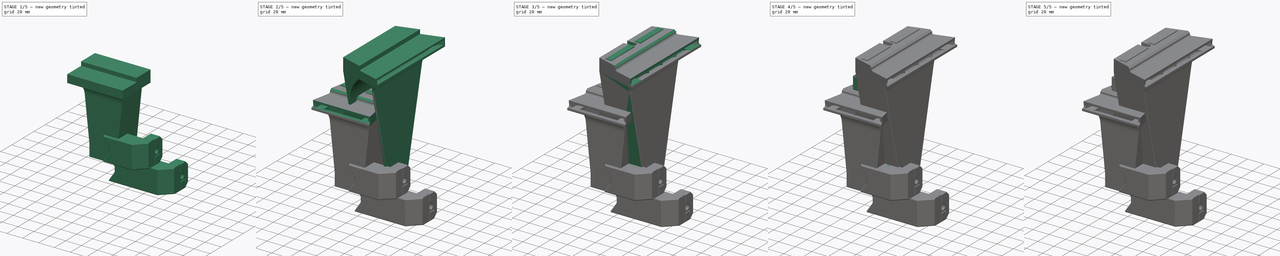
[diagram: build sequence overview — one tinted view per stage of 5, left to right]
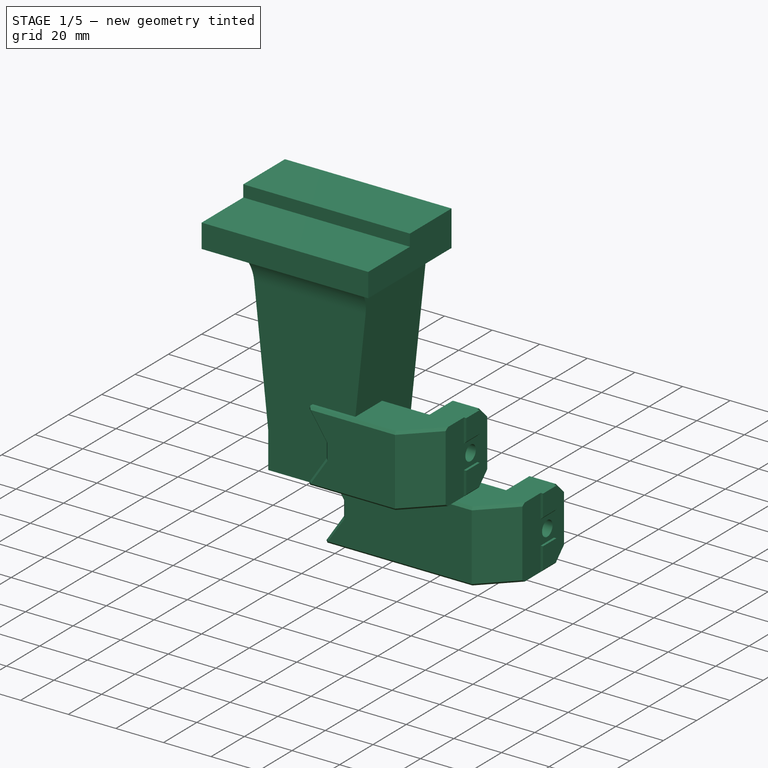
[diagram: stage 1 of 5 — iso view after this stage's code; geometry added in this stage tinted green]
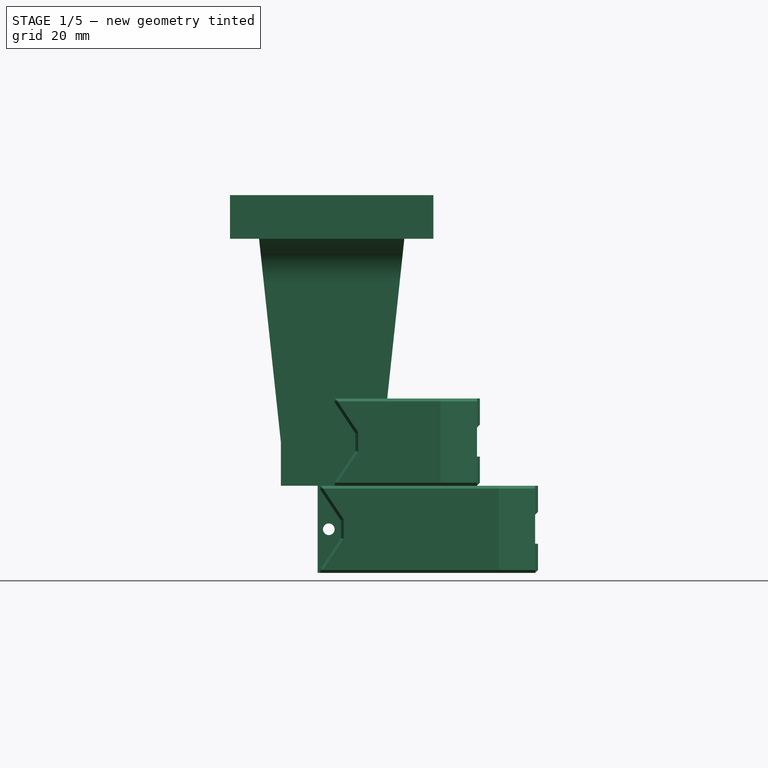
[diagram: stage 1 of 5 — front view after this stage's code; geometry added in this stage tinted green]
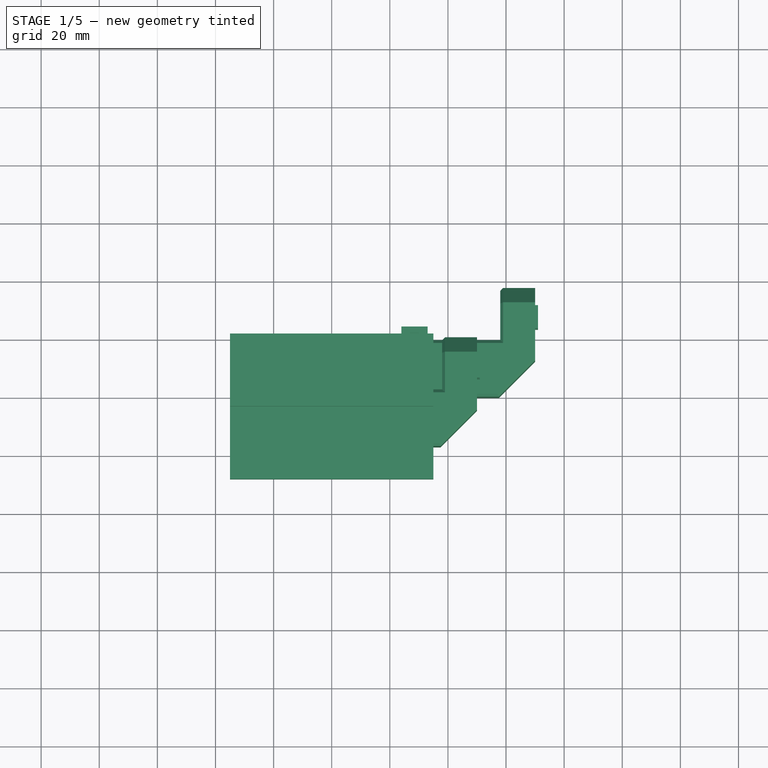
[diagram: stage 1 of 5 — top view after this stage's code; geometry added in this stage tinted green]
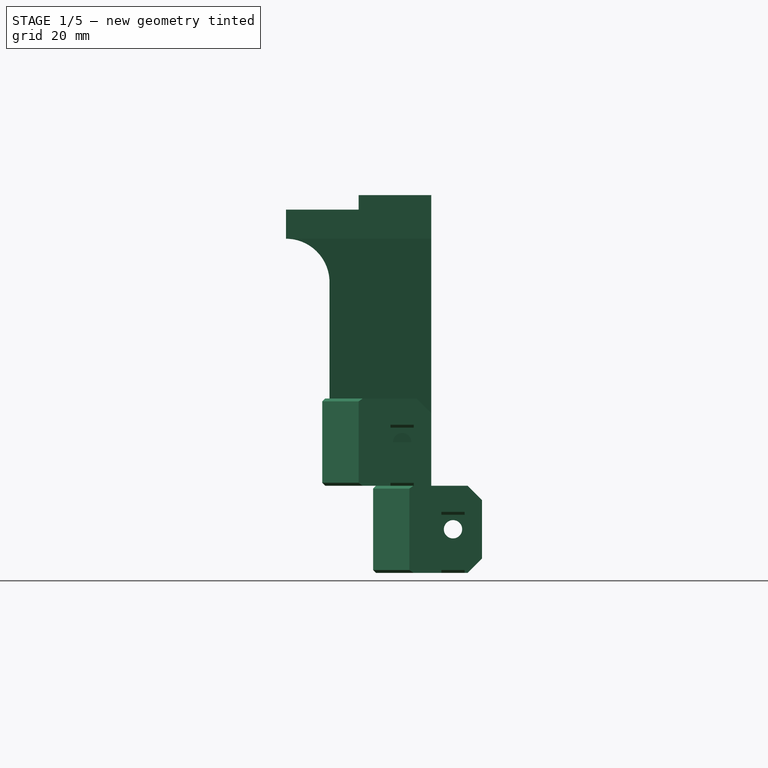
[diagram: stage 1 of 5 — right view after this stage's code; geometry added in this stage tinted green]
FCSTD DOCUMENT  (FreeCAD 0.19R24291 (Git))
Label: side-blower-4028
License: All rights reserved
LicenseURL: http://en.wikipedia.org/wiki/All_rights_reserved
objects: Sketcher::SketchObject×92, PartDesign::Pocket×57, PartDesign::Chamfer×35, PartDesign::Pad×31, PartDesign::Body×12, PartDesign::Plane×4, Part::Feature×4, PartDesign::FeatureBase×3, PartDesign::SubtractiveLoft×2, PartDesign::Fillet×2, Spreadsheet::Sheet×1
note: 369 computed .brp shape members not serialized (recipe doc carries the construction recipe); baked Part::Feature solids carry a one-line shape summary decoded from their .brp

FEATURE [Spreadsheet::Sheet] Spreadsheet  label="args"
  cells = A1=duct width; B1(duct_width)=70; A2=duct height; B2(duct_height)=100; A3=outlet width; B3=duct_width-5; A4=outlet height; B4(outlet_height)=10
FEATURE [Sketcher::SketchObject] Sketch025
  FullyConstrained = true
  MapMode = 5
  Placement = pos=(0,0,0) rot=(1,0,0;1.5708rad)
  Support = -> [XZ_Plane003]
  sketch-geometry (4):
    g0: LineSegment StartX=-35 StartY=0 StartZ=0 EndX=35 EndY=0 EndZ=0
    g1: LineSegment StartX=35 StartY=0 StartZ=0 EndX=35 EndY=100 EndZ=0
    g2: LineSegment StartX=35 StartY=100 StartZ=0 EndX=-35 EndY=100 EndZ=0
    g3: LineSegment StartX=-35 StartY=100 StartZ=0 EndX=-35 EndY=0 EndZ=0
  constraints (12):
    c: Coincident(g0,g1)
    c: Coincident(g1,g2)
    c: Coincident(g2,g3)
    c: Coincident(g3,g0)
    c: Horizontal(g0)
    c: Horizontal(g2)
    c: Vertical(g1)
    c: Vertical(g3)
    c: PointOnObject(g0,g-1)
    c: DistanceX(g2,g2) = 70
    c: DistanceY(g3,g3) = 100
    c: DistanceX(g2,g-1) = 35
FEATURE [PartDesign::Pad] Pad005
  Direction = (1,1,1)
  Length = 50
  Length2 = 100
  Placement = pos=(0,0,0) rot=(1,0,0;1.5708rad)
  Profile = -> Sketch025
  Type = 0
FEATURE [Sketcher::SketchObject] Sketch084
  FullyConstrained = true
  MapMode = 5
  Placement = pos=(0,0,0) rot=(1,0,0;1.5708rad)
  Support = -> [XZ_Plane009]
  sketch-geometry (4):
    g0: LineSegment StartX=0 StartY=0 StartZ=0 EndX=50 EndY=0 EndZ=0
    g1: LineSegment StartX=50 StartY=0 StartZ=0 EndX=50 EndY=30 EndZ=0
    g2: LineSegment StartX=50 StartY=30 StartZ=0 EndX=0 EndY=30 EndZ=0
    g3: LineSegment StartX=0 StartY=30 StartZ=0 EndX=0 EndY=0 EndZ=0
  constraints (11):
    c: Coincident(g0,g1)
    c: Coincident(g1,g2)
    c: Coincident(g2,g3)
    c: Coincident(g3,g0)
    c: Horizontal(g0)
    c: Horizontal(g2)
    c: Vertical(g1)
    c: Vertical(g3)
    c: Coincident(g0,g-1)
    c: DistanceX(g2,g2) = 50
    c: DistanceY(g1,g1) = 30
FEATURE [PartDesign::Pad] Pad025
  Direction = (1,1,1)
  Length = 25
  Length2 = 100
  Placement = pos=(0,0,0) rot=(1,0,0;1.5708rad)
  Profile = -> Sketch084
  Type = 0
FEATURE [Sketcher::SketchObject] Sketch085
  ExternalGeometry = -> [Pad025]
  FullyConstrained = true
  MapMode = 5
  Placement = pos=(0,-25,5.5e-15) rot=(1,0,0;1.5708rad)
  Support = -> [Pad025]
  sketch-geometry (11):
    g0: LineSegment StartX=0 StartY=30 StartZ=0 EndX=8 EndY=18 EndZ=0
    g1: LineSegment StartX=8 StartY=18 StartZ=0 EndX=8 EndY=12 EndZ=0
    g2: LineSegment StartX=8 StartY=12 StartZ=0 EndX=0 EndY=0 EndZ=0
    g3: LineSegment StartX=0.180278 StartY=30 StartZ=0 EndX=8.15 EndY=18.0454 EndZ=0
    g4: LineSegment StartX=8.15 StartY=18.0454 StartZ=0 EndX=8.15 EndY=11.9546 EndZ=0
    g5: LineSegment StartX=8.15 StartY=11.9546 StartZ=0 EndX=0.180278 EndY=0 EndZ=0
    g6: LineSegment StartX=0.180278 StartY=0 StartZ=0 EndX=50 EndY=0 EndZ=0
    g7: LineSegment StartX=50 StartY=0 StartZ=0 EndX=50 EndY=30 EndZ=0
    g8: LineSegment StartX=50 StartY=30 StartZ=0 EndX=0.180278 EndY=30 EndZ=0
    g9: LineSegment StartX=8 StartY=18 StartZ=0 EndX=8.12481 EndY=18.0832 EndZ=0
    g10: LineSegment StartX=8 StartY=12 StartZ=0 EndX=8.12481 EndY=11.9168 EndZ=0
  constraints (30):
    c: Coincident(g-3,g0)
    c: Coincident(g0,g1)
    c: Coincident(g1,g2)
    c: Coincident(g2,g-1)
    c: DistanceY(g0,g0) = 12
    c: DistanceY(g-1,g1) = 12
    c: Vertical(g1)
    c: DistanceX(g0,g0) = 8
    c: PointOnObject(g3,g-3)
    c: Coincident(g3,g4)
    c: Coincident(g4,g5)
    c: PointOnObject(g5,g-1)
    c: Coincident(g5,g6)
    c: Coincident(g6,g-4)
    c: Coincident(g6,g7)
    c: Coincident(g7,g-4)
    c: Coincident(g7,g8)
    c: Coincident(g3,g8)
    c: Parallel(g2,g5)
    c: Parallel(g0,g3)
    c: Vertical(g4)
    c: Coincident(g9,g0)
    c: PointOnObject(g9,g3)
    c: Coincident(g10,g1)
    c: PointOnObject(g10,g5)
    c: Perpendicular(g5,g10)
    c: Perpendicular(g3,g9)
    c: DistanceX(g0,g3) = 0.15
    c: Distance(g10) = 0.15
    c: Distance(g9) = 0.15
FEATURE [PartDesign::Pad] Pad026
  BaseFeature = -> Pad025
  Direction = (1,1,1)
  Length = 12.5
  Length2 = 100
  Placement = pos=(0,0,0) rot=(1,0,0;1.5708rad)
  Profile = -> Sketch085
  Type = 0
FEATURE [Sketcher::SketchObject] Sketch086
  FullyConstrained = true
  MapMode = 5
  Placement = pos=(0,0,0) rot=(-1,0,0;1.5708rad)
  Support = -> [Pad026]
  sketch-geometry (1):
    g0: Circle CenterX=4 CenterY=-15 CenterZ=0 NormalX=0 NormalY=0 NormalZ=1 AngleXU=0 Radius=2
  constraints (3):
    c: DistanceY(g0,g-1) = 15
    c: DistanceX(g-1,g0) = 4
    c: Radius(g0) = 2
FEATURE [PartDesign::Pocket] Pocket054
  BaseFeature = -> Pad026
  Length = 6
  Length2 = 100
  Placement = pos=(0,0,0) rot=(1,0,0;1.5708rad)
  Profile = -> Sketch086
  Type = 0
FEATURE [Sketcher::SketchObject] Sketch087
  ExternalGeometry = -> [Pocket054]
  FullyConstrained = true
  MapMode = 5
  Placement = pos=(0,0,0) rot=(-1,0,0;1.5708rad)
  Support = -> [Pocket054]
  sketch-geometry (4):
    g0: LineSegment StartX=0 StartY=0 StartZ=0 EndX=38 EndY=0 EndZ=0
    g1: LineSegment StartX=38 StartY=0 StartZ=0 EndX=38 EndY=-30 EndZ=0
    g2: LineSegment StartX=38 StartY=-30 StartZ=0 EndX=0 EndY=-30 EndZ=0
    g3: LineSegment StartX=0 StartY=-30 StartZ=0 EndX=0 EndY=0 EndZ=0
  constraints (11):
    c: Coincident(g0,g1)
    c: Coincident(g1,g2)
    c: Coincident(g2,g3)
    c: Coincident(g3,g0)
    c: Horizontal(g0)
    c: Horizontal(g2)
    c: Vertical(g1)
    c: Vertical(g3)
    c: Coincident(g0,g-1)
    c: PointOnObject(g1,g-4)
    c: DistanceX(g0,g-3) = 12
FEATURE [PartDesign::Pocket] Pocket055
  BaseFeature = -> Pocket054
  Length = 18
  Length2 = 100
  Placement = pos=(0,0,0) rot=(1,0,0;1.5708rad)
  Profile = -> Sketch087
  Type = 0
FEATURE [Sketcher::SketchObject] Sketch088
  FullyConstrained = true
  MapMode = 5
  Placement = pos=(0,-25,5.5e-15) rot=(1,0,0;1.5708rad)
  Support = -> [Pocket055]
  sketch-geometry (1):
    g0: Circle CenterX=4 CenterY=15 CenterZ=0 NormalX=0 NormalY=0 NormalZ=1 AngleXU=0 Radius=2
  constraints (3):
    c: DistanceX(g-1,g0) = 4
    c: DistanceY(g-1,g0) = 15
    c: Radius(g0) = 2
FEATURE [PartDesign::Pocket] Pocket056
  BaseFeature = -> Pocket055
  Length = 5
  Length2 = 100
  Placement = pos=(0,0,0) rot=(1,0,0;1.5708rad)
  Profile = -> Sketch088
  Refine = true
  Type = 1
FEATURE [Sketcher::SketchObject] Sketch089
  ExternalGeometry = -> [Pocket056]
  FullyConstrained = true
  MapMode = 5
  Placement = pos=(-6e-16,6.87e-14,30) rot=(0,0,1;3.14159rad)
  Support = -> [Pocket056]
  sketch-geometry (3):
    g0: LineSegment StartX=-50 StartY=37.5 StartZ=0 EndX=-37.5 EndY=37.5 EndZ=0
    g1: LineSegment StartX=-37.5 StartY=37.5 StartZ=0 EndX=-50 EndY=25 EndZ=0
    g2: LineSegment StartX=-50 StartY=25 StartZ=0 EndX=-50 EndY=37.5 EndZ=0
  constraints (8):
    c: Coincident(g-4,g0)
    c: PointOnObject(g0,g-4)
    c: Coincident(g0,g1)
    c: PointOnObject(g1,g-3)
    c: Coincident(g1,g2)
    c: Coincident(g2,g0)
    c: DistanceY(g2,g2) = 12.5
    c: DistanceX(g0,g0) = 12.5
FEATURE [PartDesign::Pocket] Pocket057
  BaseFeature = -> Pocket056
  Length = 5
  Length2 = 100
  Placement = pos=(0,0,0) rot=(1,0,0;1.5708rad)
  Profile = -> Sketch089
  Type = 1
FEATURE [Sketcher::SketchObject] Sketch090
  FullyConstrained = true
  MapMode = 5
  Placement = pos=(50,0,0) rot=(0.707107,0,0.707107;3.14159rad)
  Support = -> [Pocket057]
  sketch-geometry (1):
    g0: Circle CenterX=15 CenterY=10 CenterZ=0 NormalX=0 NormalY=0 NormalZ=1 AngleXU=0 Radius=3.15
  constraints (3):
    c: DistanceY(g-1,g0) = 10
    c: DistanceX(g-1,g0) = 15
    c: Radius(g0) = 3.15
FEATURE [PartDesign::Pocket] Pocket058
  BaseFeature = -> Pocket057
  Length = 5
  Length2 = 100
  Placement = pos=(0,0,0) rot=(1,0,0;1.5708rad)
  Profile = -> Sketch090
  Type = 1
FEATURE [Sketcher::SketchObject] Sketch091
  ExternalGeometry = -> [Pocket058]
  FullyConstrained = true
  MapMode = 5
  Placement = pos=(50,0,0) rot=(0.707107,0,0.707107;3.14159rad)
  Support = -> [Pocket058]
  sketch-geometry (8):
    g0: LineSegment StartX=0 StartY=14 StartZ=0 EndX=10 EndY=14 EndZ=0
    g1: LineSegment StartX=10 StartY=14 StartZ=0 EndX=10 EndY=6 EndZ=0
    g2: LineSegment StartX=10 StartY=6 StartZ=0 EndX=0 EndY=6 EndZ=0
    g3: LineSegment StartX=0 StartY=6 StartZ=0 EndX=0 EndY=14 EndZ=0
    g4: LineSegment StartX=30 StartY=14 StartZ=0 EndX=20 EndY=14 EndZ=0
    g5: LineSegment StartX=20 StartY=14 StartZ=0 EndX=20 EndY=6 EndZ=0
    g6: LineSegment StartX=20 StartY=6 StartZ=0 EndX=30 EndY=6 EndZ=0
    g7: LineSegment StartX=30 StartY=6 StartZ=0 EndX=30 EndY=14 EndZ=0
  constraints (24):
    c: Coincident(g0,g1)
    c: Coincident(g1,g2)
    c: Coincident(g2,g3)
    c: Coincident(g3,g0)
    c: Horizontal(g0)
    c: Horizontal(g2)
    c: Vertical(g1)
    c: Vertical(g3)
    c: PointOnObject(g0,g-2)
    c: Coincident(g4,g5)
    c: Coincident(g5,g6)
    c: Coincident(g6,g7)
    c: Coincident(g7,g4)
    c: Horizontal(g4)
    c: Horizontal(g6)
    c: Vertical(g5)
    c: Vertical(g7)
    c: PointOnObject(g4,g-3)
    c: Horizontal(g4,g0)
    c: Horizontal(g1,g5)
    c: DistanceY(g7,g7) = 8
    c: DistanceY(g-4,g4) = 4
    c: DistanceX(g0,g-4) = 5
    c: DistanceX(g-4,g4) = 5
FEATURE [PartDesign::Pad] Pad027
  BaseFeature = -> Pocket058
  Direction = (1,1,1)
  Length = 1
  Length2 = 100
  Placement = pos=(0,0,0) rot=(1,0,0;1.5708rad)
  Profile = -> Sketch091
  Type = 0
FEATURE [PartDesign::Chamfer] Chamfer020
  Angle = 45
  Base = -> Pad027 [Edge28,Edge14]
  BaseFeature = -> Pad027
  ChamferType = 0
  FlipDirection = false
  Placement = pos=(0,0,0) rot=(1,0,0;1.5708rad)
  Refine = true
  Size = 5
  Size2 = 1
  SupportTransform = false
FEATURE [PartDesign::Chamfer] Chamfer021
  Angle = 45
  Base = -> Chamfer020 [Edge35,Edge39,Edge38,Edge36,Edge29,Edge30,Edge47,Edge68,Edge27,Edge22,Edge23,Edge21,Edge16,Edge19,Edge25,Edge37]
  BaseFeature = -> Chamfer020
  ChamferType = 0
  FlipDirection = false
  Placement = pos=(0,0,0) rot=(1,0,0;1.5708rad)
  Size = 1
  Size2 = 1
  SupportTransform = false
FEATURE [PartDesign::Pocket] Pocket059
  BaseFeature = -> Chamfer021
  Length = 0.15
  Length2 = 100
  Placement = pos=(0,0,0) rot=(1,0,0;1.5708rad)
  Profile = -> Chamfer021 [Face21]
  Type = 0
FEATURE [PartDesign::Chamfer] Chamfer022
  Angle = 45
  Base = -> Pocket059 [Edge63,Edge99]
  BaseFeature = -> Pocket059
  ChamferType = 0
  FlipDirection = false
  Placement = pos=(0,0,0) rot=(1,0,0;1.5708rad)
  Size = 0.4
  Size2 = 1
  SupportTransform = false
FEATURE [PartDesign::Chamfer] Chamfer023
  Angle = 45
  Base = -> Chamfer022 [Edge29,Edge67]
  BaseFeature = -> Chamfer022
  ChamferType = 0
  FlipDirection = false
  Placement = pos=(0,0,0) rot=(1,0,0;1.5708rad)
  Size = 0.99
  Size2 = 1
  SupportTransform = false
FEATURE [PartDesign::Body] Body012  label="fan-clamp-free"
  Group = -> [Sketch105,Pad032,Sketch106,Pocket067,Sketch107,Pocket068,Sketch108,Pad033,Sketch109,Pocket069,Chamfer009002001006,Chamfer009002001007,Chamfer009002001008,Chamfer009002001009]
  Origin = -> Origin012
  Placement = pos=(0,0,-10) rot=(0,0,1;0rad)
  Tip = -> Chamfer009002001009
FEATURE [Sketcher::SketchObject] Sketch110
  ExternalGeometry = -> [Pad005]
  FullyConstrained = true
  MapMode = 5
  Placement = pos=(-35,0,0) rot=(0.707107,0,-0.707107;3.14159rad)
  Support = -> [Pad005]
  sketch-geometry (4):
    g0: LineSegment StartX=-100 StartY=50 StartZ=0 EndX=-95 EndY=50 EndZ=0
    g1: LineSegment StartX=-95 StartY=50 StartZ=0 EndX=-95 EndY=25 EndZ=0
    g2: LineSegment StartX=-95 StartY=25 StartZ=0 EndX=-100 EndY=25 EndZ=0
    g3: LineSegment StartX=-100 StartY=25 StartZ=0 EndX=-100 EndY=50 EndZ=0
  constraints (11):
    c: Coincident(g0,g1)
    c: Coincident(g1,g2)
    c: Coincident(g2,g3)
    c: Coincident(g3,g0)
    c: Horizontal(g0)
    c: Horizontal(g2)
    c: Vertical(g1)
    c: Vertical(g3)
    c: Coincident(g0,g-3)
    c: DistanceX(g0,g0) = 5
    c: DistanceY(g1,g1) = 25
FEATURE [PartDesign::Pocket] Pocket070
  BaseFeature = -> Pad005
  Length = 5
  Length2 = 100
  Placement = pos=(0,0,0) rot=(1,0,0;1.5708rad)
  Profile = -> Sketch110
  Type = 1
FEATURE [Sketcher::SketchObject] Sketch111
  ExternalGeometry = -> [Pocket070]
  FullyConstrained = true
  MapMode = 5
  Placement = pos=(0,-50,1.1e-14) rot=(1,0,0;1.5708rad)
  Support = -> [Pocket070]
  sketch-geometry (10):
    g0: LineSegment StartX=-35 StartY=85 StartZ=0 EndX=-25 EndY=85 EndZ=0
    g1: LineSegment StartX=-25 StartY=85 StartZ=0 EndX=-17.5 EndY=15 EndZ=0
    g2: LineSegment StartX=-17.5 StartY=15 StartZ=0 EndX=-17.5 EndY=0 EndZ=0
    g3: LineSegment StartX=-17.5 StartY=0 StartZ=0 EndX=-35 EndY=-1.42e-14 EndZ=0
    g4: LineSegment StartX=-35 StartY=-1.42e-14 StartZ=0 EndX=-35 EndY=85 EndZ=0
    g5: LineSegment StartX=35 StartY=85 StartZ=0 EndX=25 EndY=85 EndZ=0
    g6: LineSegment StartX=25 StartY=85 StartZ=0 EndX=17.5 EndY=15 EndZ=0
    g7: LineSegment StartX=17.5 StartY=15 StartZ=0 EndX=17.5 EndY=0 EndZ=0
    g8: LineSegment StartX=17.5 StartY=0 StartZ=0 EndX=35 EndY=0 EndZ=0
    g9: LineSegment StartX=35 StartY=85 StartZ=0 EndX=35 EndY=0 EndZ=0
  constraints (28):
    c: PointOnObject(g0,g-4)
    c: Horizontal(g0)
    c: Coincident(g0,g1)
    c: Coincident(g1,g2)
    c: PointOnObject(g2,g-1)
    c: Vertical(g2)
    c: Coincident(g2,g3)
    c: Coincident(g3,g-4)
    c: Coincident(g3,g4)
    c: Coincident(g4,g0)
    c: PointOnObject(g5,g-5)
    c: Horizontal(g5)
    c: Coincident(g5,g6)
    c: Coincident(g6,g7)
    c: Vertical(g7)
    c: Coincident(g7,g8)
    c: Coincident(g8,g-5)
    c: Horizontal(g8)
    c: DistanceY(g5,g-5) = 10
    c: Horizontal(g0,g5)
    c: Horizontal(g1,g6)
    c: DistanceX(g0,g0) = 10
    c: DistanceX(g5,g5) = 10
    c: DistanceX(g2,g-1) = 17.5
    c: DistanceX(g2,g7) = 35
    c: DistanceY(g2,g1) = 15
    c: Coincident(g9,g5)
    c: Coincident(g9,g8)
FEATURE [PartDesign::Pocket] Pocket071
  BaseFeature = -> Pocket070
  Length = 5
  Length2 = 100
  Placement = pos=(0,0,0) rot=(1,0,0;1.5708rad)
  Profile = -> Sketch111
  Type = 1
FEATURE [Sketcher::SketchObject] Sketch112
  ExternalGeometry = -> [Pocket071]
  FullyConstrained = true
  MapMode = 5
  Placement = pos=(-35,0,0) rot=(0.707107,0,-0.707107;3.14159rad)
  Support = -> [Pocket071]
  sketch-geometry (4):
    g0: ArcOfCircle CenterX=-70 CenterY=50 CenterZ=0 NormalX=0 NormalY=0 NormalZ=1 AngleXU=0 Radius=15 StartAngle=3.14159 EndAngle=4.71239
    g1: LineSegment StartX=0 StartY=35 StartZ=0 EndX=-70 EndY=35 EndZ=0
    g2: LineSegment StartX=0 StartY=50 StartZ=0 EndX=-85 EndY=50 EndZ=0
    g3: LineSegment StartX=0 StartY=35 StartZ=0 EndX=0 EndY=50 EndZ=0
  constraints (12):
    c: Coincident(g0,g-3)
    c: Vertical(g0,g0)
    c: Horizontal(g0,g0)
    c: DistanceY(g-1,g0) = 35
    c: PointOnObject(g1,g-2)
    c: Coincident(g1,g0)
    c: PointOnObject(g2,g-2)
    c: Coincident(g2,g0)
    c: Horizontal(g2)
    c: Coincident(g3,g1)
    c: Coincident(g3,g2)
    c: Horizontal(g1)
FEATURE [PartDesign::Pocket] Pocket072  label="front-cut"
  BaseFeature = -> Pocket071
  Length = 5
  Length2 = 100
  Placement = pos=(0,0,0) rot=(1,0,0;1.5708rad)
  Profile = -> Sketch112
  Type = 1
FEATURE [PartDesign::Body] Body003  label="180-duct-angled"
  Group = -> [Sketch025,Pad005,Sketch110,Pocket070,Sketch111,Pocket071,Sketch112,Pocket072,Sketch113,Pocket073,Sketch114,Pocket074,Sketch115,Pad034,Sketch116,Pad035,Sketch117,Pocket075,Sketch118,Pad036,Sketch119,Pocket076,Sketch120,Pocket077,Sketch121,Pocket078,Sketch122,Pocket079,Chamfer,Chamfer009002001010,Chamfer009002001011,Sketch123,Pad037,Chamfer009002001012,Chamfer009002001013,Fillet,Chamfer009002001014,+2 more]
  Origin = -> Origin003
  Tip = -> Pocket092
FEATURE [Part::Feature] Fusion001
  shape: bbox 75.85 x 37.5 x 30 mm, 47 faces (baked)
FEATURE [Sketcher::SketchObject] Sketch142
  FullyConstrained = true
  MapMode = 5
  Placement = pos=(0,-18,2.39e-14) rot=(-1,0,0;1.5708rad)
  Support = -> [Chamfer023]
  sketch-geometry (4):
    g0: LineSegment StartX=5 StartY=-2 StartZ=0 EndX=14 EndY=-2 EndZ=0
    g1: LineSegment StartX=14 StartY=-2 StartZ=0 EndX=14 EndY=-11 EndZ=0
    g2: LineSegment StartX=14 StartY=-11 StartZ=0 EndX=5 EndY=-11 EndZ=0
    g3: LineSegment StartX=5 StartY=-11 StartZ=0 EndX=5 EndY=-2 EndZ=0
  constraints (12):
    c: Coincident(g0,g1)
    c: Coincident(g1,g2)
    c: Coincident(g2,g3)
    c: Coincident(g3,g0)
    c: Horizontal(g0)
    c: Horizontal(g2)
    c: Vertical(g1)
    c: Vertical(g3)
    c: DistanceX(g0,g0) = 9
    c: DistanceX(g-1,g0) = 5
    c: DistanceY(g0,g-1) = 2
    c: DistanceY(g3,g3) = 9
FEATURE [PartDesign::Pad] Pad043
  BaseFeature = -> Chamfer023
  Direction = (1,1,1)
  Length = 5
  Length2 = 100
  Placement = pos=(0,0,0) rot=(1,0,0;1.5708rad)
  Profile = -> Sketch142
  Type = 0
FEATURE [PartDesign::Chamfer] Chamfer009002001021
  Angle = 45
  Base = -> Pad043 [Edge128]
  BaseFeature = -> Pad043
  ChamferType = 1
  FlipDirection = false
  Placement = pos=(0,0,0) rot=(1,0,0;1.5708rad)
  Size = 4.99
  Size2 = 7
  SupportTransform = false
FEATURE [Sketcher::SketchObject] Sketch143
  ExternalGeometry = -> [Chamfer009002001021]
  FullyConstrained = true
  MapMode = 5
  Placement = pos=(0,1.41e-14,11) rot=(0,0,1;3.14159rad)
  Support = -> [Chamfer009002001021]
  sketch-geometry (4):
    g0: LineSegment StartX=-11 StartY=18 StartZ=0 EndX=-8 EndY=18 EndZ=0
    g1: LineSegment StartX=-8 StartY=18 StartZ=0 EndX=-8 EndY=16 EndZ=0
    g2: LineSegment StartX=-8 StartY=16 StartZ=0 EndX=-11 EndY=16 EndZ=0
    g3: LineSegment StartX=-11 StartY=16 StartZ=0 EndX=-11 EndY=18 EndZ=0
  constraints (12):
    c: Coincident(g0,g1)
    c: Coincident(g1,g2)
    c: Coincident(g2,g3)
    c: Coincident(g3,g0)
    c: Horizontal(g0)
    c: Horizontal(g2)
    c: Vertical(g1)
    c: Vertical(g3)
    c: PointOnObject(g0,g-3)
    c: DistanceX(g-4,g2) = 3
    c: DistanceX(g1,g-5) = 3
    c: DistanceY(g-4,g2) = 3
FEATURE [PartDesign::Pocket] Pocket093
  BaseFeature = -> Chamfer009002001021
  Length = 5
  Length2 = 100
  Placement = pos=(0,0,0) rot=(1,0,0;1.5708rad)
  Profile = -> Sketch143
  Type = 1
FEATURE [PartDesign::Chamfer] Chamfer009002001022
  Angle = 45
  Base = -> Pocket093 [Edge34,Edge30]
  BaseFeature = -> Pocket093
  ChamferType = 0
  FlipDirection = false
  Placement = pos=(0,0,0) rot=(1,0,0;1.5708rad)
  Refine = true
  Size = 1
  Size2 = 1
  SupportTransform = false
FEATURE [PartDesign::Body] Body009  label="mounter-st"
  Group = -> [Sketch084,Pad025,Sketch085,Pad026,Sketch086,Pocket054,Sketch087,Pocket055,Sketch088,Pocket056,Sketch089,Pocket057,Sketch090,Pocket058,Sketch091,Pad027,Chamfer020,Chamfer021,Pocket059,Chamfer022,Chamfer023,Sketch142,Pad043,Chamfer009002001021,Sketch143,Pocket093,Chamfer009002001022]
  Origin = -> Origin009
  Placement = pos=(20,17.5,-30) rot=(0,0,1;0rad)
  Tip = -> Chamfer009002001022
FEATURE [PartDesign::FeatureBase] BaseFeature
  BaseFeature = -> Fusion001
FEATURE [Sketcher::SketchObject] Sketch144
  ExternalGeometry = -> [BaseFeature]
  FullyConstrained = true
  MapMode = 5
  Placement = pos=(0,-0.5,1.4e-15) rot=(0,0.707107,0.707107;3.14159rad)
  Support = -> [BaseFeature]
  sketch-geometry (4):
    g0: LineSegment StartX=-24 StartY=-28 StartZ=0 EndX=-33 EndY=-28 EndZ=0
    g1: LineSegment StartX=-33 StartY=-28 StartZ=0 EndX=-33 EndY=-19 EndZ=0
    g2: LineSegment StartX=-33 StartY=-19 StartZ=0 EndX=-24 EndY=-19 EndZ=0
    g3: LineSegment StartX=-24 StartY=-19 StartZ=0 EndX=-24 EndY=-28 EndZ=0
  constraints (12):
    c: Coincident(g0,g1)
    c: Coincident(g1,g2)
    c: Coincident(g2,g3)
    c: Coincident(g3,g0)
    c: Horizontal(g0)
    c: Horizontal(g2)
    c: Vertical(g1)
    c: Vertical(g3)
    c: DistanceX(g2,g2) = 9
    c: DistanceX(g0,g-4) = 28.85
    c: DistanceY(g1,g1) = 9
    c: DistanceY(g-4,g0) = 2
FEATURE [PartDesign::Pad] Pad044
  BaseFeature = -> BaseFeature
  Direction = (1,1,1)
  Length = 5
  Length2 = 100
  Profile = -> Sketch144
  Type = 0
FEATURE [PartDesign::Chamfer] Chamfer009002001023
  Angle = 45
  Base = -> Pad044 [Edge126]
  BaseFeature = -> Pad044
  ChamferType = 1
  FlipDirection = false
  Size = 4.99
  Size2 = 7
  SupportTransform = false
FEATURE [Sketcher::SketchObject] Sketch145
  ExternalGeometry = -> [Chamfer009002001023]
  FullyConstrained = true
  MapMode = 5
  Placement = pos=(0,-5.59e-14,-19) rot=(0,0,1;0rad)
  Support = -> [Chamfer009002001023]
  sketch-geometry (4):
    g0: LineSegment StartX=27 StartY=-0.5 StartZ=0 EndX=30 EndY=-0.5 EndZ=0
    g1: LineSegment StartX=30 StartY=-0.5 StartZ=0 EndX=30 EndY=1.5 EndZ=0
    g2: LineSegment StartX=30 StartY=1.5 StartZ=0 EndX=27 EndY=1.5 EndZ=0
    g3: LineSegment StartX=27 StartY=1.5 StartZ=0 EndX=27 EndY=-0.5 EndZ=0
  constraints (12):
    c: Coincident(g0,g1)
    c: Coincident(g1,g2)
    c: Coincident(g2,g3)
    c: Coincident(g3,g0)
    c: Horizontal(g0)
    c: Horizontal(g2)
    c: Vertical(g1)
    c: Vertical(g3)
    c: PointOnObject(g0,g-3)
    c: DistanceX(g-4,g2) = 3
    c: DistanceX(g1,g-5) = 3
    c: DistanceY(g2,g-4) = 3
FEATURE [PartDesign::Pocket] Pocket094
  BaseFeature = -> Chamfer009002001023
  Length = 5
  Length2 = 100
  Profile = -> Sketch145
  Type = 1
FEATURE [PartDesign::Chamfer] Chamfer009002001024
  Angle = 45
  Base = -> Pocket094 [Edge31,Edge13]
  BaseFeature = -> Pocket094
  ChamferType = 0
  FlipDirection = false
  Refine = true
  Size = 1
  Size2 = 1
  SupportTransform = false
FEATURE [PartDesign::Body] Body013  label="mounter-st-250"
  BaseFeature = -> Fusion001
  Group = -> [BaseFeature,Sketch144,Pad044,Chamfer009002001023,Sketch145,Pocket094,Chamfer009002001024]
  Origin = -> Origin013
  Tip = -> Chamfer009002001024
FEATURE [Part::Feature] Cut001
  shape: bbox 48 x 40 x 115 mm, 3175 faces, 2 solids (baked)
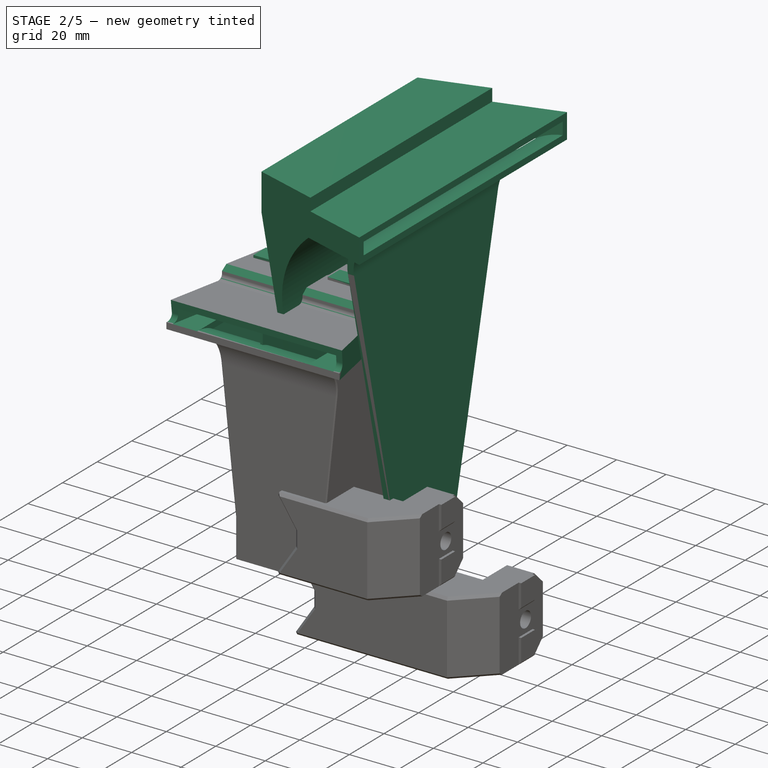
[diagram: stage 2 of 5 — iso view after this stage's code; geometry added in this stage tinted green]
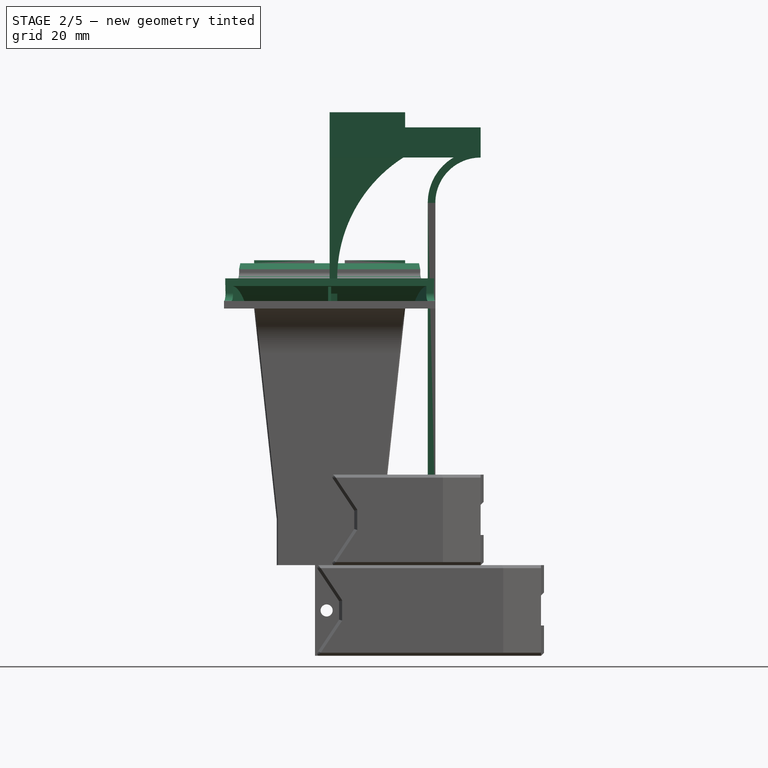
[diagram: stage 2 of 5 — front view after this stage's code; geometry added in this stage tinted green]
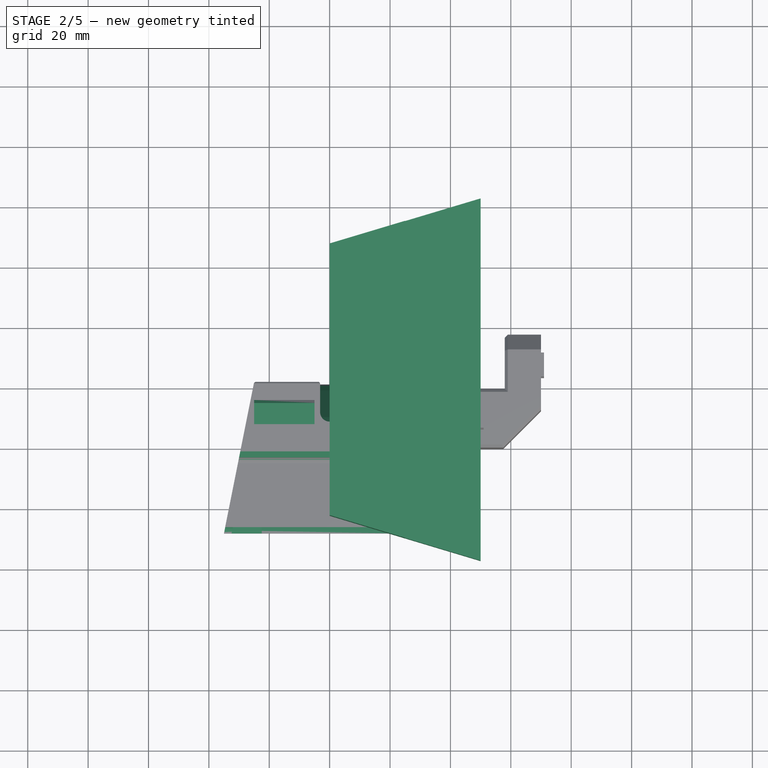
[diagram: stage 2 of 5 — top view after this stage's code; geometry added in this stage tinted green]
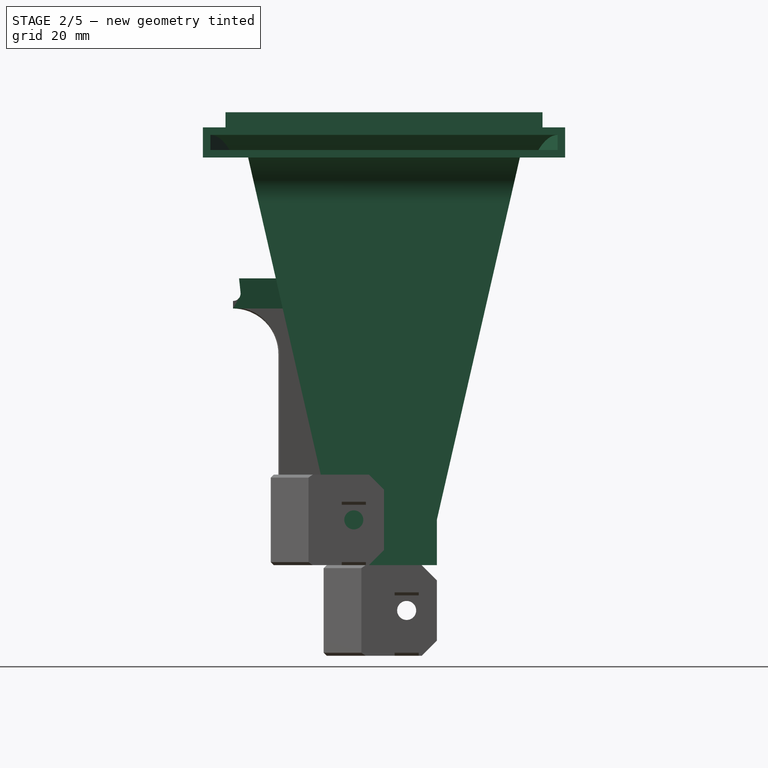
[diagram: stage 2 of 5 — right view after this stage's code; geometry added in this stage tinted green]
FEATURE [Sketcher::SketchObject] Sketch054
  FullyConstrained = true
  MapMode = 5
  Placement = pos=(0,0,0) rot=(0.57735,0.57735,0.57735;2.0944rad)
  Support = -> [YZ_Plane005]
  sketch-geometry (4):
    g0: LineSegment StartX=-60 StartY=0 StartZ=0 EndX=60 EndY=0 EndZ=0
    g1: LineSegment StartX=60 StartY=0 StartZ=0 EndX=60 EndY=150 EndZ=0
    g2: LineSegment StartX=60 StartY=150 StartZ=0 EndX=-60 EndY=150 EndZ=0
    g3: LineSegment StartX=-60 StartY=150 StartZ=0 EndX=-60 EndY=0 EndZ=0
  constraints (12):
    c: Coincident(g0,g1)
    c: Coincident(g1,g2)
    c: Coincident(g2,g3)
    c: Coincident(g3,g0)
    c: Horizontal(g0)
    c: Horizontal(g2)
    c: Vertical(g1)
    c: Vertical(g3)
    c: PointOnObject(g0,g-1)
    c: DistanceX(g2,g2) = 120
    c: DistanceX(g2,g-1) = 60
    c: DistanceY(g1,g1) = 150
FEATURE [PartDesign::Pad] Pad015
  Direction = (1,1,1)
  Length = 50
  Length2 = 100
  Placement = pos=(0,0,0) rot=(0.57735,0.57735,0.57735;2.0944rad)
  Profile = -> Sketch054
  Type = 0
FEATURE [Sketcher::SketchObject] Sketch113
  ExternalGeometry = -> [Pocket072]
  FullyConstrained = true
  MapMode = 5
  Placement = pos=(0,0,100) rot=(0,0,1;3.14159rad)
  Support = -> [Pocket072]
  sketch-geometry (6):
    g0: LineSegment StartX=-35 StartY=50 StartZ=0 EndX=-25 EndY=0 EndZ=0
    g1: LineSegment StartX=-25 StartY=0 StartZ=0 EndX=-35 EndY=0 EndZ=0
    g2: LineSegment StartX=-35 StartY=0 StartZ=0 EndX=-35 EndY=50 EndZ=0
    g3: LineSegment StartX=35 StartY=50 StartZ=0 EndX=25 EndY=0 EndZ=0
    g4: LineSegment StartX=25 StartY=0 StartZ=0 EndX=35 EndY=0 EndZ=0
    g5: LineSegment StartX=35 StartY=0 StartZ=0 EndX=35 EndY=50 EndZ=0
  constraints (16):
    c: PointOnObject(g0,g-1)
    c: Coincident(g0,g1)
    c: PointOnObject(g1,g-1)
    c: Coincident(g1,g2)
    c: Coincident(g2,g-3)
    c: Vertical(g2)
    c: Coincident(g-4,g3)
    c: PointOnObject(g3,g-1)
    c: Coincident(g3,g4)
    c: PointOnObject(g4,g-1)
    c: Coincident(g4,g5)
    c: Coincident(g5,g3)
    c: Vertical(g5)
    c: DistanceX(g1,g1) = 10
    c: Equal(g1,g4)
    c: Coincident(g0,g2)
FEATURE [PartDesign::Pocket] Pocket073  label="top-cut"
  BaseFeature = -> Pocket072
  Length = 5
  Length2 = 100
  Placement = pos=(0,0,0) rot=(1,0,0;1.5708rad)
  Profile = -> Sketch113
  Type = 1
FEATURE [Sketcher::SketchObject] Sketch114
  ExternalGeometry = -> [Pocket073]
  FullyConstrained = true
  MapMode = 5
  Placement = pos=(0,0,0) rot=(0.57735,0.57735,0.57735;2.0944rad)
  Support = -> [YZ_Plane003]
  sketch-geometry (6):
    g0: ArcOfCircle CenterX=-50 CenterY=70 CenterZ=0 NormalX=0 NormalY=0 NormalZ=1 AngleXU=0 Radius=17.5 StartAngle=0 EndAngle=1.5708
    g1: ArcOfCircle CenterX=-50 CenterY=45 CenterZ=0 NormalX=0 NormalY=0 NormalZ=1 AngleXU=0 Radius=47.5 StartAngle=0 EndAngle=1.5708
    g2: LineSegment StartX=-32.5 StartY=15 StartZ=0 EndX=-32.5 EndY=70 EndZ=0
    g3: LineSegment StartX=-2.5 StartY=15 StartZ=0 EndX=-2.5 EndY=45 EndZ=0
    g4: LineSegment StartX=-32.5 StartY=15 StartZ=0 EndX=-2.5 EndY=15 EndZ=0
    g5: LineSegment StartX=-50 StartY=92.5 StartZ=0 EndX=-50 EndY=87.5 EndZ=0
  constraints (20):
    c: PointOnObject(g0,g-3)
    c: Horizontal(g0,g0)
    c: Vertical(g0,g0)
    c: DistanceY(g-3,g0) = 2.5
    c: DistanceX(g-4,g0) = 2.5
    c: PointOnObject(g1,g-3)
    c: Horizontal(g1,g1)
    c: DistanceY(g1,g-3) = 2.5
    c: DistanceX(g1,g-1) = 2.5
    c: Vertical(g1,g1)
    c: PointOnObject(g2,g-5)
    c: Coincident(g2,g0)
    c: Vertical(g2)
    c: PointOnObject(g3,g-5)
    c: Coincident(g3,g1)
    c: Vertical(g3)
    c: Coincident(g4,g2)
    c: Coincident(g4,g3)
    c: Coincident(g5,g1)
    c: Coincident(g5,g0)
FEATURE [PartDesign::Pocket] Pocket074
  BaseFeature = -> Pocket073
  Length = 5
  Length2 = 100
  Midplane = true
  Placement = pos=(0,0,0) rot=(1,0,0;1.5708rad)
  Profile = -> Sketch114
  Type = 1
FEATURE [Sketcher::SketchObject] Sketch115
  ExternalGeometry = -> [Pocket074]
  FullyConstrained = true
  MapMode = 5
  Placement = pos=(0,1e-16,0) rot=(-1,0,0;1.5708rad)
  Support = -> [Pocket074]
  sketch-geometry (12):
    g0: LineSegment StartX=-17.5 StartY=-15 StartZ=0 EndX=-15 EndY=-15 EndZ=0
    g1: LineSegment StartX=-15 StartY=-15 StartZ=0 EndX=-22.5 EndY=-85 EndZ=0
    g2: LineSegment StartX=-22.5 StartY=-85 StartZ=0 EndX=-25 EndY=-85 EndZ=0
    g3: LineSegment StartX=-25 StartY=-85 StartZ=0 EndX=-17.5 EndY=-15 EndZ=0
    g4: LineSegment StartX=17.5 StartY=-15 StartZ=0 EndX=15 EndY=-15 EndZ=0
    g5: LineSegment StartX=15 StartY=-15 StartZ=0 EndX=22.5 EndY=-85 EndZ=0
    g6: LineSegment StartX=22.5 StartY=-85 StartZ=0 EndX=25 EndY=-85 EndZ=0
    g7: LineSegment StartX=25 StartY=-85 StartZ=0 EndX=17.5 EndY=-15 EndZ=0
    g8: LineSegment StartX=-0.5 StartY=-92.5 StartZ=0 EndX=0.5 EndY=-92.5 EndZ=0
    g9: LineSegment StartX=0.5 StartY=-92.5 StartZ=0 EndX=0.5 EndY=-15 EndZ=0
    g10: LineSegment StartX=0.5 StartY=-15 StartZ=0 EndX=-0.5 EndY=-15 EndZ=0
    g11: LineSegment StartX=-0.5 StartY=-15 StartZ=0 EndX=-0.5 EndY=-92.5 EndZ=0
  constraints (32):
    c: Coincident(g-4,g0)
    c: Coincident(g0,g1)
    c: Coincident(g1,g2)
    c: Coincident(g2,g-4)
    c: Horizontal(g2)
    c: Coincident(g2,g3)
    c: Coincident(g3,g0)
    c: Coincident(g-5,g4)
    c: Coincident(g4,g5)
    c: Coincident(g5,g6)
    c: Coincident(g6,g-5)
    c: Horizontal(g6)
    c: Coincident(g6,g7)
    c: Coincident(g7,g4)
    c: Horizontal(g4)
    c: Horizontal(g0)
    c: Equal(g0,g4)
    c: Equal(g4,g6)
    c: Equal(g6,g2)
    c: DistanceX(g0,g0) = 2.5
    c: Coincident(g8,g9)
    c: Coincident(g9,g10)
    c: Coincident(g10,g11)
    c: Coincident(g11,g8)
    c: Horizontal(g10)
    c: Vertical(g9)
    c: Vertical(g11)
    c: DistanceX(g10,g-1) = 0.5
    c: DistanceX(g10,g10) = 1
    c: Horizontal(g9,g4)
    c: Horizontal(g8)
    c: Horizontal(g8,g-6)
FEATURE [PartDesign::Pad] Pad034
  BaseFeature = -> Pocket074
  Direction = (1,1,1)
  Length = 45
  Length2 = 100
  Placement = pos=(0,0,0) rot=(1,0,0;1.5708rad)
  Profile = -> Sketch115
  Reversed = true
  Type = 0
FEATURE [Sketcher::SketchObject] Sketch116
  ExternalGeometry = -> [Pad034]
  FullyConstrained = true
  MapMode = 5
  Placement = pos=(-2.09e-14,0,95) rot=(0,0,1;3.14159rad)
  Support = -> [Pad034]
  sketch-geometry (8):
    g0: LineSegment StartX=-35 StartY=50 StartZ=0 EndX=-32.5 EndY=50 EndZ=0
    g1: LineSegment StartX=-32.5 StartY=50 StartZ=0 EndX=-22.5 EndY=0 EndZ=0
    g2: LineSegment StartX=-22.5 StartY=0 StartZ=0 EndX=-25 EndY=0 EndZ=0
    g3: LineSegment StartX=-25 StartY=0 StartZ=0 EndX=-35 EndY=50 EndZ=0
    g4: LineSegment StartX=35 StartY=50 StartZ=0 EndX=32.5 EndY=50 EndZ=0
    g5: LineSegment StartX=32.5 StartY=50 StartZ=0 EndX=22.5 EndY=0 EndZ=0
    g6: LineSegment StartX=22.5 StartY=0 StartZ=0 EndX=25 EndY=0 EndZ=0
    g7: LineSegment StartX=25 StartY=0 StartZ=0 EndX=35 EndY=50 EndZ=0
  constraints (20):
    c: Coincident(g-7,g0)
    c: PointOnObject(g0,g-7)
    c: Coincident(g0,g1)
    c: PointOnObject(g1,g-1)
    c: Coincident(g1,g2)
    c: Coincident(g2,g-4)
    c: Coincident(g2,g3)
    c: Coincident(g3,g0)
    c: Coincident(g-7,g4)
    c: PointOnObject(g4,g-7)
    c: Coincident(g4,g5)
    c: PointOnObject(g5,g-1)
    c: Coincident(g5,g6)
    c: Coincident(g6,g-5)
    c: Coincident(g6,g7)
    c: Coincident(g7,g4)
    c: Parallel(g3,g1)
    c: Parallel(g5,g7)
    c: Equal(g4,g0)
    c: DistanceX(g4,g4) = 2.5
FEATURE [PartDesign::Pad] Pad035
  BaseFeature = -> Pad034
  Direction = (1,1,1)
  Length = 10
  Length2 = 100
  Placement = pos=(0,0,0) rot=(1,0,0;1.5708rad)
  Profile = -> Sketch116
  Reversed = true
  Type = 0
FEATURE [Sketcher::SketchObject] Sketch117
  ExternalGeometry = -> [Pad035]
  FullyConstrained = true
  MapMode = 5
  Placement = pos=(0,0,0) rot=(0.57735,0.57735,0.57735;2.0944rad)
  Support = -> [YZ_Plane003]
  sketch-geometry (4):
    g0: ArcOfCircle CenterX=-50 CenterY=70 CenterZ=0 NormalX=0 NormalY=0 NormalZ=1 AngleXU=0 Radius=15 StartAngle=0 EndAngle=1.5708
    g1: LineSegment StartX=-50 StartY=0 StartZ=0 EndX=-50 EndY=85 EndZ=0
    g2: LineSegment StartX=-35 StartY=0 StartZ=0 EndX=-35 EndY=70 EndZ=0
    g3: LineSegment StartX=-50 StartY=0 StartZ=0 EndX=-35 EndY=0 EndZ=0
  constraints (12):
    c: Coincident(g0,g-3)
    c: Horizontal(g0,g0)
    c: Vertical(g0,g0)
    c: DistanceX(g0,g-1) = 35
    c: PointOnObject(g1,g-1)
    c: Coincident(g1,g0)
    c: Vertical(g1)
    c: PointOnObject(g2,g-1)
    c: Coincident(g2,g0)
    c: Vertical(g2)
    c: Coincident(g3,g1)
    c: Coincident(g3,g2)
FEATURE [PartDesign::Pocket] Pocket075
  BaseFeature = -> Pad035
  Length = 5
  Length2 = 100
  Midplane = true
  Placement = pos=(0,0,0) rot=(1,0,0;1.5708rad)
  Profile = -> Sketch117
  Refine = true
  Type = 1
FEATURE [Sketcher::SketchObject] Sketch118
  ExternalGeometry = -> [Pocket075]
  FullyConstrained = true
  MapMode = 5
  Placement = pos=(-4.93e-14,3.82e-14,85) rot=(1,0,0;3.14159rad)
  Support = -> [Pocket075]
  sketch-geometry (8):
    g0: LineSegment StartX=-22.5 StartY=0 StartZ=0 EndX=-22.5 EndY=50 EndZ=0
    g1: LineSegment StartX=-35 StartY=50 StartZ=0 EndX=-25 EndY=0 EndZ=0
    g2: LineSegment StartX=22.5 StartY=50 StartZ=0 EndX=22.5 EndY=0 EndZ=0
    g3: LineSegment StartX=22.5 StartY=0 StartZ=0 EndX=25 EndY=1.42e-14 EndZ=0
    g4: LineSegment StartX=25 StartY=1.42e-14 StartZ=0 EndX=35 EndY=50 EndZ=0
    g5: LineSegment StartX=35 StartY=50 StartZ=0 EndX=22.5 EndY=50 EndZ=0
    g6: LineSegment StartX=-35 StartY=50 StartZ=0 EndX=-22.5 EndY=50 EndZ=0
    g7: LineSegment StartX=-25 StartY=0 StartZ=0 EndX=-22.5 EndY=0 EndZ=0
  constraints (20):
    c: PointOnObject(g0,g-1)
    c: PointOnObject(g0,g-7)
    c: Vertical(g0)
    c: Coincident(g1,g-3)
    c: Coincident(g1,g-3)
    c: PointOnObject(g2,g-7)
    c: PointOnObject(g2,g-1)
    c: Vertical(g2)
    c: Coincident(g2,g3)
    c: Coincident(g3,g-4)
    c: Coincident(g3,g4)
    c: Coincident(g4,g-4)
    c: Coincident(g4,g5)
    c: Coincident(g5,g2)
    c: Vertical(g-5,g0)
    c: Vertical(g2,g-6)
    c: Coincident(g6,g1)
    c: Coincident(g6,g0)
    c: Coincident(g7,g1)
    c: Coincident(g7,g0)
FEATURE [PartDesign::Pad] Pad036
  BaseFeature = -> Pocket075
  Direction = (1,1,1)
  Length = 2.5
  Length2 = 100
  Placement = pos=(0,0,0) rot=(1,0,0;1.5708rad)
  Profile = -> Sketch118
  Reversed = true
  Type = 0
FEATURE [Sketcher::SketchObject] Sketch119
  ExternalGeometry = -> [Pad036]
  FullyConstrained = true
  MapMode = 5
  Placement = pos=(0,0,0) rot=(1,0,0;3.14159rad)
  Support = -> [Pad036]
  sketch-geometry (8):
    g0: LineSegment StartX=-15 StartY=32.5 StartZ=0 EndX=-0.5 EndY=32.5 EndZ=0
    g1: LineSegment StartX=-0.5 StartY=32.5 StartZ=0 EndX=-0.5 EndY=2.5 EndZ=0
    g2: LineSegment StartX=-0.5 StartY=2.5 StartZ=0 EndX=-15 EndY=2.5 EndZ=0
    g3: LineSegment StartX=-15 StartY=2.5 StartZ=0 EndX=-15 EndY=32.5 EndZ=0
    g4: LineSegment StartX=15 StartY=32.5 StartZ=0 EndX=0.5 EndY=32.5 EndZ=0
    g5: LineSegment StartX=0.5 StartY=32.5 StartZ=0 EndX=0.5 EndY=2.5 EndZ=0
    g6: LineSegment StartX=0.5 StartY=2.5 StartZ=0 EndX=15 EndY=2.5 EndZ=0
    g7: LineSegment StartX=15 StartY=2.5 StartZ=0 EndX=15 EndY=32.5 EndZ=0
  constraints (24):
    c: Coincident(g0,g1)
    c: Coincident(g1,g2)
    c: Coincident(g2,g3)
    c: Coincident(g3,g0)
    c: Horizontal(g0)
    c: Horizontal(g2)
    c: Vertical(g1)
    c: Vertical(g3)
    c: Coincident(g4,g5)
    c: Coincident(g5,g6)
    c: Coincident(g6,g7)
    c: Coincident(g7,g4)
    c: Horizontal(g4)
    c: Horizontal(g6)
    c: Vertical(g5)
    c: Vertical(g7)
    c: DistanceX(g-3,g0) = 2.5
    c: DistanceX(g0,g4) = 1
    c: DistanceX(g1,g-1) = 0.5
    c: DistanceX(g4,g-4) = 2.5
    c: DistanceY(g4,g-4) = 2.5
    c: DistanceY(g-4,g6) = 2.5
    c: Horizontal(g0,g4)
    c: Horizontal(g1,g5)
FEATURE [PartDesign::Pocket] Pocket076
  BaseFeature = -> Pad036
  Length = 15
  Length2 = 100
  Placement = pos=(0,0,0) rot=(1,0,0;1.5708rad)
  Profile = -> Sketch119
  Type = 0
FEATURE [Sketcher::SketchObject] Sketch120
  FullyConstrained = true
  MapMode = 5
  Placement = pos=(0,0,100) rot=(0,0,1;3.14159rad)
  Support = -> [Pocket076]
  sketch-geometry (4):
    g0: ArcOfCircle CenterX=0 CenterY=10 CenterZ=0 NormalX=0 NormalY=0 NormalZ=1 AngleXU=0 Radius=3.15 StartAngle=0 EndAngle=3.14159
    g1: LineSegment StartX=-3.15 StartY=0 StartZ=0 EndX=-3.15 EndY=10 EndZ=0
    g2: LineSegment StartX=3.15 StartY=0 StartZ=0 EndX=3.15 EndY=10 EndZ=0
    g3: LineSegment StartX=-3.15 StartY=0 StartZ=0 EndX=3.15 EndY=0 EndZ=0
  constraints (13):
    c: PointOnObject(g0,g-2)
    c: PointOnObject(g1,g-1)
    c: Coincident(g1,g0)
    c: PointOnObject(g2,g-1)
    c: Coincident(g2,g0)
    c: Vertical(g2)
    c: Coincident(g3,g1)
    c: Coincident(g3,g2)
    c: Vertical(g1)
    c: Horizontal(g0,g0)
    c: Horizontal(g0,g0)
    c: DistanceY(g-1,g0) = 10
    c: Radius(g0) = 3.15
FEATURE [PartDesign::Pocket] Pocket077
  BaseFeature = -> Pocket076
  Length = 7
  Length2 = 100
  Placement = pos=(0,0,0) rot=(1,0,0;1.5708rad)
  Profile = -> Sketch120
  Type = 0
FEATURE [Sketcher::SketchObject] Sketch121
  ExternalGeometry = -> [Pocket077]
  FullyConstrained = true
  MapMode = 5
  Placement = pos=(0,0,93) rot=(0,0,1;3.14159rad)
  Support = -> [Pocket077]
  sketch-geometry (4):
    g0: ArcOfCircle CenterX=0 CenterY=10 CenterZ=0 NormalX=0 NormalY=0 NormalZ=1 AngleXU=0 Radius=7 StartAngle=0 EndAngle=3.14159
    g1: LineSegment StartX=-7 StartY=0 StartZ=0 EndX=-7 EndY=10 EndZ=0
    g2: LineSegment StartX=7 StartY=0 StartZ=0 EndX=7 EndY=10 EndZ=0
    g3: LineSegment StartX=-7 StartY=0 StartZ=0 EndX=7 EndY=0 EndZ=0
  constraints (12):
    c: Coincident(g0,g-3)
    c: Horizontal(g0,g0)
    c: Horizontal(g0,g0)
    c: Radius(g0) = 7
    c: PointOnObject(g1,g-1)
    c: Coincident(g1,g0)
    c: Vertical(g1)
    c: PointOnObject(g2,g-1)
    c: Coincident(g2,g0)
    c: Vertical(g2)
    c: Coincident(g3,g2)
    c: Coincident(g3,g1)
FEATURE [PartDesign::Pocket] Pocket078
  BaseFeature = -> Pocket077
  Length = 8
  Length2 = 100
  Placement = pos=(0,0,0) rot=(1,0,0;1.5708rad)
  Profile = -> Sketch121
  Type = 0
FEATURE [Sketcher::SketchObject] Sketch122
  ExternalGeometry = -> [Pocket078]
  FullyConstrained = true
  MapMode = 5
  Placement = pos=(-7,0,0) rot=(0.707107,0,0.707107;3.14159rad)
  Support = -> [Pocket078]
  sketch-geometry (3):
    g0: LineSegment StartX=85 StartY=10 StartZ=0 EndX=50 EndY=0 EndZ=0
    g1: LineSegment StartX=50 StartY=0 StartZ=0 EndX=85 EndY=-1.89e-14 EndZ=0
    g2: LineSegment StartX=85 StartY=-1.89e-14 StartZ=0 EndX=85 EndY=10 EndZ=0
  constraints (7):
    c: Coincident(g-3,g0)
    c: PointOnObject(g0,g-1)
    c: Coincident(g0,g1)
    c: Coincident(g1,g-3)
    c: Coincident(g1,g2)
    c: Coincident(g2,g0)
    c: DistanceX(g1,g1) = 35
FEATURE [PartDesign::Pocket] Pocket079
  BaseFeature = -> Pocket078
  Length = 14
  Length2 = 100
  Placement = pos=(0,0,0) rot=(1,0,0;1.5708rad)
  Profile = -> Sketch122
  Refine = true
  Reversed = true
  Type = 0
FEATURE [PartDesign::Chamfer] Chamfer
  Angle = 45
  Base = -> Pocket079 [Edge88]
  BaseFeature = -> Pocket079
  ChamferType = 0
  FlipDirection = false
  Placement = pos=(0,0,0) rot=(1,0,0;1.5708rad)
  Size = 6.99
  Size2 = 1
  SupportTransform = false
FEATURE [PartDesign::Chamfer] Chamfer009002001010
  Angle = 45
  Base = -> Chamfer [Edge2]
  BaseFeature = -> Chamfer
  ChamferType = 0
  FlipDirection = false
  Placement = pos=(0,0,0) rot=(1,0,0;1.5708rad)
  Size = 11
  Size2 = 1
  SupportTransform = false
FEATURE [PartDesign::Chamfer] Chamfer009002001011
  Angle = 45
  Base = -> Chamfer009002001010 [Edge2]
  BaseFeature = -> Chamfer009002001010
  ChamferType = 0
  FlipDirection = false
  Placement = pos=(0,0,0) rot=(1,0,0;1.5708rad)
  Size = 11
  Size2 = 1
  SupportTransform = false
FEATURE [Sketcher::SketchObject] Sketch123
  ExternalGeometry = -> [Chamfer009002001011]
  FullyConstrained = true
  MapMode = 5
  Placement = pos=(0,0,100) rot=(0,0,1;3.14159rad)
  Support = -> [Chamfer009002001011]
  sketch-geometry (8):
    g0: LineSegment StartX=5 StartY=14 StartZ=0 EndX=25 EndY=14 EndZ=0
    g1: LineSegment StartX=25 StartY=14 StartZ=0 EndX=25 EndY=6 EndZ=0
    g2: LineSegment StartX=25 StartY=6 StartZ=0 EndX=5 EndY=6 EndZ=0
    g3: LineSegment StartX=5 StartY=6 StartZ=0 EndX=5 EndY=14 EndZ=0
    g4: LineSegment StartX=-5 StartY=14 StartZ=0 EndX=-25 EndY=14 EndZ=0
    g5: LineSegment StartX=-25 StartY=14 StartZ=0 EndX=-25 EndY=6 EndZ=0
    g6: LineSegment StartX=-25 StartY=6 StartZ=0 EndX=-5 EndY=6 EndZ=0
    g7: LineSegment StartX=-5 StartY=6 StartZ=0 EndX=-5 EndY=14 EndZ=0
  constraints (24):
    c: Coincident(g0,g1)
    c: Coincident(g1,g2)
    c: Coincident(g2,g3)
    c: Coincident(g3,g0)
    c: Horizontal(g0)
    c: Horizontal(g2)
    c: Vertical(g1)
    c: Vertical(g3)
    c: Coincident(g4,g5)
    c: Coincident(g5,g6)
    c: Coincident(g6,g7)
    c: Coincident(g7,g4)
    c: Horizontal(g4)
    c: Horizontal(g6)
    c: Vertical(g5)
    c: Vertical(g7)
    c: DistanceY(g7,g7) = 8
    c: DistanceY(g6,g-3) = 4
    c: Horizontal(g4,g0)
    c: Horizontal(g2,g6)
    c: DistanceX(g4,g-3) = 5
    c: DistanceX(g-3,g0) = 5
    c: DistanceX(g0,g0) = 20
    c: DistanceX(g4,g4) = 20
FEATURE [PartDesign::Pad] Pad037
  BaseFeature = -> Chamfer009002001011
  Direction = (1,1,1)
  Length = 1
  Length2 = 100
  Placement = pos=(0,0,0) rot=(1,0,0;1.5708rad)
  Profile = -> Sketch123
  Type = 0
FEATURE [PartDesign::Chamfer] Chamfer009002001012
  Angle = 45
  Base = -> Pad037 [Edge127,Edge137]
  BaseFeature = -> Pad037
  ChamferType = 0
  FlipDirection = false
  Placement = pos=(0,0,0) rot=(1,0,0;1.5708rad)
  Size = 0.99
  Size2 = 1
  SupportTransform = false
FEATURE [PartDesign::Chamfer] Chamfer009002001013
  Angle = 45
  Base = -> Chamfer009002001012 [Edge14]
  BaseFeature = -> Chamfer009002001012
  ChamferType = 0
  FlipDirection = false
  Placement = pos=(0,0,0) rot=(1,0,0;1.5708rad)
  Size = 2
  Size2 = 1
  SupportTransform = false
FEATURE [PartDesign::Fillet] Fillet
  Base = -> Chamfer009002001013 [Edge67]
  BaseFeature = -> Chamfer009002001013
  Placement = pos=(0,0,0) rot=(1,0,0;1.5708rad)
  Radius = 2
  SupportTransform = false
FEATURE [PartDesign::Chamfer] Chamfer009002001014
  Angle = 45
  Base = -> Fillet [Edge43,Edge45,Edge128,Edge116,Edge86,Edge114,Edge83,Edge130,Edge46,Edge42,Edge7,Edge47,Face8]
  BaseFeature = -> Fillet
  ChamferType = 0
  FlipDirection = false
  Placement = pos=(0,0,0) rot=(1,0,0;1.5708rad)
  Size = 0.4
  Size2 = 1
  SupportTransform = false
FEATURE [Sketcher::SketchObject] Sketch125
  ExternalGeometry = -> [Pad015]
  FullyConstrained = true
  MapMode = 5
  Placement = pos=(-4.2e-14,6.6e-14,150) rot=(0,0,-1;1.5708rad)
  Support = -> [Pad015]
  sketch-geometry (4):
    g0: LineSegment StartX=-60 StartY=50 StartZ=0 EndX=60 EndY=50 EndZ=0
    g1: LineSegment StartX=60 StartY=50 StartZ=0 EndX=60 EndY=25 EndZ=0
    g2: LineSegment StartX=60 StartY=25 StartZ=0 EndX=-60 EndY=25 EndZ=0
    g3: LineSegment StartX=-60 StartY=25 StartZ=0 EndX=-60 EndY=50 EndZ=0
  constraints (11):
    c: Coincident(g0,g1)
    c: Coincident(g1,g2)
    c: Coincident(g2,g3)
    c: Coincident(g3,g0)
    c: Horizontal(g0)
    c: Horizontal(g2)
    c: Vertical(g1)
    c: Vertical(g3)
    c: Coincident(g0,g-3)
    c: PointOnObject(g1,g-4)
    c: DistanceY(g1,g1) = 25
FEATURE [PartDesign::Pocket] Pocket081
  BaseFeature = -> Pad015
  Length = 5
  Length2 = 100
  Placement = pos=(0,0,0) rot=(0.57735,0.57735,0.57735;2.0944rad)
  Profile = -> Sketch125
  Type = 0
FEATURE [Sketcher::SketchObject] Sketch126
  ExternalGeometry = -> [Pocket081]
  FullyConstrained = true
  MapMode = 5
  Placement = pos=(50,-1.1e-14,1.1e-14) rot=(0.57735,0.57735,0.57735;2.0944rad)
  Support = -> [Pocket081]
  sketch-geometry (10):
    g0: LineSegment StartX=-60 StartY=135 StartZ=0 EndX=-45 EndY=135 EndZ=0
    g1: LineSegment StartX=-45 StartY=135 StartZ=0 EndX=-17.5 EndY=15 EndZ=0
    g2: LineSegment StartX=-17.5 StartY=15 StartZ=0 EndX=-17.5 EndY=0 EndZ=0
    g3: LineSegment StartX=-17.5 StartY=0 StartZ=0 EndX=-60 EndY=5.68e-14 EndZ=0
    g4: LineSegment StartX=-60 StartY=5.68e-14 StartZ=0 EndX=-60 EndY=135 EndZ=0
    g5: LineSegment StartX=60 StartY=135 StartZ=0 EndX=45 EndY=135 EndZ=0
    g6: LineSegment StartX=45 StartY=135 StartZ=0 EndX=17.5 EndY=15 EndZ=0
    g7: LineSegment StartX=17.5 StartY=15 StartZ=0 EndX=17.5 EndY=0 EndZ=0
    g8: LineSegment StartX=17.5 StartY=0 StartZ=0 EndX=60 EndY=-6.82e-14 EndZ=0
    g9: LineSegment StartX=60 StartY=-6.82e-14 StartZ=0 EndX=60 EndY=135 EndZ=0
  constraints (28):
    c: PointOnObject(g0,g-3)
    c: Horizontal(g0)
    c: Coincident(g0,g1)
    c: Coincident(g1,g2)
    c: PointOnObject(g2,g-1)
    c: Vertical(g2)
    c: Coincident(g2,g3)
    c: Coincident(g3,g-3)
    c: Coincident(g3,g4)
    c: Coincident(g4,g0)
    c: PointOnObject(g5,g-4)
    c: Coincident(g5,g6)
    c: Coincident(g6,g7)
    c: PointOnObject(g7,g-1)
    c: Vertical(g7)
    c: Coincident(g7,g8)
    c: Coincident(g8,g-4)
    c: Coincident(g8,g9)
    c: Coincident(g9,g5)
    c: Horizontal(g5)
    c: Horizontal(g0,g5)
    c: Horizontal(g1,g6)
    c: DistanceY(g0,g-3) = 10
    c: DistanceX(g0,g0) = 15
    c: DistanceX(g5,g5) = 15
    c: DistanceY(g2,g2) = 15
    c: DistanceX(g2,g-1) = 17.5
    c: DistanceX(g2,g7) = 35
FEATURE [PartDesign::Pocket] Pocket082
  BaseFeature = -> Pocket081
  Length = 5
  Length2 = 100
  Placement = pos=(0,0,0) rot=(0.57735,0.57735,0.57735;2.0944rad)
  Profile = -> Sketch126
  Type = 1
FEATURE [Sketcher::SketchObject] Sketch127
  ExternalGeometry = -> [Pocket082]
  FullyConstrained = true
  MapMode = 5
  Placement = pos=(-4.2e-14,6.6e-14,150) rot=(0,0,-1;1.5708rad)
  Support = -> [Pocket082]
  sketch-geometry (6):
    g0: LineSegment StartX=-60 StartY=50 StartZ=0 EndX=-45 EndY=0 EndZ=0
    g1: LineSegment StartX=-45 StartY=0 StartZ=0 EndX=-60 EndY=0 EndZ=0
    g2: LineSegment StartX=-60 StartY=0 StartZ=0 EndX=-60 EndY=50 EndZ=0
    g3: LineSegment StartX=60 StartY=50 StartZ=0 EndX=45 EndY=0 EndZ=0
    g4: LineSegment StartX=45 StartY=0 StartZ=0 EndX=60 EndY=0 EndZ=0
    g5: LineSegment StartX=60 StartY=0 StartZ=0 EndX=60 EndY=50 EndZ=0
  constraints (16):
    c: Coincident(g-3,g0)
    c: PointOnObject(g0,g-1)
    c: Coincident(g0,g1)
    c: PointOnObject(g1,g-1)
    c: Coincident(g1,g2)
    c: Coincident(g2,g0)
    c: Vertical(g2)
    c: Coincident(g-3,g3)
    c: PointOnObject(g3,g-1)
    c: Coincident(g3,g4)
    c: PointOnObject(g4,g-1)
    c: Coincident(g4,g5)
    c: Coincident(g5,g3)
    c: Vertical(g5)
    c: DistanceX(g4,g4) = 15
    c: Equal(g4,g1)
FEATURE [PartDesign::Pocket] Pocket083
  BaseFeature = -> Pocket082
  Length = 15
  Length2 = 100
  Placement = pos=(0,0,0) rot=(0.57735,0.57735,0.57735;2.0944rad)
  Profile = -> Sketch127
  Type = 0
FEATURE [Sketcher::SketchObject] Sketch128
  ExternalGeometry = -> [Pocket083]
  FullyConstrained = true
  MapMode = 5
  Placement = pos=(0,0,0) rot=(1,0,0;1.5708rad)
  Support = -> [XZ_Plane005]
  sketch-geometry (4):
    g0: ArcOfCircle CenterX=50 CenterY=120 CenterZ=0 NormalX=0 NormalY=0 NormalZ=1 AngleXU=0 Radius=15 StartAngle=1.5708 EndAngle=3.14159
    g1: LineSegment StartX=35 StartY=0 StartZ=0 EndX=35 EndY=120 EndZ=0
    g2: LineSegment StartX=50 StartY=135 StartZ=0 EndX=50 EndY=0 EndZ=0
    g3: LineSegment StartX=35 StartY=0 StartZ=0 EndX=50 EndY=0 EndZ=0
  constraints (12):
    c: PointOnObject(g0,g-4)
    c: Coincident(g0,g-4)
    c: Horizontal(g0,g0)
    c: DistanceX(g-1,g0) = 35
    c: PointOnObject(g1,g-1)
    c: Coincident(g1,g0)
    c: Vertical(g1)
    c: Coincident(g2,g0)
    c: Vertical(g2)
    c: Coincident(g3,g1)
    c: Coincident(g3,g2)
    c: Horizontal(g3)
FEATURE [PartDesign::Pocket] Pocket084
  BaseFeature = -> Pocket083
  Length = 5
  Length2 = 100
  Midplane = true
  Placement = pos=(0,0,0) rot=(0.57735,0.57735,0.57735;2.0944rad)
  Profile = -> Sketch128
  Type = 1
FEATURE [Sketcher::SketchObject] Sketch129
  ExternalGeometry = -> [Pocket084]
  FullyConstrained = true
  MapMode = 5
  Placement = pos=(0,0,0) rot=(1,0,0;1.5708rad)
  Support = -> [XZ_Plane005]
  sketch-geometry (6):
    g0: ArcOfCircle CenterX=50 CenterY=95 CenterZ=0 NormalX=0 NormalY=0 NormalZ=1 AngleXU=0 Radius=47.5 StartAngle=1.5708 EndAngle=3.14159
    g1: ArcOfCircle CenterX=50 CenterY=120 CenterZ=0 NormalX=0 NormalY=0 NormalZ=1 AngleXU=0 Radius=17.5 StartAngle=1.5708 EndAngle=3.14159
    g2: LineSegment StartX=2.5 StartY=15 StartZ=0 EndX=2.5 EndY=95 EndZ=0
    g3: LineSegment StartX=2.5 StartY=15 StartZ=0 EndX=32.5 EndY=15 EndZ=0
    g4: LineSegment StartX=32.5 StartY=15 StartZ=0 EndX=32.5 EndY=120 EndZ=0
    g5: LineSegment StartX=50 StartY=142.5 StartZ=0 EndX=50 EndY=137.5 EndZ=0
  constraints (20):
    c: PointOnObject(g0,g-3)
    c: PointOnObject(g1,g-3)
    c: Horizontal(g1,g1)
    c: Horizontal(g0,g0)
    c: Vertical(g1,g0)
    c: Vertical(g0,g-3)
    c: DistanceY(g0,g-3) = 2.5
    c: DistanceY(g-3,g1) = 2.5
    c: DistanceX(g-1,g0) = 2.5
    c: DistanceX(g1,g-4) = 2.5
    c: PointOnObject(g2,g-5)
    c: Coincident(g2,g0)
    c: Vertical(g2)
    c: Coincident(g3,g2)
    c: PointOnObject(g3,g-5)
    c: Coincident(g4,g3)
    c: Coincident(g4,g1)
    c: Vertical(g4)
    c: Coincident(g5,g0)
    c: Coincident(g5,g1)
FEATURE [PartDesign::Pocket] Pocket085
  BaseFeature = -> Pocket084
  Length = 5
  Length2 = 100
  Midplane = true
  Placement = pos=(0,0,0) rot=(0.57735,0.57735,0.57735;2.0944rad)
  Profile = -> Sketch129
  Type = 1
FEATURE [Sketcher::SketchObject] Sketch130
  ExternalGeometry = -> [Pocket085]
  FullyConstrained = true
  MapMode = 5
  Placement = pos=(-8.26e-14,8.55e-14,145) rot=(0,0,-1;1.5708rad)
  Support = -> [Pocket085]
  sketch-geometry (8):
    g0: LineSegment StartX=-60 StartY=50 StartZ=0 EndX=-45 EndY=2.84e-14 EndZ=0
    g1: LineSegment StartX=-45 StartY=2.84e-14 StartZ=0 EndX=-42.5 EndY=0 EndZ=0
    g2: LineSegment StartX=-42.5 StartY=0 StartZ=0 EndX=-57.5 EndY=50 EndZ=0
    g3: LineSegment StartX=-57.5 StartY=50 StartZ=0 EndX=-60 EndY=50 EndZ=0
    g4: LineSegment StartX=60 StartY=50 StartZ=0 EndX=57.5 EndY=50 EndZ=0
    g5: LineSegment StartX=57.5 StartY=50 StartZ=0 EndX=42.5 EndY=0 EndZ=0
    g6: LineSegment StartX=42.5 StartY=0 StartZ=0 EndX=45 EndY=2.84e-14 EndZ=0
    g7: LineSegment StartX=60 StartY=50 StartZ=0 EndX=45 EndY=2.84e-14 EndZ=0
  constraints (20):
    c: Coincident(g-4,g0)
    c: Coincident(g0,g-3)
    c: Coincident(g0,g1)
    c: PointOnObject(g1,g-1)
    c: Coincident(g1,g2)
    c: PointOnObject(g2,g-4)
    c: Coincident(g2,g3)
    c: Coincident(g3,g0)
    c: Coincident(g-4,g4)
    c: PointOnObject(g4,g-4)
    c: Coincident(g4,g5)
    c: PointOnObject(g5,g-1)
    c: Coincident(g5,g6)
    c: Coincident(g6,g-5)
    c: Coincident(g7,g4)
    c: Coincident(g7,g6)
    c: Equal(g1,g6)
    c: Equal(g6,g4)
    c: Equal(g4,g3)
    c: DistanceX(g3,g3) = 2.5
FEATURE [PartDesign::Pad] Pad038
  BaseFeature = -> Pocket085
  Direction = (1,1,1)
  Length = 10
  Length2 = 100
  Placement = pos=(0,0,0) rot=(0.57735,0.57735,0.57735;2.0944rad)
  Profile = -> Sketch130
  Reversed = true
  Type = 0
FEATURE [PartDesign::Body] Body005  label="250-duct-angled"
  Group = -> [Sketch054,Pad015,Sketch125,Pocket081,Sketch126,Pocket082,Sketch127,Pocket083,Sketch128,Pocket084,Sketch129,Pocket085,Sketch130,Pad038,Sketch131,Pad039,Sketch132,Pad040,Sketch133,Pad041,Sketch134,Pocket086,Sketch135,Pocket087,Chamfer009002001015,Fillet001,Sketch136,Pocket088,Sketch137,Pocket089,Sketch138,Pocket090,Chamfer009002001016,Chamfer009002001017,Chamfer009002001018,Sketch139,Pad042,+4 more]
  Origin = -> Origin005
  Tip = -> Pocket091
FEATURE [Sketcher::SketchObject] Sketch141
  ExternalGeometry = -> [Chamfer009002001014]
  FullyConstrained = true
  MapMode = 5
  Placement = pos=(0,0,0) rot=(0.57735,0.57735,0.57735;2.0944rad)
  Support = -> [YZ_Plane003]
  sketch-geometry (4):
    g0: ArcOfCircle CenterX=-50 CenterY=90 CenterZ=0 NormalX=0 NormalY=0 NormalZ=1 AngleXU=0 Radius=2.5 StartAngle=4.71239 EndAngle=6.38545
    g1: LineSegment StartX=-47.5131 StartY=90.2552 StartZ=0 EndX=-48 EndY=95 EndZ=0
    g2: LineSegment StartX=-48 StartY=95 StartZ=0 EndX=-50 EndY=95 EndZ=0
    g3: LineSegment StartX=-50 StartY=95 StartZ=0 EndX=-50 EndY=87.5 EndZ=0
  constraints (11):
    c: PointOnObject(g0,g-3)
    c: PointOnObject(g0,g-3)
    c: DistanceY(g-3,g0) = 2.5
    c: Radius(g0) = 2.5
    c: PointOnObject(g1,g-4)
    c: Coincident(g2,g1)
    c: Coincident(g2,g-4)
    c: Coincident(g3,g2)
    c: Coincident(g3,g0)
    c: DistanceX(g2,g2) = 2
    c: Tangent(g1,g0) = -1.5708
FEATURE [PartDesign::Pocket] Pocket092
  BaseFeature = -> Chamfer009002001014
  Length = 5
  Length2 = 100
  Midplane = true
  Placement = pos=(0,0,0) rot=(1,0,0;1.5708rad)
  Profile = -> Sketch141
  Type = 1
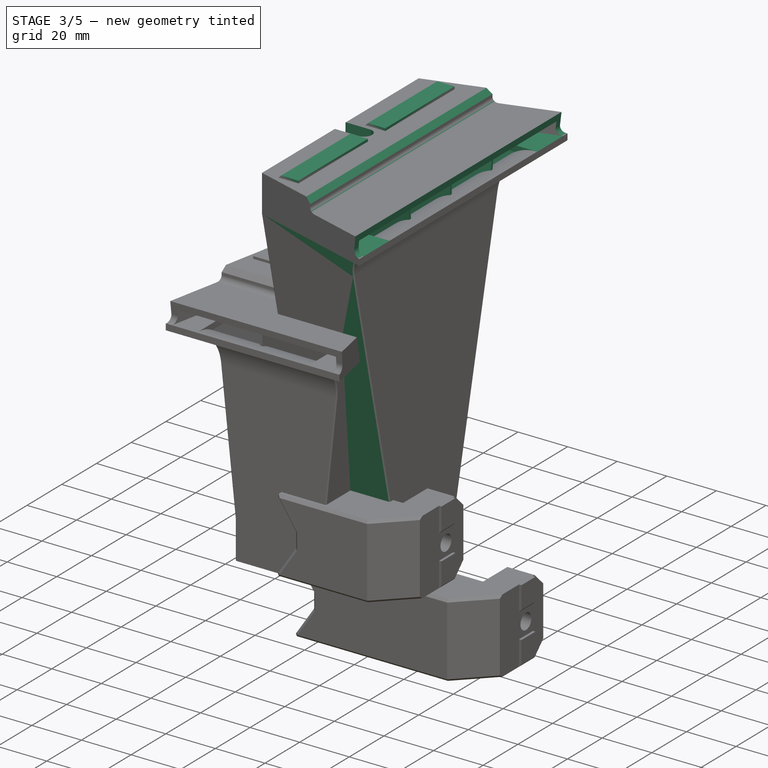
[diagram: stage 3 of 5 — iso view after this stage's code; geometry added in this stage tinted green]
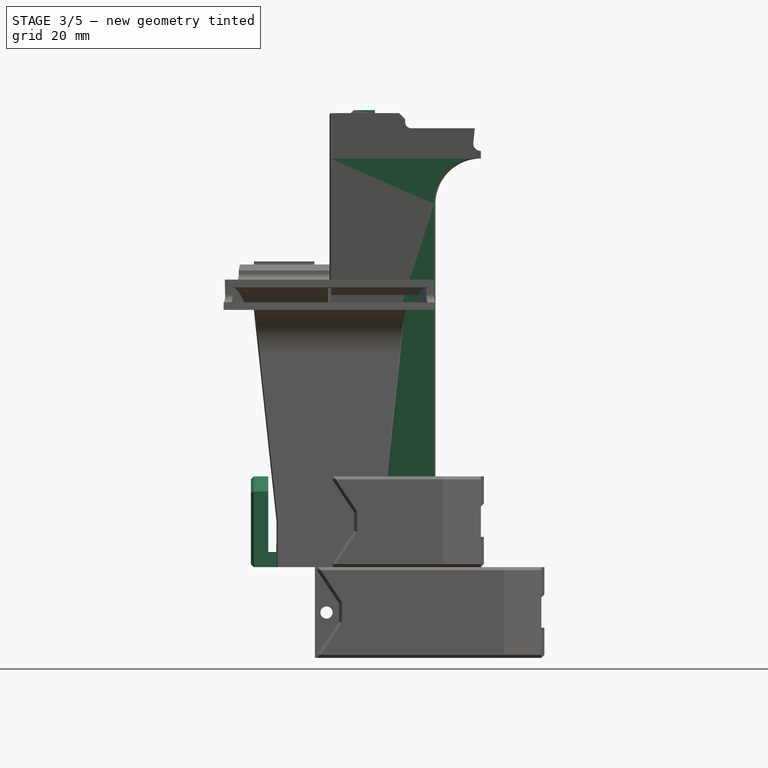
[diagram: stage 3 of 5 — front view after this stage's code; geometry added in this stage tinted green]
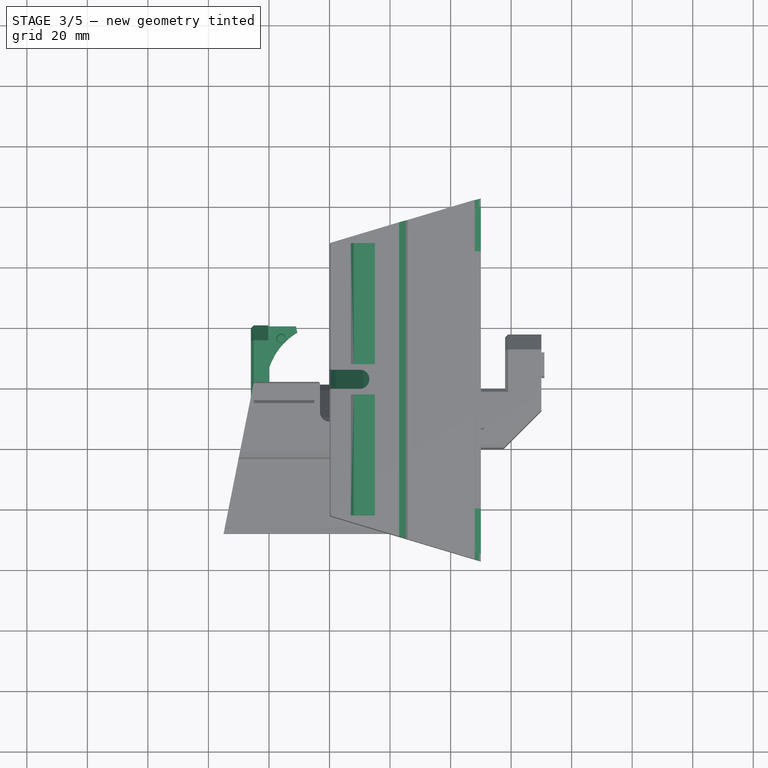
[diagram: stage 3 of 5 — top view after this stage's code; geometry added in this stage tinted green]
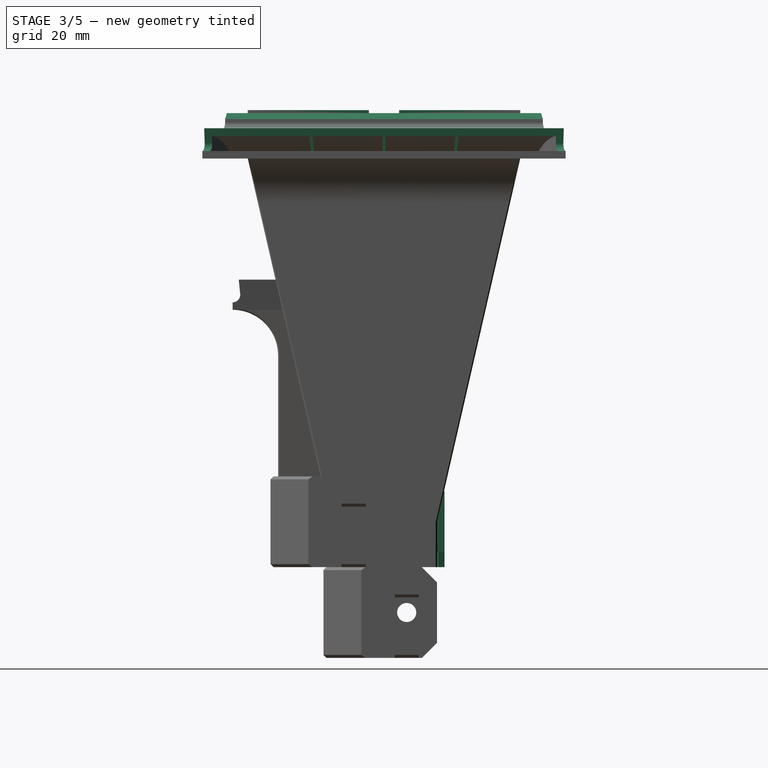
[diagram: stage 3 of 5 — right view after this stage's code; geometry added in this stage tinted green]
FEATURE [PartDesign::Body] Body011  label="fan-clamp-frame-side"
  Group = -> [Sketch097,Pad029,Sketch098,Pocket062,Sketch099,Pocket063,Sketch100,Pad030,Sketch101,Pad031,Sketch102,Pocket064,Sketch103,Pocket065,Sketch104,Pocket066,Chamfer009002001002,Chamfer009002001003,Chamfer009002001004,Chamfer009002001005]
  Origin = -> Origin011
  Placement = pos=(0,0,-10) rot=(0,0,1;0rad)
  Tip = -> Chamfer009002001005
FEATURE [Sketcher::SketchObject] Sketch105
  FullyConstrained = true
  MapMode = 5
  Support = -> [XY_Plane012]
  sketch-geometry (4):
    g0: LineSegment StartX=-26 StartY=20 StartZ=0 EndX=-5 EndY=20 EndZ=0
    g1: LineSegment StartX=-5 StartY=20 StartZ=0 EndX=-5 EndY=-20 EndZ=0
    g2: LineSegment StartX=-5 StartY=-20 StartZ=0 EndX=-26 EndY=-20 EndZ=0
    g3: LineSegment StartX=-26 StartY=-20 StartZ=0 EndX=-26 EndY=20 EndZ=0
  constraints (12):
    c: Coincident(g0,g1)
    c: Coincident(g1,g2)
    c: Coincident(g2,g3)
    c: Coincident(g3,g0)
    c: Horizontal(g0)
    c: Horizontal(g2)
    c: Vertical(g1)
    c: Vertical(g3)
    c: DistanceY(g3,g3) = 40
    c: DistanceY(g-1,g0) = 20
    c: DistanceX(g0,g-1) = 26
    c: DistanceX(g1,g-1) = 5
FEATURE [PartDesign::Pad] Pad032
  Direction = (1,1,1)
  Length = 30
  Length2 = 100
  Profile = -> Sketch105
  Type = 0
FEATURE [Sketcher::SketchObject] Sketch106
  FullyConstrained = true
  MapMode = 5
  Placement = pos=(0,0,0) rot=(1,0,0;3.14159rad)
  Support = -> [Pad032]
  sketch-geometry (2):
    g0: ArcOfCircle CenterX=0 CenterY=0 CenterZ=0 NormalX=0 NormalY=0 NormalZ=1 AngleXU=0 Radius=20.9 StartAngle=3.43613 EndAngle=9.13024
    g1: LineSegment StartX=-20 StartY=6.06712 StartZ=0 EndX=-20 EndY=-6.06712 EndZ=0
  constraints (6):
    c: Coincident(g0,g-1)
    c: Radius(g0) = 20.9
    c: Vertical(g1)
    c: DistanceX(g1,g0) = 20
    c: Coincident(g0,g1)
    c: Coincident(g0,g1)
FEATURE [PartDesign::Pocket] Pocket067
  BaseFeature = -> Pad032
  Length = 5
  Length2 = 100
  Profile = -> Sketch106
  Type = 0
FEATURE [Sketcher::SketchObject] Sketch107
  FullyConstrained = true
  MapMode = 5
  Placement = pos=(0,0,30) rot=(0,0,1;0rad)
  Support = -> [Pocket067]
  sketch-geometry (4):
    g0: LineSegment StartX=0 StartY=20 StartZ=0 EndX=-20.25 EndY=20 EndZ=0
    g1: LineSegment StartX=-20.25 StartY=20 StartZ=0 EndX=-20.25 EndY=-20 EndZ=0
    g2: LineSegment StartX=-20.25 StartY=-20 StartZ=0 EndX=0 EndY=-20 EndZ=0
    g3: LineSegment StartX=0 StartY=-20 StartZ=0 EndX=0 EndY=20 EndZ=0
  constraints (12):
    c: Coincident(g0,g1)
    c: Coincident(g1,g2)
    c: Coincident(g2,g3)
    c: Coincident(g3,g0)
    c: Horizontal(g0)
    c: Horizontal(g2)
    c: Vertical(g1)
    c: Vertical(g3)
    c: PointOnObject(g0,g-2)
    c: DistanceX(g0,g0) = 20.25
    c: DistanceY(g-1,g0) = 20
    c: DistanceY(g2,g-1) = 20
FEATURE [PartDesign::Pocket] Pocket068
  BaseFeature = -> Pocket067
  Length = 25
  Length2 = 100
  Profile = -> Sketch107
  Type = 0
FEATURE [Sketcher::SketchObject] Sketch108
  FullyConstrained = true
  MapMode = 5
  Placement = pos=(0,0,5) rot=(0,0,1;0rad)
  Support = -> [Pocket068]
  sketch-geometry (2):
    g0: Circle CenterX=-16 CenterY=16 CenterZ=0 NormalX=0 NormalY=0 NormalZ=1 AngleXU=0 Radius=1.6
    g1: Circle CenterX=-16 CenterY=-16 CenterZ=0 NormalX=0 NormalY=0 NormalZ=1 AngleXU=0 Radius=1.6
  constraints (6):
    c: Vertical(g1,g0)
    c: Equal(g1,g0)
    c: DistanceX(g0,g-1) = 16
    c: DistanceY(g-1,g0) = 16
    c: DistanceY(g1,g-1) = 16
    c: Radius(g0) = 1.6
FEATURE [PartDesign::Pad] Pad033
  BaseFeature = -> Pocket068
  Direction = (1,1,1)
  Length = 3
  Length2 = 100
  Profile = -> Sketch108
  Type = 0
FEATURE [Sketcher::SketchObject] Sketch109
  ExternalGeometry = -> [Pad033]
  FullyConstrained = true
  MapMode = 5
  Placement = pos=(-26,0,0) rot=(0.57735,-0.57735,-0.57735;2.0944rad)
  Support = -> [Pad033]
  sketch-geometry (2):
    g0: Circle CenterX=-13 CenterY=23 CenterZ=0 NormalX=0 NormalY=0 NormalZ=1 AngleXU=0 Radius=1.65
    g1: Circle CenterX=13 CenterY=23 CenterZ=0 NormalX=0 NormalY=0 NormalZ=1 AngleXU=0 Radius=1.65
  constraints (6):
    c: Horizontal(g0,g1)
    c: Equal(g1,g0)
    c: DistanceX(g-3,g0) = 7
    c: DistanceX(g1,g-4) = 7
    c: DistanceY(g1,g-4) = 7
    c: Radius(g1) = 1.65
FEATURE [PartDesign::Pocket] Pocket069
  BaseFeature = -> Pad033
  Length = 5
  Length2 = 100
  Profile = -> Sketch109
  Type = 1
FEATURE [PartDesign::Chamfer] Chamfer009002001006
  Angle = 45
  Base = -> Pocket069 [Edge5,Edge25]
  BaseFeature = -> Pocket069
  ChamferType = 0
  FlipDirection = false
  Size = 5
  Size2 = 1
  SupportTransform = false
FEATURE [PartDesign::Chamfer] Chamfer009002001007
  Angle = 45
  Base = -> Chamfer009002001006 [Edge35,Edge5]
  BaseFeature = -> Chamfer009002001006
  ChamferType = 0
  FlipDirection = false
  Size = 5
  Size2 = 1
  SupportTransform = false
FEATURE [PartDesign::Chamfer] Chamfer009002001008
  Angle = 45
  Base = -> Chamfer009002001007 [Edge26,Edge6,Edge30,Edge34,Edge33,Edge32]
  BaseFeature = -> Chamfer009002001007
  ChamferType = 0
  FlipDirection = false
  Size = 1
  Size2 = 1
  SupportTransform = false
FEATURE [PartDesign::Chamfer] Chamfer009002001009
  Angle = 45
  Base = -> Chamfer009002001008 [Edge48,Edge47,Edge53,Edge55,Edge33,Edge34]
  BaseFeature = -> Chamfer009002001008
  ChamferType = 0
  FlipDirection = false
  Size = 0.4
  Size2 = 1
  SupportTransform = false
FEATURE [Sketcher::SketchObject] Sketch131
  ExternalGeometry = -> [Pad038]
  FullyConstrained = true
  MapMode = 5
  Placement = pos=(-2e-16,0,0) rot=(0.57735,0.57735,-0.57735;4.18879rad)
  Support = -> [Pad038]
  sketch-geometry (12):
    g0: LineSegment StartX=-17.5 StartY=-15 StartZ=0 EndX=-15 EndY=-15 EndZ=0
    g1: LineSegment StartX=-15 StartY=-15 StartZ=0 EndX=-42.5 EndY=-135 EndZ=0
    g2: LineSegment StartX=-42.5 StartY=-135 StartZ=0 EndX=-45 EndY=-135 EndZ=0
    g3: LineSegment StartX=-45 StartY=-135 StartZ=0 EndX=-17.5 EndY=-15 EndZ=0
    g4: LineSegment StartX=17.5 StartY=-15 StartZ=0 EndX=15 EndY=-15 EndZ=0
    g5: LineSegment StartX=15 StartY=-15 StartZ=0 EndX=42.5 EndY=-135 EndZ=0
    g6: LineSegment StartX=42.5 StartY=-135 StartZ=0 EndX=45 EndY=-135 EndZ=0
    g7: LineSegment StartX=45 StartY=-135 StartZ=0 EndX=17.5 EndY=-15 EndZ=0
    g8: LineSegment StartX=-0.5 StartY=-15 StartZ=0 EndX=0.5 EndY=-15 EndZ=0
    g9: LineSegment StartX=0.5 StartY=-15 StartZ=0 EndX=0.5 EndY=-145 EndZ=0
    g10: LineSegment StartX=0.5 StartY=-145 StartZ=0 EndX=-0.5 EndY=-145 EndZ=0
    g11: LineSegment StartX=-0.5 StartY=-145 StartZ=0 EndX=-0.5 EndY=-15 EndZ=0
  constraints (32):
    c: Coincident(g-3,g0)
    c: Horizontal(g0)
    c: Coincident(g0,g1)
    c: Coincident(g1,g2)
    c: Coincident(g2,g-3)
    c: Horizontal(g2)
    c: Coincident(g2,g3)
    c: Coincident(g3,g0)
    c: Coincident(g-4,g4)
    c: Horizontal(g4)
    c: Coincident(g4,g5)
    c: Coincident(g5,g6)
    c: Coincident(g6,g-4)
    c: Horizontal(g6)
    c: Coincident(g6,g7)
    c: Coincident(g7,g4)
    c: Coincident(g8,g9)
    c: Coincident(g9,g10)
    c: Coincident(g10,g11)
    c: Coincident(g11,g8)
    c: Horizontal(g8)
    c: Horizontal(g10)
    c: Vertical(g9)
    c: Vertical(g11)
    c: DistanceX(g4,g4) = 2.5
    c: DistanceX(g8,g8) = 1
    c: DistanceX(g8,g-1) = 0.5
    c: Horizontal(g0,g8)
    c: Equal(g0,g4)
    c: Equal(g4,g2)
    c: Equal(g2,g6)
    c: DistanceY(g9,g5) = 10
FEATURE [PartDesign::Pad] Pad039
  BaseFeature = -> Pad038
  Direction = (1,1,1)
  Length = 45
  Length2 = 100
  Placement = pos=(0,0,0) rot=(0.57735,0.57735,0.57735;2.0944rad)
  Profile = -> Sketch131
  Refine = true
  Reversed = true
  Type = 0
FEATURE [Sketcher::SketchObject] Sketch132
  ExternalGeometry = -> [Pad039]
  FullyConstrained = true
  MapMode = 5
  Placement = pos=(-2e-16,0,0) rot=(0.57735,0.57735,-0.57735;4.18879rad)
  Support = -> [Pad039]
  sketch-geometry (8):
    g0: LineSegment StartX=-24 StartY=-145 StartZ=0 EndX=-12 EndY=-50 EndZ=0
    g1: LineSegment StartX=-12 StartY=-50 StartZ=0 EndX=-13 EndY=-50 EndZ=0
    g2: LineSegment StartX=-13 StartY=-50 StartZ=0 EndX=-25 EndY=-145 EndZ=0
    g3: LineSegment StartX=-25 StartY=-145 StartZ=0 EndX=-24 EndY=-145 EndZ=0
    g4: LineSegment StartX=24 StartY=-145 StartZ=0 EndX=25 EndY=-145 EndZ=0
    g5: LineSegment StartX=25 StartY=-145 StartZ=0 EndX=13 EndY=-50 EndZ=0
    g6: LineSegment StartX=13 StartY=-50 StartZ=0 EndX=12 EndY=-50 EndZ=0
    g7: LineSegment StartX=12 StartY=-50 StartZ=0 EndX=24 EndY=-145 EndZ=0
  constraints (24):
    c: PointOnObject(g0,g-3)
    c: Coincident(g0,g1)
    c: Coincident(g1,g2)
    c: PointOnObject(g2,g-3)
    c: Coincident(g2,g3)
    c: Coincident(g3,g0)
    c: PointOnObject(g4,g-3)
    c: PointOnObject(g4,g-3)
    c: Coincident(g4,g5)
    c: Coincident(g5,g6)
    c: Coincident(g6,g7)
    c: Coincident(g7,g4)
    c: Horizontal(g1)
    c: Horizontal(g6)
    c: Equal(g3,g4)
    c: Equal(g4,g6)
    c: Equal(g6,g1)
    c: DistanceX(g1,g1) = 1
    c: Horizontal(g0,g6)
    c: DistanceX(g-3,g2) = 35
    c: DistanceX(g4,g-3) = 35
    c: DistanceX(g0,g-1) = 12
    c: DistanceX(g-1,g6) = 12
    c: DistanceY(g0,g-1) = 50
FEATURE [PartDesign::Pad] Pad040
  BaseFeature = -> Pad039
  Direction = (1,1,1)
  Length = 45
  Length2 = 100
  Placement = pos=(0,0,0) rot=(0.57735,0.57735,0.57735;2.0944rad)
  Profile = -> Sketch132
  Reversed = true
  Type = 0
FEATURE [Sketcher::SketchObject] Sketch133
  ExternalGeometry = -> [Pad040]
  FullyConstrained = true
  MapMode = 5
  Placement = pos=(-2.214e-13,1.661e-13,135) rot=(0.707107,0.707107,0;3.14159rad)
  Support = -> [Pad040]
  sketch-geometry (8):
    g0: LineSegment StartX=-42.5 StartY=50 StartZ=0 EndX=-60 EndY=50 EndZ=0
    g1: LineSegment StartX=-60 StartY=50 StartZ=0 EndX=-45 EndY=-2.132e-13 EndZ=0
    g2: LineSegment StartX=-45 StartY=-2.132e-13 StartZ=0 EndX=-42.5 EndY=0 EndZ=0
    g3: LineSegment StartX=-42.5 StartY=0 StartZ=0 EndX=-42.5 EndY=50 EndZ=0
    g4: LineSegment StartX=60 StartY=50 StartZ=0 EndX=42.5 EndY=50 EndZ=0
    g5: LineSegment StartX=42.5 StartY=50 StartZ=0 EndX=42.5 EndY=0 EndZ=0
    g6: LineSegment StartX=42.5 StartY=0 StartZ=0 EndX=45 EndY=-1.137e-13 EndZ=0
    g7: LineSegment StartX=45 StartY=-1.137e-13 StartZ=0 EndX=60 EndY=50 EndZ=0
  constraints (20):
    c: PointOnObject(g0,g-9)
    c: Coincident(g0,g-8)
    c: Coincident(g0,g1)
    c: Coincident(g1,g-3)
    c: Coincident(g1,g2)
    c: PointOnObject(g2,g-1)
    c: Coincident(g2,g3)
    c: Vertical(g3)
    c: Coincident(g-7,g4)
    c: PointOnObject(g4,g-9)
    c: Coincident(g4,g5)
    c: PointOnObject(g5,g-1)
    c: Vertical(g5)
    c: Coincident(g5,g6)
    c: Coincident(g6,g-4)
    c: Coincident(g6,g7)
    c: Coincident(g7,g4)
    c: Coincident(g0,g3)
    c: Vertical(g0,g-5)
    c: Vertical(g4,g-6)
FEATURE [PartDesign::Pad] Pad041
  BaseFeature = -> Pad040
  Direction = (1,1,1)
  Length = 2.5
  Length2 = 100
  Placement = pos=(0,0,0) rot=(0.57735,0.57735,0.57735;2.0944rad)
  Profile = -> Sketch133
  Reversed = true
  Type = 0
FEATURE [Sketcher::SketchObject] Sketch134
  ExternalGeometry = -> [Pocket083]
  FullyConstrained = true
  MapMode = 5
  Placement = pos=(0,0,0) rot=(1,0,0;1.5708rad)
  Support = -> [XZ_Plane005]
  expr: Constraints[3] = Sketch128.Constraints[3]
  sketch-geometry (4):
    g0: ArcOfCircle CenterX=50 CenterY=120 CenterZ=0 NormalX=0 NormalY=0 NormalZ=1 AngleXU=0 Radius=15 StartAngle=1.5708 EndAngle=3.14159
    g1: LineSegment StartX=35 StartY=0 StartZ=0 EndX=35 EndY=120 EndZ=0
    g2: LineSegment StartX=50 StartY=135 StartZ=0 EndX=50 EndY=0 EndZ=0
    g3: LineSegment StartX=35 StartY=0 StartZ=0 EndX=50 EndY=0 EndZ=0
  constraints (12):
    c: PointOnObject(g0,g-4)
    c: Coincident(g0,g-4)
    c: Horizontal(g0,g0)
    c: DistanceX(g-1,g0) = 35
    c: PointOnObject(g1,g-1)
    c: Coincident(g1,g0)
    c: Vertical(g1)
    c: Coincident(g2,g0)
    c: Vertical(g2)
    c: Coincident(g3,g1)
    c: Coincident(g3,g2)
    c: Horizontal(g3)
FEATURE [PartDesign::Pocket] Pocket086
  BaseFeature = -> Pad041
  Length = 5
  Length2 = 100
  Midplane = true
  Placement = pos=(0,0,0) rot=(0.57735,0.57735,0.57735;2.0944rad)
  Profile = -> Sketch134
  Type = 1
FEATURE [Sketcher::SketchObject] Sketch135
  ExternalGeometry = -> [Pocket086]
  FullyConstrained = true
  MapMode = 5
  Placement = pos=(0,0,2e-16) rot=(0.707107,0.707107,0;3.14159rad)
  Support = -> [Pocket086]
  sketch-geometry (8):
    g0: LineSegment StartX=-15 StartY=32.5 StartZ=0 EndX=-0.5 EndY=32.5 EndZ=0
    g1: LineSegment StartX=-0.5 StartY=32.5 StartZ=0 EndX=-0.5 EndY=2.5 EndZ=0
    g2: LineSegment StartX=-0.5 StartY=2.5 StartZ=0 EndX=-15 EndY=2.5 EndZ=0
    g3: LineSegment StartX=-15 StartY=2.5 StartZ=0 EndX=-15 EndY=32.5 EndZ=0
    g4: LineSegment StartX=15 StartY=32.5 StartZ=0 EndX=0.5 EndY=32.5 EndZ=0
    g5: LineSegment StartX=0.5 StartY=32.5 StartZ=0 EndX=0.5 EndY=2.5 EndZ=0
    g6: LineSegment StartX=0.5 StartY=2.5 StartZ=0 EndX=15 EndY=2.5 EndZ=0
    g7: LineSegment StartX=15 StartY=2.5 StartZ=0 EndX=15 EndY=32.5 EndZ=0
  constraints (24):
    c: Coincident(g0,g1)
    c: Coincident(g1,g2)
    c: Coincident(g2,g3)
    c: Coincident(g3,g0)
    c: Horizontal(g0)
    c: Horizontal(g2)
    c: Vertical(g1)
    c: Vertical(g3)
    c: Coincident(g4,g5)
    c: Coincident(g5,g6)
    c: Coincident(g6,g7)
    c: Coincident(g7,g4)
    c: Horizontal(g4)
    c: Horizontal(g6)
    c: Vertical(g5)
    c: Vertical(g7)
    c: Horizontal(g1,g5)
    c: Horizontal(g0,g4)
    c: DistanceY(g0,g-3) = 2.5
    c: DistanceY(g-3,g2) = 2.5
    c: DistanceX(g-3,g0) = 2.5
    c: DistanceX(g4,g-4) = 2.5
    c: DistanceX(g0,g-1) = 0.5
    c: DistanceX(g1,g5) = 1
FEATURE [PartDesign::Pocket] Pocket087
  BaseFeature = -> Pocket086
  Length = 15
  Length2 = 100
  Placement = pos=(0,0,0) rot=(0.57735,0.57735,0.57735;2.0944rad)
  Profile = -> Sketch135
  Refine = true
  Type = 0
FEATURE [PartDesign::Chamfer] Chamfer009002001015
  Angle = 45
  Base = -> Pocket087 [Edge115]
  BaseFeature = -> Pocket087
  ChamferType = 0
  FlipDirection = false
  Placement = pos=(0,0,0) rot=(0.57735,0.57735,0.57735;2.0944rad)
  Size = 2
  Size2 = 1
  SupportTransform = false
FEATURE [PartDesign::Fillet] Fillet001
  Base = -> Chamfer009002001015 [Edge23]
  BaseFeature = -> Chamfer009002001015
  Placement = pos=(0,0,0) rot=(0.57735,0.57735,0.57735;2.0944rad)
  Radius = 2
  SupportTransform = false
FEATURE [Sketcher::SketchObject] Sketch136
  FullyConstrained = true
  MapMode = 5
  Placement = pos=(-4.2e-14,6.6e-14,150) rot=(0,0,-1;1.5708rad)
  Support = -> [Fillet001]
  sketch-geometry (4):
    g0: ArcOfCircle CenterX=0 CenterY=10 CenterZ=0 NormalX=0 NormalY=0 NormalZ=1 AngleXU=0 Radius=3.15 StartAngle=0 EndAngle=3.14159
    g1: LineSegment StartX=-3.15 StartY=0 StartZ=0 EndX=-3.15 EndY=10 EndZ=0
    g2: LineSegment StartX=3.15 StartY=0 StartZ=0 EndX=3.15 EndY=10 EndZ=0
    g3: LineSegment StartX=-3.15 StartY=0 StartZ=0 EndX=3.15 EndY=0 EndZ=0
  constraints (13):
    c: PointOnObject(g0,g-2)
    c: PointOnObject(g1,g-1)
    c: Coincident(g1,g0)
    c: Vertical(g1)
    c: PointOnObject(g2,g-1)
    c: Coincident(g2,g0)
    c: Coincident(g3,g1)
    c: Coincident(g3,g2)
    c: Vertical(g2)
    c: Horizontal(g0,g0)
    c: Horizontal(g0,g0)
    c: Radius(g0) = 3.15
    c: DistanceY(g-1,g0) = 10
FEATURE [PartDesign::Pocket] Pocket088
  BaseFeature = -> Fillet001
  Length = 7
  Length2 = 100
  Placement = pos=(0,0,0) rot=(0.57735,0.57735,0.57735;2.0944rad)
  Profile = -> Sketch136
  Type = 0
FEATURE [Sketcher::SketchObject] Sketch137
  ExternalGeometry = -> [Pocket088]
  FullyConstrained = true
  MapMode = 5
  Placement = pos=(-6.249e-13,2.731e-13,143) rot=(0,0,-1;1.5708rad)
  Support = -> [Pocket088]
  sketch-geometry (4):
    g0: ArcOfCircle CenterX=2.26e-14 CenterY=10 CenterZ=0 NormalX=0 NormalY=0 NormalZ=1 AngleXU=0 Radius=7 StartAngle=0 EndAngle=3.14159
    g1: LineSegment StartX=-7 StartY=10 StartZ=0 EndX=-7 EndY=0 EndZ=0
    g2: LineSegment StartX=7 StartY=10 StartZ=0 EndX=7 EndY=0 EndZ=0
    g3: LineSegment StartX=-7 StartY=0 StartZ=0 EndX=7 EndY=0 EndZ=0
  constraints (12):
    c: Coincident(g0,g-3)
    c: Horizontal(g0,g0)
    c: Horizontal(g0,g0)
    c: Radius(g0) = 7
    c: Coincident(g1,g0)
    c: Vertical(g1)
    c: Coincident(g2,g0)
    c: PointOnObject(g2,g-1)
    c: Vertical(g2)
    c: Coincident(g3,g1)
    c: Coincident(g3,g2)
    c: Horizontal(g3)
FEATURE [PartDesign::Pocket] Pocket089
  BaseFeature = -> Pocket088
  Length = 8
  Length2 = 100
  Placement = pos=(0,0,0) rot=(0.57735,0.57735,0.57735;2.0944rad)
  Profile = -> Sketch137
  Type = 0
FEATURE [Sketcher::SketchObject] Sketch138
  ExternalGeometry = -> [Pocket089]
  FullyConstrained = true
  MapMode = 5
  Placement = pos=(-3.1e-15,-7,1.41e-14) rot=(0.57735,0.57735,0.57735;4.18879rad)
  Support = -> [Pocket089]
  sketch-geometry (3):
    g0: LineSegment StartX=135 StartY=10 StartZ=0 EndX=100 EndY=-4.334e-13 EndZ=0
    g1: LineSegment StartX=100 StartY=-4.334e-13 StartZ=0 EndX=135 EndY=-6.395e-13 EndZ=0
    g2: LineSegment StartX=135 StartY=-6.395e-13 StartZ=0 EndX=135 EndY=10 EndZ=0
  constraints (7):
    c: Coincident(g-4,g0)
    c: PointOnObject(g0,g-3)
    c: Coincident(g0,g1)
    c: Coincident(g1,g-4)
    c: Coincident(g1,g2)
    c: Coincident(g2,g0)
    c: DistanceX(g1,g1) = 35
FEATURE [PartDesign::Pocket] Pocket090
  BaseFeature = -> Pocket089
  Length = 14
  Length2 = 100
  Placement = pos=(0,0,0) rot=(0.57735,0.57735,0.57735;2.0944rad)
  Profile = -> Sketch138
  Refine = true
  Reversed = true
  Type = 0
FEATURE [PartDesign::Chamfer] Chamfer009002001016
  Angle = 45
  Base = -> Pocket090 [Edge122]
  BaseFeature = -> Pocket090
  ChamferType = 0
  FlipDirection = false
  Placement = pos=(0,0,0) rot=(0.57735,0.57735,0.57735;2.0944rad)
  Size = 6.99
  Size2 = 1
  SupportTransform = false
FEATURE [PartDesign::Chamfer] Chamfer009002001017
  Angle = 45
  Base = -> Chamfer009002001016 [Edge2]
  BaseFeature = -> Chamfer009002001016
  ChamferType = 0
  FlipDirection = false
  Placement = pos=(0,0,0) rot=(0.57735,0.57735,0.57735;2.0944rad)
  Size = 11
  Size2 = 1
  SupportTransform = false
FEATURE [PartDesign::Chamfer] Chamfer009002001018
  Angle = 45
  Base = -> Chamfer009002001017 [Edge2]
  BaseFeature = -> Chamfer009002001017
  ChamferType = 0
  FlipDirection = false
  Placement = pos=(0,0,0) rot=(0.57735,0.57735,0.57735;2.0944rad)
  Size = 11
  Size2 = 1
  SupportTransform = false
FEATURE [Sketcher::SketchObject] Sketch139
  ExternalGeometry = -> [Chamfer009002001018]
  FullyConstrained = true
  MapMode = 5
  Placement = pos=(-4.2e-14,6.6e-14,150) rot=(0,0,-1;1.5708rad)
  Support = -> [Chamfer009002001018]
  sketch-geometry (8):
    g0: LineSegment StartX=5 StartY=15 StartZ=0 EndX=45 EndY=15 EndZ=0
    g1: LineSegment StartX=45 StartY=15 StartZ=0 EndX=45 EndY=7 EndZ=0
    g2: LineSegment StartX=45 StartY=7 StartZ=0 EndX=5 EndY=7 EndZ=0
    g3: LineSegment StartX=5 StartY=7 StartZ=0 EndX=5 EndY=15 EndZ=0
    g4: LineSegment StartX=-5 StartY=15 StartZ=0 EndX=-45 EndY=15 EndZ=0
    g5: LineSegment StartX=-45 StartY=15 StartZ=0 EndX=-45 EndY=7 EndZ=0
    g6: LineSegment StartX=-45 StartY=7 StartZ=0 EndX=-5 EndY=7 EndZ=0
    g7: LineSegment StartX=-5 StartY=7 StartZ=0 EndX=-5 EndY=15 EndZ=0
  constraints (24):
    c: Coincident(g0,g1)
    c: Coincident(g1,g2)
    c: Coincident(g2,g3)
    c: Coincident(g3,g0)
    c: Horizontal(g0)
    c: Horizontal(g2)
    c: Vertical(g1)
    c: Vertical(g3)
    c: Coincident(g4,g5)
    c: Coincident(g5,g6)
    c: Coincident(g6,g7)
    c: Coincident(g7,g4)
    c: Horizontal(g4)
    c: Horizontal(g6)
    c: Vertical(g5)
    c: Vertical(g7)
    c: Horizontal(g4,g0)
    c: Horizontal(g6,g2)
    c: DistanceX(g4,g-3) = 5
    c: DistanceX(g-3,g0) = 5
    c: DistanceY(g7,g7) = 8
    c: DistanceY(g-3,g0) = 5
    c: DistanceX(g0,g0) = 40
    c: Equal(g4,g0)
FEATURE [PartDesign::Pad] Pad042
  BaseFeature = -> Chamfer009002001018
  Direction = (1,1,1)
  Length = 1
  Length2 = 100
  Placement = pos=(0,0,0) rot=(0.57735,0.57735,0.57735;2.0944rad)
  Profile = -> Sketch139
  Type = 0
FEATURE [PartDesign::Chamfer] Chamfer009002001019
  Angle = 45
  Base = -> Pad042 [Edge157,Edge151]
  BaseFeature = -> Pad042
  ChamferType = 0
  FlipDirection = false
  Placement = pos=(0,0,0) rot=(0.57735,0.57735,0.57735;2.0944rad)
  Size = 0.99
  Size2 = 1
  SupportTransform = false
FEATURE [PartDesign::Chamfer] Chamfer009002001020
  Angle = 45
  Base = -> Chamfer009002001019 [Face11,Edge100,Edge104,Edge88,Edge84,Edge103,Edge85]
  BaseFeature = -> Chamfer009002001019
  ChamferType = 0
  FlipDirection = false
  Placement = pos=(0,0,0) rot=(0.57735,0.57735,0.57735;2.0944rad)
  Size = 0.4
  Size2 = 1
  SupportTransform = false
FEATURE [Sketcher::SketchObject] Sketch140
  ExternalGeometry = -> [Chamfer009002001020]
  FullyConstrained = true
  MapMode = 5
  Placement = pos=(0,0,0) rot=(1,0,0;1.5708rad)
  Support = -> [XZ_Plane005]
  sketch-geometry (4):
    g0: ArcOfCircle CenterX=50 CenterY=140 CenterZ=0 NormalX=0 NormalY=0 NormalZ=1 AngleXU=0 Radius=2.5 StartAngle=3.03932 EndAngle=4.71239
    g1: LineSegment StartX=47.5131 StartY=140.255 StartZ=0 EndX=48 EndY=145 EndZ=0
    g2: LineSegment StartX=48 StartY=145 StartZ=0 EndX=50 EndY=145 EndZ=0
    g3: LineSegment StartX=50 StartY=145 StartZ=0 EndX=50 EndY=137.5 EndZ=0
  constraints (11):
    c: PointOnObject(g0,g-3)
    c: PointOnObject(g0,g-3)
    c: DistanceY(g-3,g0) = 2.5
    c: PointOnObject(g1,g-4)
    c: Coincident(g2,g1)
    c: Coincident(g2,g-4)
    c: Coincident(g3,g2)
    c: Coincident(g3,g0)
    c: Radius(g0) = 2.5
    c: Tangent(g1,g0) = 1.5708
    c: DistanceX(g1,g2) = 2
FEATURE [PartDesign::Pocket] Pocket091
  BaseFeature = -> Chamfer009002001020
  Length = 5
  Length2 = 100
  Midplane = true
  Placement = pos=(0,0,0) rot=(0.57735,0.57735,0.57735;2.0944rad)
  Profile = -> Sketch140
  Type = 1
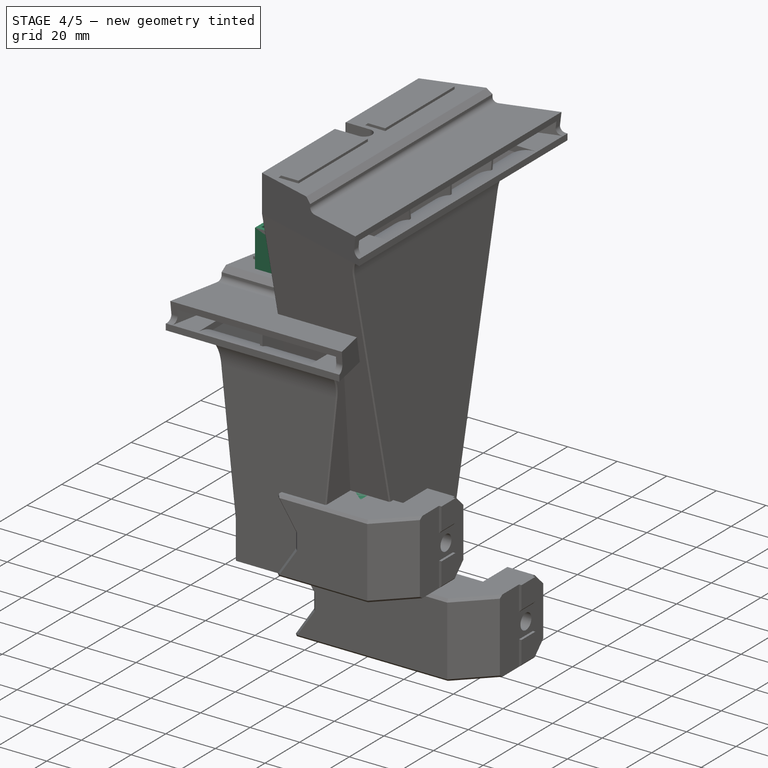
[diagram: stage 4 of 5 — iso view after this stage's code; geometry added in this stage tinted green]
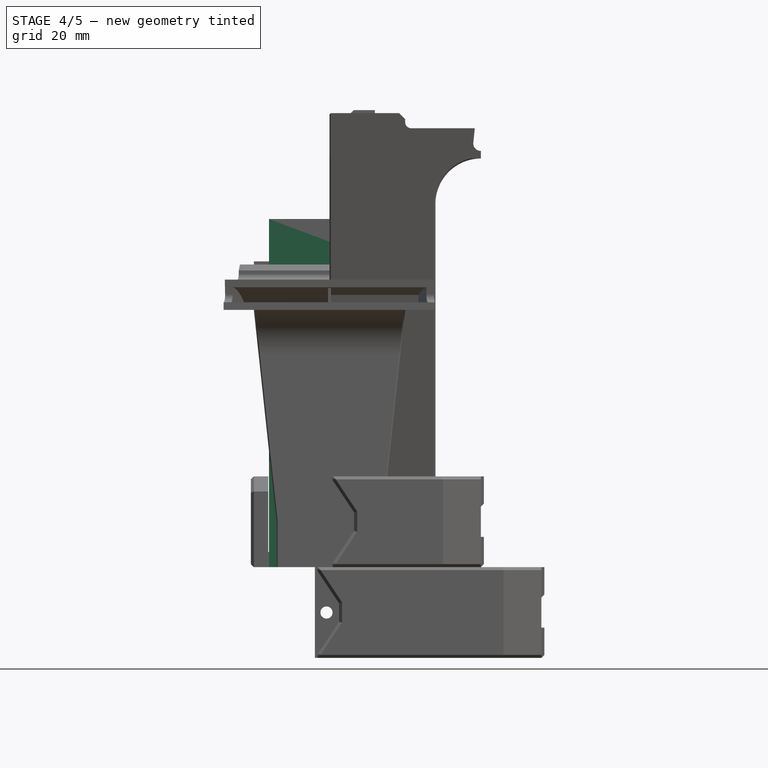
[diagram: stage 4 of 5 — front view after this stage's code; geometry added in this stage tinted green]
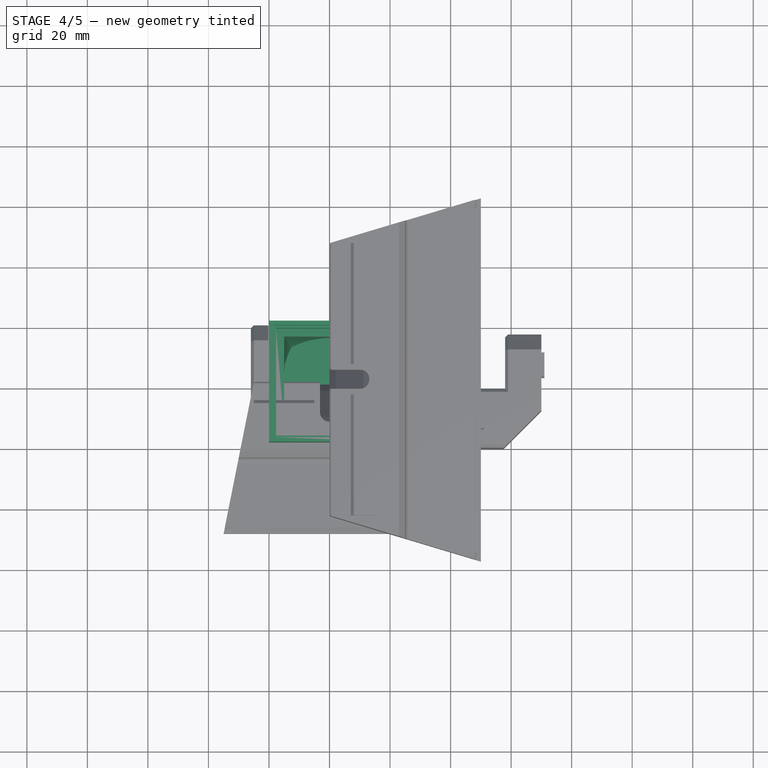
[diagram: stage 4 of 5 — top view after this stage's code; geometry added in this stage tinted green]
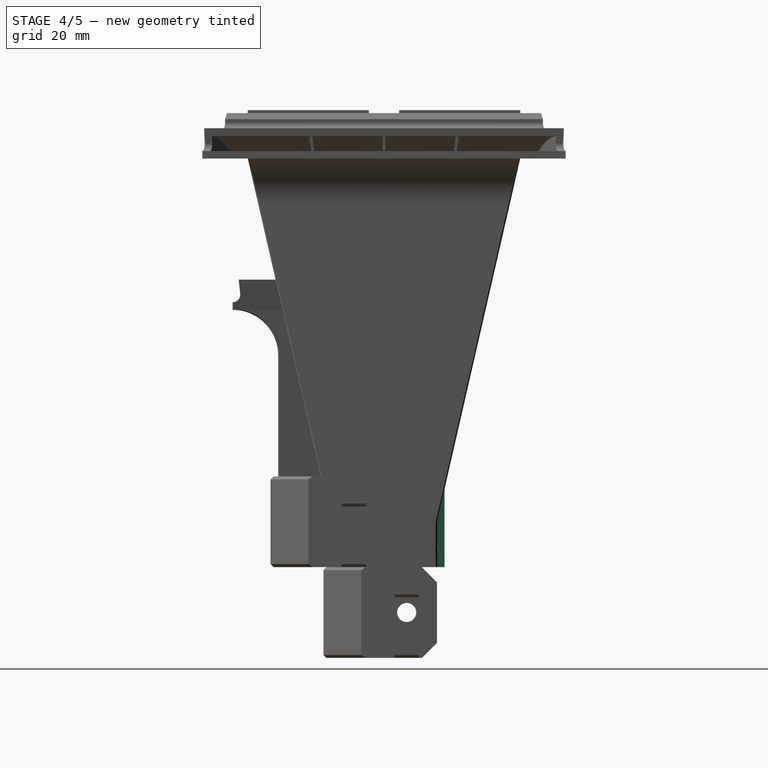
[diagram: stage 4 of 5 — right view after this stage's code; geometry added in this stage tinted green]
FEATURE [Sketcher::SketchObject] Sketch
  FullyConstrained = true
  MapMode = 5
  Support = -> [XY_Plane]
  sketch-geometry (4):
    g0: LineSegment StartX=-20 StartY=20 StartZ=0 EndX=20 EndY=20 EndZ=0
    g1: LineSegment StartX=20 StartY=20 StartZ=0 EndX=20 EndY=-20 EndZ=0
    g2: LineSegment StartX=20 StartY=-20 StartZ=0 EndX=-20 EndY=-20 EndZ=0
    g3: LineSegment StartX=-20 StartY=-20 StartZ=0 EndX=-20 EndY=20 EndZ=0
  constraints (12):
    c: Coincident(g0,g1)
    c: Coincident(g1,g2)
    c: Coincident(g2,g3)
    c: Coincident(g3,g0)
    c: Horizontal(g0)
    c: Horizontal(g2)
    c: Vertical(g1)
    c: Vertical(g3)
    c: DistanceX(g0,g0) = 40
    c: DistanceX(g0,g-1) = 20
    c: DistanceY(g1,g1) = 40
    c: DistanceY(g-1,g0) = 20
FEATURE [PartDesign::Pad] Pad
  Direction = (1,1,1)
  Length = 115
  Length2 = 100
  Profile = -> Sketch
  Type = 0
FEATURE [Sketcher::SketchObject] Sketch040
  FullyConstrained = true
  MapMode = 5
  Placement = pos=(0,0,115) rot=(0,0,1;0rad)
  Support = -> [Pad]
  sketch-geometry (4):
    g0: LineSegment StartX=-17.65 StartY=17.65 StartZ=0 EndX=17.65 EndY=17.65 EndZ=0
    g1: LineSegment StartX=17.65 StartY=17.65 StartZ=0 EndX=17.65 EndY=-17.85 EndZ=0
    g2: LineSegment StartX=17.65 StartY=-17.85 StartZ=0 EndX=-17.65 EndY=-17.85 EndZ=0
    g3: LineSegment StartX=-17.65 StartY=-17.85 StartZ=0 EndX=-17.65 EndY=17.65 EndZ=0
  constraints (12):
    c: Coincident(g0,g1)
    c: Coincident(g1,g2)
    c: Coincident(g2,g3)
    c: Coincident(g3,g0)
    c: Horizontal(g0)
    c: Horizontal(g2)
    c: Vertical(g1)
    c: Vertical(g3)
    c: DistanceX(g0,g0) = 35.3
    c: DistanceX(g0,g-1) = 17.65
    c: DistanceY(g1,g1) = 35.5
    c: DistanceY(g-1,g0) = 17.65
FEATURE [PartDesign::Pocket] Pocket
  BaseFeature = -> Pad
  Length = 15
  Length2 = 100
  Profile = -> Sketch040
  Type = 0
FEATURE [Sketcher::SketchObject] Sketch041
  FullyConstrained = true
  MapMode = 5
  Placement = pos=(0,0,115) rot=(0,0,1;0rad)
  Support = -> [Pocket]
  sketch-geometry (4):
    g0: LineSegment StartX=-18.5 StartY=18.5 StartZ=0 EndX=18.5 EndY=18.5 EndZ=0
    g1: LineSegment StartX=18.5 StartY=18.5 StartZ=0 EndX=18.5 EndY=-18.5 EndZ=0
    g2: LineSegment StartX=18.5 StartY=-18.5 StartZ=0 EndX=-18.5 EndY=-18.5 EndZ=0
    g3: LineSegment StartX=-18.5 StartY=-18.5 StartZ=0 EndX=-18.5 EndY=18.5 EndZ=0
  constraints (12):
    c: Coincident(g0,g1)
    c: Coincident(g1,g2)
    c: Coincident(g2,g3)
    c: Coincident(g3,g0)
    c: Horizontal(g0)
    c: Horizontal(g2)
    c: Vertical(g1)
    c: Vertical(g3)
    c: DistanceX(g0,g0) = 37
    c: DistanceX(g0,g-1) = 18.5
    c: DistanceY(g1,g1) = 37
    c: DistanceY(g-1,g0) = 18.5
FEATURE [PartDesign::Pocket] Pocket027
  BaseFeature = -> Pocket
  Length = 6
  Length2 = 100
  Profile = -> Sketch041
  Type = 0
FEATURE [Sketcher::SketchObject] Sketch042
  FullyConstrained = true
  MapMode = 5
  Support = -> [XY_Plane]
  sketch-geometry (1):
    g0: Circle CenterX=0 CenterY=0 CenterZ=0 NormalX=0 NormalY=0 NormalZ=1 AngleXU=0 Radius=16
  constraints (2):
    c: Coincident(g0,g-1)
    c: Radius(g0) = 16
FEATURE [Sketcher::SketchObject] Sketch043
  AttachmentOffset = pos=(0,0,100) rot=(0,0,1;0rad)
  FullyConstrained = true
  MapMode = 5
  Placement = pos=(0,0,100) rot=(0,0,1;0rad)
  Support = -> [XY_Plane]
  sketch-geometry (4):
    g0: LineSegment StartX=-15 StartY=15 StartZ=0 EndX=15 EndY=15 EndZ=0
    g1: LineSegment StartX=15 StartY=15 StartZ=0 EndX=15 EndY=-15 EndZ=0
    g2: LineSegment StartX=15 StartY=-15 StartZ=0 EndX=-15 EndY=-15 EndZ=0
    g3: LineSegment StartX=-15 StartY=-15 StartZ=0 EndX=-15 EndY=15 EndZ=0
  constraints (12):
    c: Coincident(g0,g1)
    c: Coincident(g1,g2)
    c: Coincident(g2,g3)
    c: Coincident(g3,g0)
    c: Horizontal(g0)
    c: Horizontal(g2)
    c: Vertical(g1)
    c: Vertical(g3)
    c: DistanceX(g0,g0) = 30
    c: DistanceX(g0,g-1) = 15
    c: DistanceY(g1,g1) = 30
    c: DistanceY(g-1,g0) = 15
FEATURE [PartDesign::SubtractiveLoft] SubtractiveLoft
  BaseFeature = -> Pocket027
  Closed = true
  Profile = -> Sketch043
  Ruled = true
  Sections = -> [Sketch042]
FEATURE [Sketcher::SketchObject] Sketch044
  FullyConstrained = true
  MapMode = 5
  Placement = pos=(0,0,0) rot=(1,0,0;3.14159rad)
  Support = -> [SubtractiveLoft]
  sketch-geometry (4):
    g0: Circle CenterX=-16 CenterY=16 CenterZ=0 NormalX=0 NormalY=0 NormalZ=1 AngleXU=0 Radius=1.65
    g1: Circle CenterX=16 CenterY=16 CenterZ=0 NormalX=0 NormalY=0 NormalZ=1 AngleXU=0 Radius=1.65
    g2: Circle CenterX=-16 CenterY=-16 CenterZ=0 NormalX=0 NormalY=0 NormalZ=1 AngleXU=0 Radius=1.65
    g3: Circle CenterX=16 CenterY=-16 CenterZ=0 NormalX=0 NormalY=0 NormalZ=1 AngleXU=0 Radius=1.65
  constraints (12):
    c: Horizontal(g0,g1)
    c: Horizontal(g2,g3)
    c: Vertical(g2,g0)
    c: Vertical(g1,g3)
    c: DistanceX(g0,g1) = 32
    c: DistanceX(g0,g-1) = 16
    c: DistanceY(g3,g1) = 32
    c: DistanceY(g-1,g1) = 16
    c: Equal(g2,g3)
    c: Equal(g3,g1)
    c: Equal(g1,g0)
    c: Radius(g1) = 1.65
FEATURE [PartDesign::Pocket] Pocket028
  BaseFeature = -> SubtractiveLoft
  Length = 10
  Length2 = 100
  Profile = -> Sketch044
  Type = 0
FEATURE [Sketcher::SketchObject] Sketch045
  ExternalGeometry = -> [Pocket028]
  FullyConstrained = true
  MapMode = 5
  Placement = pos=(0,-20,0) rot=(1,0,0;1.5708rad)
  Support = -> [Pocket028]
  sketch-geometry (10):
    g0: LineSegment StartX=20 StartY=110 StartZ=0 EndX=30 EndY=95 EndZ=0
    g1: LineSegment StartX=30 StartY=95 StartZ=0 EndX=30 EndY=75 EndZ=0
    g2: LineSegment StartX=30 StartY=75 StartZ=0 EndX=20 EndY=60 EndZ=0
    g3: LineSegment StartX=20 StartY=60 StartZ=0 EndX=20 EndY=110 EndZ=0
    g4: LineSegment StartX=20 StartY=55 StartZ=0 EndX=30 EndY=40 EndZ=0
    g5: LineSegment StartX=30 StartY=40 StartZ=0 EndX=30 EndY=20 EndZ=0
    g6: LineSegment StartX=30 StartY=20 StartZ=0 EndX=20 EndY=5 EndZ=0
    g7: LineSegment StartX=20 StartY=5 StartZ=0 EndX=20 EndY=55 EndZ=0
    g8: Circle CenterX=25 CenterY=85 CenterZ=0 NormalX=0 NormalY=0 NormalZ=1 AngleXU=0 Radius=1.65
    g9: Circle CenterX=25 CenterY=30 CenterZ=0 NormalX=0 NormalY=0 NormalZ=1 AngleXU=0 Radius=1.65
  constraints (30):
    c: PointOnObject(g0,g-3)
    c: Coincident(g0,g1)
    c: Coincident(g1,g2)
    c: PointOnObject(g2,g-3)
    c: Coincident(g2,g3)
    c: Coincident(g3,g0)
    c: PointOnObject(g4,g-3)
    c: Coincident(g4,g5)
    c: Coincident(g5,g6)
    c: PointOnObject(g6,g-3)
    c: Coincident(g6,g7)
    c: Coincident(g7,g4)
    c: DistanceY(g3,g3) = 50
    c: DistanceY(g7,g7) = 50
    c: Vertical(g1)
    c: Vertical(g5)
    c: Vertical(g4,g1)
    c: DistanceX(g0,g0) = 10
    c: DistanceY(g0,g-3) = 5
    c: DistanceY(g-3,g6) = 5
    c: DistanceY(g2,g1) = 15
    c: DistanceY(g0,g0) = 15
    c: DistanceY(g4,g4) = 15
    c: DistanceY(g6,g5) = 15
    c: Vertical(g9,g8)
    c: DistanceY(g8,g0) = 25
    c: DistanceX(g0,g8) = 5
    c: DistanceY(g6,g9) = 25
    c: Equal(g9,g8)
    c: Radius(g8) = 1.65
FEATURE [PartDesign::Pad] Pad011
  BaseFeature = -> Pocket028
  Direction = (1,1,1)
  Length = 12.5
  Length2 = 100
  Profile = -> Sketch045
  Reversed = true
  Type = 0
FEATURE [PartDesign::Body] Body004  label="mounter"
  Group = -> [Sketch047,Pad012,Sketch048,Pocket030,Sketch049,Pocket031,Sketch050,Pad013,Sketch051,Pad014,Chamfer009,Chamfer010,Chamfer011]
  Origin = -> Origin004
  Placement = pos=(60,-25,-40) rot=(0,0,1;0rad)
  Tip = -> Chamfer011
FEATURE [PartDesign::Plane] DatumPlane001
  AttachmentOffset = pos=(0,0,0) rot=(0,1,0;0.785398rad)
  Length = 94.6369
  MapMode = 5
  Placement = pos=(0,0,0) rot=(0.862856,0.357407,0.357407;1.71777rad)
  ResizeMode = 0
  Support = -> [XZ_Plane]
  Width = 160.391
FEATURE [Sketcher::SketchObject] Sketch052
  FullyConstrained = false
  MapMode = 5
  Placement = pos=(0,0,0) rot=(0.862856,0.357407,0.357407;1.71777rad)
  Support = -> [DatumPlane001]
  sketch-geometry (8):
    g0: LineSegment StartX=-28.2843 StartY=95 StartZ=0 EndX=-23.2843 EndY=80 EndZ=0
    g1: LineSegment StartX=-23.2843 StartY=80 StartZ=0 EndX=-21.2843 EndY=30 EndZ=0
    g2: LineSegment StartX=-21.2843 StartY=30 StartZ=0 EndX=-28.2843 EndY=20 EndZ=0
    g3: LineSegment StartX=-28.2843 StartY=20 StartZ=0 EndX=-28.2843 EndY=95 EndZ=0
    g4: LineSegment StartX=28.2843 StartY=95 StartZ=0 EndX=23.2843 EndY=80 EndZ=0
    g5: LineSegment StartX=23.2843 StartY=80 StartZ=0 EndX=21.2843 EndY=30 EndZ=0
    g6: LineSegment StartX=21.2843 StartY=30 StartZ=0 EndX=28.2843 EndY=20 EndZ=0
    g7: LineSegment StartX=28.2843 StartY=20 StartZ=0 EndX=28.2843 EndY=95 EndZ=0
  constraints (20):
    c: Coincident(g0,g1)
    c: Coincident(g1,g2)
    c: Coincident(g2,g3)
    c: Coincident(g3,g0)
    c: Coincident(g4,g5)
    c: Coincident(g5,g6)
    c: Coincident(g6,g7)
    c: Coincident(g7,g4)
    c: DistanceX(g2,g1) = 7
    c: DistanceX(g5,g6) = 7
    c: Horizontal(g6,g2)
    c: DistanceY(g2,g1) = 10
    c: Horizontal(g4,g0)
    c: DistanceX(g0,g0) = 5
    c: DistanceX(g4,g4) = 5
    c: Horizontal(g4,g0)
    c: DistanceY(g4,g4) = 15
    c: DistanceY(g3,g3) = 75
    c: Horizontal(g5,g1)
    c: DistanceY(g-1,g2) = 20
FEATURE [PartDesign::Plane] DatumPlane002
  AttachmentOffset = pos=(0,0,0) rot=(0,1,0;0.785398rad)
  Length = 94.6369
  MapMode = 5
  Placement = pos=(0,0,0) rot=(0.281085,0.678598,0.678598;2.59356rad)
  ResizeMode = 0
  Support = -> [YZ_Plane]
  Width = 160.391
FEATURE [PartDesign::Pocket] Pocket032
  BaseFeature = -> Pad011
  Length = 5
  Length2 = 100
  Midplane = true
  Profile = -> Sketch052
  Refine = true
  Type = 1
FEATURE [Sketcher::SketchObject] Sketch053
  ExternalGeometry = -> [Pocket032]
  FullyConstrained = true
  MapMode = 5
  Placement = pos=(0,0,0) rot=(0.281085,0.678598,0.678598;2.59356rad)
  Support = -> [DatumPlane002]
  sketch-geometry (4):
    g0: LineSegment StartX=28.2843 StartY=95 StartZ=0 EndX=23.2843 EndY=80 EndZ=0
    g1: LineSegment StartX=23.2843 StartY=80 StartZ=0 EndX=21.2843 EndY=30 EndZ=0
    g2: LineSegment StartX=21.2843 StartY=30 StartZ=0 EndX=28.2843 EndY=20 EndZ=0
    g3: LineSegment StartX=28.2843 StartY=20 StartZ=0 EndX=28.2843 EndY=95 EndZ=0
  constraints (12):
    c: PointOnObject(g0,g-3)
    c: Coincident(g0,g1)
    c: Coincident(g1,g2)
    c: PointOnObject(g2,g-3)
    c: Coincident(g2,g3)
    c: Coincident(g3,g0)
    c: Horizontal(g-4,g0)
    c: Horizontal(g-5,g0)
    c: Horizontal(g-6,g1)
    c: Horizontal(g2,g-6)
    c: DistanceX(g1,g2) = 7
    c: DistanceX(g0,g0) = 5
FEATURE [PartDesign::Pocket] Pocket033
  BaseFeature = -> Pocket032
  Length = 5
  Length2 = 100
  Midplane = true
  Profile = -> Sketch053
  Refine = true
  Type = 1
FEATURE [PartDesign::Body] Body006  label="4028-fan-mounter-shorter"
  Group = -> [Sketch069,Pad021,Sketch070,Pocket044,Sketch071,Pocket045,Sketch072,Sketch073,SubtractiveLoft001,Sketch074,Pocket046,Sketch075,Pad022,DatumPlane003,DatumPlane004,Sketch076,Pocket047,Sketch077,Pocket048,Chamfer019]
  Origin = -> Origin006
  Placement = pos=(-100,0,0) rot=(0,0,1;0rad)
  Tip = -> Chamfer019
FEATURE [PartDesign::FeatureBase] Clone
  BaseFeature = -> Pocket033
FEATURE [Sketcher::SketchObject] Sketch081
  ExternalGeometry = -> [Clone]
  FullyConstrained = true
  MapMode = 5
  Placement = pos=(-1e-15,-20,-2e-16) rot=(1,0,0;1.5708rad)
  Support = -> [Clone]
  sketch-geometry (16):
    g0: LineSegment StartX=20 StartY=110 StartZ=0 EndX=20 EndY=100 EndZ=0
    g1: LineSegment StartX=20 StartY=100 StartZ=0 EndX=28 EndY=88 EndZ=0
    g2: LineSegment StartX=28 StartY=88 StartZ=0 EndX=28 EndY=82 EndZ=0
    g3: LineSegment StartX=28 StartY=82 StartZ=0 EndX=20 EndY=70 EndZ=0
    g4: LineSegment StartX=20 StartY=70 StartZ=0 EndX=20 EndY=60 EndZ=0
    g5: LineSegment StartX=20 StartY=60 StartZ=0 EndX=30 EndY=75 EndZ=0
    g6: LineSegment StartX=30 StartY=75 StartZ=0 EndX=30 EndY=95 EndZ=0
    g7: LineSegment StartX=30 StartY=95 StartZ=0 EndX=20 EndY=110 EndZ=0
    g8: LineSegment StartX=20 StartY=55 StartZ=0 EndX=20 EndY=45 EndZ=0
    g9: LineSegment StartX=20 StartY=45 StartZ=0 EndX=28 EndY=33 EndZ=0
    g10: LineSegment StartX=28 StartY=33 StartZ=0 EndX=28 EndY=27 EndZ=0
    g11: LineSegment StartX=28 StartY=27 StartZ=0 EndX=20 EndY=15 EndZ=0
    g12: LineSegment StartX=20 StartY=15 StartZ=0 EndX=20 EndY=5 EndZ=0
    g13: LineSegment StartX=20 StartY=5 StartZ=0 EndX=30 EndY=20 EndZ=0
    g14: LineSegment StartX=30 StartY=20 StartZ=0 EndX=30 EndY=40 EndZ=0
    g15: LineSegment StartX=30 StartY=40 StartZ=0 EndX=20 EndY=55 EndZ=0
  constraints (40):
    c: Coincident(g-3,g0)
    c: Vertical(g0)
    c: Coincident(g0,g1)
    c: Coincident(g1,g2)
    c: Vertical(g2)
    c: Coincident(g2,g3)
    c: Coincident(g3,g4)
    c: Coincident(g4,g-5)
    c: Vertical(g4)
    c: Coincident(g4,g5)
    c: Coincident(g5,g-5)
    c: Coincident(g5,g6)
    c: Coincident(g6,g-4)
    c: Coincident(g6,g7)
    c: Coincident(g7,g0)
    c: Coincident(g-6,g8)
    c: Vertical(g8)
    c: Coincident(g8,g9)
    c: Coincident(g9,g10)
    c: Coincident(g10,g11)
    c: Coincident(g11,g12)
    c: Coincident(g12,g-8)
    c: Coincident(g12,g13)
    c: Coincident(g13,g-8)
    c: Coincident(g13,g14)
    c: Coincident(g14,g-7)
    c: Coincident(g14,g15)
    c: Coincident(g15,g8)
    c: Vertical(g10)
    c: Vertical(g12)
    c: Parallel(g13,g11)
    c: Parallel(g9,g15)
    c: Parallel(g1,g7)
    c: Parallel(g3,g5)
    c: DistanceX(g1,g6) = 2
    c: Vertical(g2,g9)
    c: DistanceY(g12,g12) = 10
    c: DistanceY(g8,g8) = 10
    c: DistanceY(g4,g4) = 10
    c: DistanceY(g0,g0) = 10
FEATURE [PartDesign::Pocket] Pocket052
  BaseFeature = -> Clone
  Length = 5
  Length2 = 100
  Profile = -> Sketch081
  Type = 1
FEATURE [Sketcher::SketchObject] Sketch082
  ExternalGeometry = -> [Pocket052]
  FullyConstrained = true
  MapMode = 5
  Placement = pos=(-1e-15,-20,-2e-16) rot=(1,0,0;1.5708rad)
  Support = -> [Pocket052]
  sketch-geometry (2):
    g0: Circle CenterX=25 CenterY=85 CenterZ=0 NormalX=0 NormalY=0 NormalZ=1 AngleXU=0 Radius=2.65
    g1: Circle CenterX=25 CenterY=30 CenterZ=0 NormalX=0 NormalY=0 NormalZ=1 AngleXU=0 Radius=2.65
  constraints (4):
    c: Coincident(g0,g-4)
    c: Coincident(g1,g-3)
    c: Equal(g1,g0)
    c: Radius(g0) = 2.65
FEATURE [PartDesign::Pad] Pad024
  BaseFeature = -> Pocket052
  Direction = (1,1,1)
  Length = 12.5
  Length2 = 100
  Profile = -> Sketch082
  Refine = true
  Reversed = true
  Type = 0
FEATURE [PartDesign::Body] Body007  label="4028-fan-mounter-st"
  BaseFeature = -> Pocket033
  Group = -> [Clone,Sketch081,Pocket052,Sketch082,Pad024,Sketch083,Pocket053,Chamfer025]
  Origin = -> Origin007
  Placement = pos=(0,-17.5,-100) rot=(0,0,1;0rad)
  Tip = -> Chamfer025
FEATURE [Part::Feature] Chamfer009002001001  label="fan-clamp"
  Placement = pos=(0,-6e-15,50) rot=(0.707107,0.707107,0;3.14159rad)
  shape: bbox 13 x 40 x 21 mm, 45 faces (baked)
FEATURE [Part::Feature] Pocket001  label="delta-4056-GFM0412SS"
  Placement = pos=(1.5e-14,0,-56) rot=(0,0,1;0rad)
  shape: bbox 40 x 40 x 56 mm, 119 faces (baked)
FEATURE [Sketcher::SketchObject] Sketch092
  FullyConstrained = true
  MapMode = 5
  Support = -> [XY_Plane010]
  sketch-geometry (4):
    g0: LineSegment StartX=-20 StartY=20 StartZ=0 EndX=20 EndY=20 EndZ=0
    g1: LineSegment StartX=20 StartY=20 StartZ=0 EndX=20 EndY=-20 EndZ=0
    g2: LineSegment StartX=20 StartY=-20 StartZ=0 EndX=-20 EndY=-20 EndZ=0
    g3: LineSegment StartX=-20 StartY=-20 StartZ=0 EndX=-20 EndY=20 EndZ=0
  constraints (12):
    c: Coincident(g0,g1)
    c: Coincident(g1,g2)
    c: Coincident(g2,g3)
    c: Coincident(g3,g0)
    c: Horizontal(g0)
    c: Horizontal(g2)
    c: Vertical(g1)
    c: Vertical(g3)
    c: DistanceX(g0,g0) = 40
    c: DistanceY(g3,g3) = 40
    c: DistanceY(g-1,g0) = 20
    c: DistanceX(g0,g-1) = 20
FEATURE [PartDesign::Pad] Pad028
  Direction = (1,1,1)
  Length = 35
  Length2 = 100
  Profile = -> Sketch092
  Type = 0
FEATURE [Sketcher::SketchObject] Sketch093
  FullyConstrained = true
  MapMode = 5
  Placement = pos=(0,0,0) rot=(1,0,0;3.14159rad)
  Support = -> [Pad028]
  sketch-geometry (4):
    g0: LineSegment StartX=-17.65 StartY=17.65 StartZ=0 EndX=17.65 EndY=17.65 EndZ=0
    g1: LineSegment StartX=17.65 StartY=17.65 StartZ=0 EndX=17.65 EndY=-17.65 EndZ=0
    g2: LineSegment StartX=17.65 StartY=-17.65 StartZ=0 EndX=-17.65 EndY=-17.65 EndZ=0
    g3: LineSegment StartX=-17.65 StartY=-17.65 StartZ=0 EndX=-17.65 EndY=17.65 EndZ=0
  constraints (12):
    c: Coincident(g0,g1)
    c: Coincident(g1,g2)
    c: Coincident(g2,g3)
    c: Coincident(g3,g0)
    c: Horizontal(g0)
    c: Horizontal(g2)
    c: Vertical(g1)
    c: Vertical(g3)
    c: DistanceX(g0,g0) = 35.3
    c: DistanceX(g0,g-1) = 17.65
    c: DistanceY(g-1,g0) = 17.65
    c: DistanceY(g1,g1) = 35.3
FEATURE [PartDesign::Pocket] Pocket060
  BaseFeature = -> Pad028
  Length = 15
  Length2 = 100
  Profile = -> Sketch093
  Type = 0
FEATURE [Sketcher::SketchObject] Sketch094
  FullyConstrained = true
  MapMode = 5
  Placement = pos=(0,0,0) rot=(1,0,0;3.14159rad)
  Support = -> [Pocket060]
  sketch-geometry (4):
    g0: LineSegment StartX=-18.5 StartY=18.5 StartZ=0 EndX=18.5 EndY=18.5 EndZ=0
    g1: LineSegment StartX=18.5 StartY=18.5 StartZ=0 EndX=18.5 EndY=-18.5 EndZ=0
    g2: LineSegment StartX=18.5 StartY=-18.5 StartZ=0 EndX=-18.5 EndY=-18.5 EndZ=0
    g3: LineSegment StartX=-18.5 StartY=-18.5 StartZ=0 EndX=-18.5 EndY=18.5 EndZ=0
  constraints (12):
    c: Coincident(g0,g1)
    c: Coincident(g1,g2)
    c: Coincident(g2,g3)
    c: Coincident(g3,g0)
    c: Horizontal(g0)
    c: Horizontal(g2)
    c: Vertical(g1)
    c: Vertical(g3)
    c: DistanceX(g0,g0) = 37
    c: DistanceX(g0,g-1) = 18.5
    c: DistanceY(g1,g1) = 37
    c: DistanceY(g-1,g0) = 18.5
FEATURE [PartDesign::Pocket] Pocket061
  BaseFeature = -> Pocket060
  Length = 6
  Length2 = 100
  Profile = -> Sketch094
  Type = 0
FEATURE [Sketcher::SketchObject] Sketch095
  AttachmentOffset = pos=(0,0,15) rot=(0,0,1;0rad)
  FullyConstrained = true
  MapMode = 5
  Placement = pos=(0,0,15) rot=(0,0,1;0rad)
  Support = -> [XY_Plane010]
  sketch-geometry (4):
    g0: LineSegment StartX=-15 StartY=15 StartZ=0 EndX=15 EndY=15 EndZ=0
    g1: LineSegment StartX=15 StartY=15 StartZ=0 EndX=15 EndY=-15 EndZ=0
    g2: LineSegment StartX=15 StartY=-15 StartZ=0 EndX=-15 EndY=-15 EndZ=0
    g3: LineSegment StartX=-15 StartY=-15 StartZ=0 EndX=-15 EndY=15 EndZ=0
  constraints (12):
    c: Coincident(g0,g1)
    c: Coincident(g1,g2)
    c: Coincident(g2,g3)
    c: Coincident(g3,g0)
    c: Horizontal(g0)
    c: Horizontal(g2)
    c: Vertical(g1)
    c: Vertical(g3)
    c: DistanceX(g0,g0) = 30
    c: DistanceX(g0,g-1) = 15
    c: DistanceY(g-1,g0) = 15
    c: DistanceY(g1,g1) = 30
FEATURE [Sketcher::SketchObject] Sketch096
  AttachmentOffset = pos=(0,0,35) rot=(0,0,1;0rad)
  FullyConstrained = true
  MapMode = 5
  Placement = pos=(0,0,35) rot=(0,0,1;0rad)
  Support = -> [XY_Plane010]
  sketch-geometry (1):
    g0: Circle CenterX=0 CenterY=0 CenterZ=0 NormalX=0 NormalY=0 NormalZ=1 AngleXU=0 Radius=16
  constraints (2):
    c: Coincident(g0,g-1)
    c: Radius(g0) = 16
FEATURE [PartDesign::Body] Body010  label="4056-mounter"
  Group = -> [Sketch092,Pad028,Sketch093,Pocket060,Sketch094,Pocket061,Sketch095,Sketch096]
  Origin = -> Origin010
  Placement = pos=(-4.3e-15,0,35) rot=(0,1,0;3.14159rad)
FEATURE [Sketcher::SketchObject] Sketch097
  FullyConstrained = true
  MapMode = 5
  Support = -> [XY_Plane011]
  sketch-geometry (4):
    g0: LineSegment StartX=0 StartY=20 StartZ=0 EndX=26 EndY=20 EndZ=0
    g1: LineSegment StartX=26 StartY=20 StartZ=0 EndX=26 EndY=-26 EndZ=0
    g2: LineSegment StartX=26 StartY=-26 StartZ=0 EndX=0 EndY=-26 EndZ=0
    g3: LineSegment StartX=0 StartY=-26 StartZ=0 EndX=0 EndY=20 EndZ=0
  constraints (12):
    c: Coincident(g0,g1)
    c: Coincident(g1,g2)
    c: Coincident(g2,g3)
    c: Coincident(g3,g0)
    c: Horizontal(g0)
    c: Horizontal(g2)
    c: Vertical(g1)
    c: Vertical(g3)
    c: DistanceY(g-1,g0) = 20
    c: DistanceX(g-1,g1) = 26
    c: DistanceY(g2,g-1) = 26
    c: Vertical(g2,g-1)
FEATURE [PartDesign::Pad] Pad029
  Direction = (1,1,1)
  Length = 30
  Length2 = 100
  Profile = -> Sketch097
  Type = 0
FEATURE [Sketcher::SketchObject] Sketch098
  FullyConstrained = true
  MapMode = 5
  Placement = pos=(0,0,0) rot=(1,0,0;3.14159rad)
  Support = -> [Pad029]
  sketch-geometry (4):
    g0: ArcOfCircle CenterX=0 CenterY=0 CenterZ=0 NormalX=0 NormalY=0 NormalZ=1 AngleXU=0 Radius=20.9 StartAngle=1.86533 EndAngle=5.98865
    g1: LineSegment StartX=-6.06712 StartY=20 StartZ=0 EndX=6.06712 EndY=20 EndZ=0
    g2: LineSegment StartX=20 StartY=6.06712 StartZ=0 EndX=20 EndY=-6.06712 EndZ=0
    g3: ArcOfCircle CenterX=0 CenterY=0 CenterZ=0 NormalX=0 NormalY=0 NormalZ=1 AngleXU=0 Radius=20.9 StartAngle=0.294533 EndAngle=1.27626
  constraints (12):
    c: Coincident(g0,g-1)
    c: Radius(g0) = 20.9
    c: Horizontal(g1)
    c: Vertical(g2)
    c: DistanceX(g0,g2) = 20
    c: DistanceY(g0,g1) = 20
    c: Coincident(g0,g1)
    c: Coincident(g3,g1)
    c: Equal(g0,g3)
    c: Coincident(g0,g2)
    c: Coincident(g3,g2)
    c: Coincident(g0,g3)
FEATURE [PartDesign::Pocket] Pocket062
  BaseFeature = -> Pad029
  Length = 5
  Length2 = 100
  Profile = -> Sketch098
  Type = 0
FEATURE [Sketcher::SketchObject] Sketch099
  FullyConstrained = true
  MapMode = 5
  Placement = pos=(0,0,30) rot=(0,0,1;0rad)
  Support = -> [Pocket062]
  sketch-geometry (4):
    g0: LineSegment StartX=0 StartY=20.25 StartZ=0 EndX=20.25 EndY=20.25 EndZ=0
    g1: LineSegment StartX=20.25 StartY=20.25 StartZ=0 EndX=20.25 EndY=-20.25 EndZ=0
    g2: LineSegment StartX=20.25 StartY=-20.25 StartZ=0 EndX=0 EndY=-20.25 EndZ=0
    g3: LineSegment StartX=0 StartY=-20.25 StartZ=0 EndX=0 EndY=20.25 EndZ=0
  constraints (12):
    c: Coincident(g0,g1)
    c: Coincident(g1,g2)
    c: Coincident(g2,g3)
    c: Coincident(g3,g0)
    c: Horizontal(g0)
    c: Horizontal(g2)
    c: Vertical(g1)
    c: Vertical(g3)
    c: PointOnObject(g0,g-2)
    c: DistanceY(g2,g-1) = 20.25
    c: DistanceY(g-1,g0) = 20.25
    c: DistanceX(g-1,g0) = 20.25
FEATURE [PartDesign::Pocket] Pocket063
  BaseFeature = -> Pocket062
  Length = 25
  Length2 = 100
  Profile = -> Sketch099
  Type = 0
FEATURE [Sketcher::SketchObject] Sketch100
  FullyConstrained = true
  MapMode = 5
  Placement = pos=(0,0,5) rot=(0,0,1;0rad)
  Support = -> [Pocket063]
  sketch-geometry (2):
    g0: Circle CenterX=16 CenterY=16 CenterZ=0 NormalX=0 NormalY=0 NormalZ=1 AngleXU=0 Radius=1.6
    g1: Circle CenterX=16 CenterY=-16 CenterZ=0 NormalX=0 NormalY=0 NormalZ=1 AngleXU=0 Radius=1.6
  constraints (6):
    c: Vertical(g1,g0)
    c: DistanceX(g-1,g0) = 16
    c: DistanceY(g-1,g0) = 16
    c: DistanceY(g1,g-1) = 16
    c: Equal(g1,g0)
    c: Radius(g0) = 1.6
FEATURE [PartDesign::Pad] Pad030
  BaseFeature = -> Pocket063
  Direction = (1,1,1)
  Length = 3
  Length2 = 100
  Profile = -> Sketch100
  Type = 0
FEATURE [Sketcher::SketchObject] Sketch101
  ExternalGeometry = -> [Pad030]
  FullyConstrained = true
  MapMode = 5
  Placement = pos=(0,0,30) rot=(0,0,1;0rad)
  Support = -> [Pad030]
  sketch-geometry (4):
    g0: LineSegment StartX=26 StartY=-26 StartZ=0 EndX=34 EndY=-26 EndZ=0
    g1: LineSegment StartX=34 StartY=-26 StartZ=0 EndX=34 EndY=-7.5 EndZ=0
    g2: LineSegment StartX=34 StartY=-7.5 StartZ=0 EndX=26 EndY=-7.5 EndZ=0
    g3: LineSegment StartX=26 StartY=-7.5 StartZ=0 EndX=26 EndY=-26 EndZ=0
  constraints (11):
    c: Coincident(g0,g1)
    c: Coincident(g1,g2)
    c: Coincident(g2,g3)
    c: Coincident(g3,g0)
    c: Horizontal(g0)
    c: Horizontal(g2)
    c: Vertical(g1)
    c: Vertical(g3)
    c: Coincident(g0,g-3)
    c: DistanceY(g3,g3) = 18.5
    c: DistanceX(g2,g2) = 8
FEATURE [PartDesign::Pad] Pad031
  BaseFeature = -> Pad030
  Direction = (1,1,1)
  Length = 30
  Length2 = 100
  Profile = -> Sketch101
  Reversed = true
  Type = 0
FEATURE [Sketcher::SketchObject] Sketch102
  ExternalGeometry = -> [Pad031]
  FullyConstrained = true
  MapMode = 5
  Placement = pos=(0,-26,0) rot=(1,0,0;1.5708rad)
  Support = -> [Pad031]
  sketch-geometry (6):
    g0: LineSegment StartX=34 StartY=12 StartZ=0 EndX=26 EndY=0 EndZ=0
    g1: LineSegment StartX=26 StartY=0 StartZ=0 EndX=34 EndY=0 EndZ=0
    g2: LineSegment StartX=34 StartY=0 StartZ=0 EndX=34 EndY=12 EndZ=0
    g3: LineSegment StartX=34 StartY=30 StartZ=0 EndX=26 EndY=30 EndZ=0
    g4: LineSegment StartX=26 StartY=30 StartZ=0 EndX=34 EndY=18 EndZ=0
    g5: LineSegment StartX=34 StartY=18 StartZ=0 EndX=34 EndY=30 EndZ=0
  constraints (17):
    c: DistanceY(g-3,g-3) = 30
    c: PointOnObject(g0,g-3)
    c: Coincident(g0,g1)
    c: Coincident(g1,g-3)
    c: Horizontal(g1)
    c: Coincident(g1,g2)
    c: Coincident(g2,g0)
    c: Coincident(g-4,g3)
    c: PointOnObject(g3,g-4)
    c: Coincident(g3,g4)
    c: PointOnObject(g4,g-3)
    c: Coincident(g4,g5)
    c: Coincident(g5,g3)
    c: DistanceX(g3,g3) = 8
    c: DistanceY(g5,g5) = 12
    c: Equal(g2,g5)
    c: Equal(g1,g3)
FEATURE [PartDesign::Pocket] Pocket064
  BaseFeature = -> Pad031
  Length = 5
  Length2 = 100
  Profile = -> Sketch102
  Refine = true
  Type = 1
FEATURE [Sketcher::SketchObject] Sketch103
  ExternalGeometry = -> [Pocket064]
  FullyConstrained = true
  MapMode = 5
  Placement = pos=(1.6e-15,-26,1e-15) rot=(1,0,0;1.5708rad)
  Support = -> [Pocket064]
  sketch-geometry (2):
    g0: Circle CenterX=7 CenterY=23 CenterZ=0 NormalX=0 NormalY=0 NormalZ=1 AngleXU=0 Radius=1.65
    g1: Circle CenterX=30 CenterY=15 CenterZ=0 NormalX=0 NormalY=0 NormalZ=1 AngleXU=0 Radius=1.65
  constraints (6):
    c: DistanceX(g-4,g1) = 4
    c: DistanceX(g-3,g0) = 7
    c: DistanceY(g-4,g1) = 15
    c: DistanceY(g0,g-3) = 7
    c: Equal(g0,g1)
    c: Radius(g1) = 1.65
FEATURE [PartDesign::Pocket] Pocket065
  BaseFeature = -> Pocket064
  Length = 5
  Length2 = 100
  Profile = -> Sketch103
  Type = 1
FEATURE [Sketcher::SketchObject] Sketch104
  ExternalGeometry = -> [Pocket065]
  FullyConstrained = true
  MapMode = 5
  Placement = pos=(26,0,0) rot=(0.57735,0.57735,0.57735;2.0944rad)
  Support = -> [Pocket065]
  sketch-geometry (1):
    g0: Circle CenterX=13 CenterY=23 CenterZ=0 NormalX=0 NormalY=0 NormalZ=1 AngleXU=0 Radius=1.65
  constraints (3):
    c: DistanceX(g0,g-3) = 7
    c: DistanceY(g0,g-3) = 7
    c: Radius(g0) = 1.65
FEATURE [PartDesign::Pocket] Pocket066
  BaseFeature = -> Pocket065
  Length = 5
  Length2 = 100
  Profile = -> Sketch104
  Type = 1
FEATURE [PartDesign::Chamfer] Chamfer009002001002
  Angle = 45
  Base = -> Pocket066 [Edge22,Edge4,Edge13]
  BaseFeature = -> Pocket066
  ChamferType = 0
  FlipDirection = false
  Size = 5
  Size2 = 1
  SupportTransform = false
FEATURE [PartDesign::Chamfer] Chamfer009002001003
  Angle = 45
  Base = -> Chamfer009002001002 [Edge5]
  BaseFeature = -> Chamfer009002001002
  ChamferType = 0
  FlipDirection = false
  Size = 5
  Size2 = 1
  SupportTransform = false
FEATURE [PartDesign::Chamfer] Chamfer009002001004
  Angle = 45
  Base = -> Chamfer009002001003 [Edge45,Edge43,Edge15,Edge40,Edge49,Edge48,Edge46,Edge47]
  BaseFeature = -> Chamfer009002001003
  ChamferType = 0
  FlipDirection = false
  Size = 1
  Size2 = 1
  SupportTransform = false
FEATURE [PartDesign::Chamfer] Chamfer009002001005
  Angle = 45
  Base = -> Chamfer009002001004 [Edge52,Edge53,Edge43,Edge21,Edge85,Edge83,Edge80]
  BaseFeature = -> Chamfer009002001004
  ChamferType = 0
  FlipDirection = false
  Size = 0.4
  Size2 = 1
  SupportTransform = false
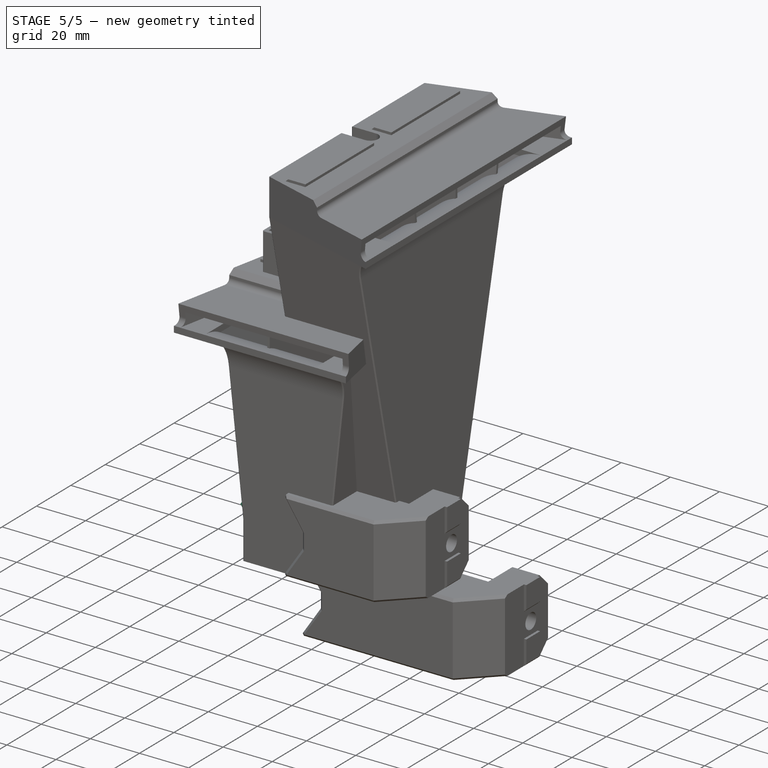
[diagram: stage 5 of 5 — iso view after this stage's code; geometry added in this stage tinted green]
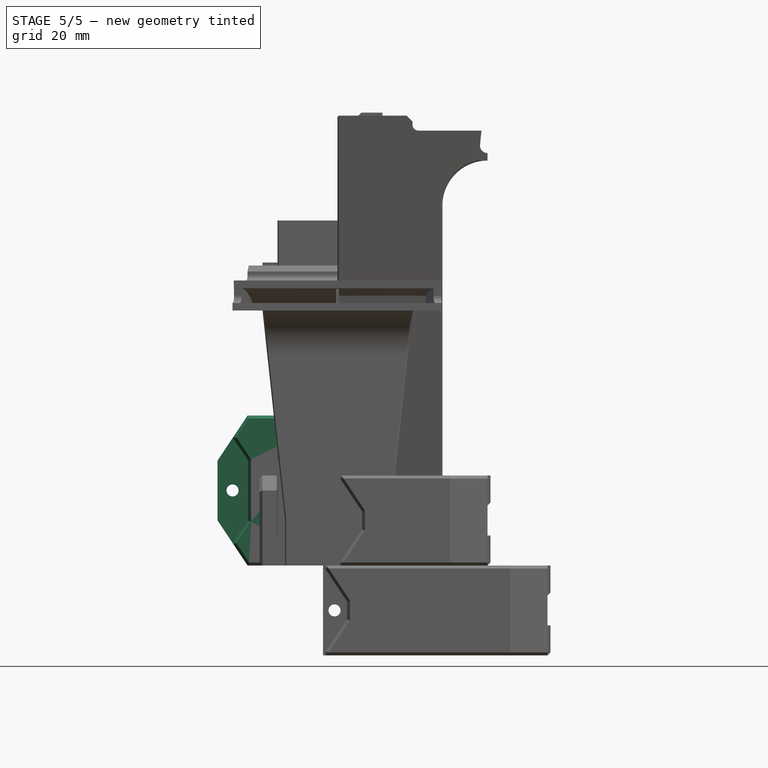
[diagram: stage 5 of 5 — front view after this stage's code; geometry added in this stage tinted green]
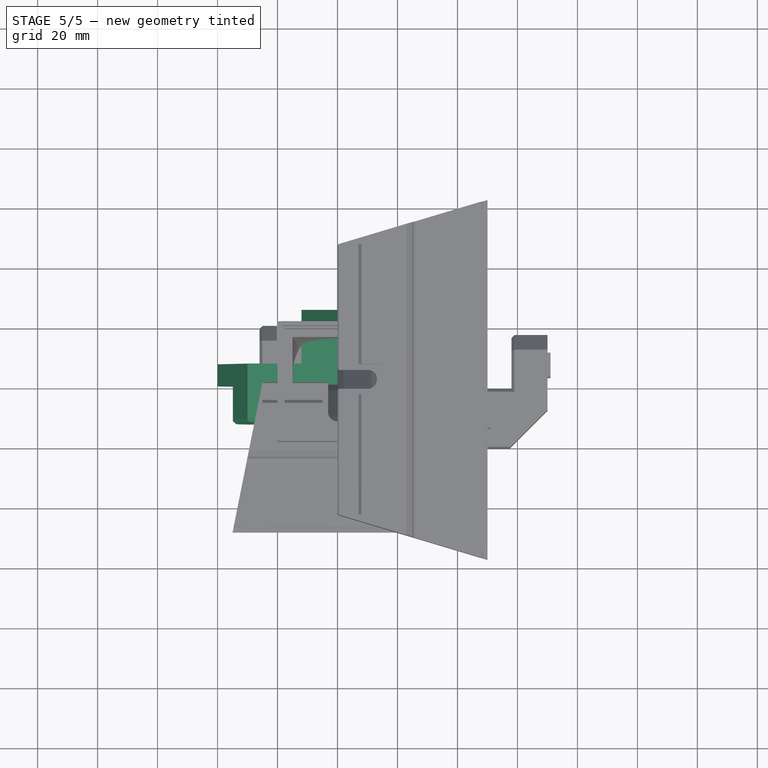
[diagram: stage 5 of 5 — top view after this stage's code; geometry added in this stage tinted green]
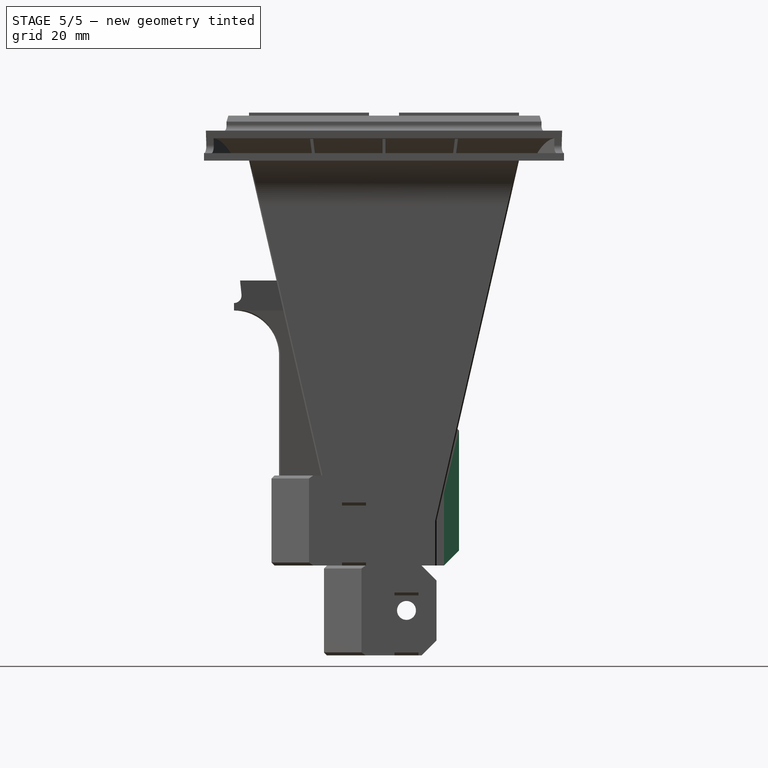
[diagram: stage 5 of 5 — right view after this stage's code; geometry added in this stage tinted green]
FEATURE [Sketcher::SketchObject] Sketch047
  FullyConstrained = true
  MapMode = 5
  Placement = pos=(0,0,0) rot=(1,0,0;1.5708rad)
  Support = -> [XZ_Plane004]
  sketch-geometry (7):
    g0: LineSegment StartX=0 StartY=0 StartZ=0 EndX=-30 EndY=0 EndZ=0
    g1: LineSegment StartX=-30 StartY=0 StartZ=0 EndX=-40 EndY=15 EndZ=0
    g2: LineSegment StartX=-40 StartY=15 StartZ=0 EndX=-40 EndY=35 EndZ=0
    g3: LineSegment StartX=-40 StartY=35 StartZ=0 EndX=-30 EndY=50 EndZ=0
    g4: LineSegment StartX=-30 StartY=50 StartZ=0 EndX=0 EndY=50 EndZ=0
    g5: LineSegment StartX=0 StartY=50 StartZ=0 EndX=0 EndY=0 EndZ=0
    g6: Circle CenterX=-35 CenterY=25 CenterZ=0 NormalX=0 NormalY=0 NormalZ=1 AngleXU=0 Radius=2
  constraints (20):
    c: Coincident(g-1,g0)
    c: Horizontal(g0)
    c: Coincident(g0,g1)
    c: Coincident(g1,g2)
    c: Vertical(g2)
    c: Coincident(g2,g3)
    c: Coincident(g3,g4)
    c: PointOnObject(g4,g-2)
    c: Coincident(g4,g5)
    c: Coincident(g5,g0)
    c: Horizontal(g4)
    c: DistanceX(g2,g4) = 40
    c: DistanceX(g2,g3) = 10
    c: DistanceY(g2,g3) = 15
    c: DistanceY(g0,g1) = 15
    c: Vertical(g3,g0)
    c: DistanceY(g5,g5) = 50
    c: DistanceY(g6,g2) = 10
    c: DistanceX(g2,g6) = 5
    c: Radius(g6) = 2
FEATURE [PartDesign::Pad] Pad012
  Direction = (1,1,1)
  Length = 25
  Length2 = 100
  Placement = pos=(0,0,0) rot=(1,0,0;1.5708rad)
  Profile = -> Sketch047
  Reversed = true
  Type = 0
FEATURE [Sketcher::SketchObject] Sketch048
  ExternalGeometry = -> [Pad012]
  FullyConstrained = true
  MapMode = 5
  Placement = pos=(0,0,0) rot=(0.707107,0,0.707107;3.14159rad)
  Support = -> [Pad012]
  sketch-geometry (1):
    g0: Circle CenterX=25 CenterY=-15 CenterZ=0 NormalX=0 NormalY=0 NormalZ=1 AngleXU=0 Radius=3.15
  constraints (3):
    c: Radius(g0) = 3.15
    c: DistanceX(g-1,g0) = 25
    c: DistanceY(g0,g-1) = 15
FEATURE [PartDesign::Pocket] Pocket030
  BaseFeature = -> Pad012
  Length = 5
  Length2 = 100
  Placement = pos=(0,0,0) rot=(1,0,0;1.5708rad)
  Profile = -> Sketch048
  Type = 1
FEATURE [Sketcher::SketchObject] Sketch049
  ExternalGeometry = -> [Pocket030]
  FullyConstrained = true
  MapMode = 5
  Placement = pos=(0,25,-5.5e-15) rot=(-1,0,0;1.5708rad)
  Support = -> [Pocket030]
  sketch-geometry (4):
    g0: LineSegment StartX=-12 StartY=0 StartZ=0 EndX=-40 EndY=0 EndZ=0
    g1: LineSegment StartX=-40 StartY=0 StartZ=0 EndX=-40 EndY=-50 EndZ=0
    g2: LineSegment StartX=-40 StartY=-50 StartZ=0 EndX=-12 EndY=-50 EndZ=0
    g3: LineSegment StartX=-12 StartY=-50 StartZ=0 EndX=-12 EndY=0 EndZ=0
  constraints (12):
    c: Coincident(g0,g1)
    c: Coincident(g1,g2)
    c: Coincident(g2,g3)
    c: Coincident(g3,g0)
    c: Horizontal(g0)
    c: Horizontal(g2)
    c: Vertical(g1)
    c: Vertical(g3)
    c: PointOnObject(g0,g-1)
    c: Horizontal(g2,g-3)
    c: Vertical(g-4,g1)
    c: DistanceX(g0,g-1) = 12
FEATURE [PartDesign::Pocket] Pocket031
  BaseFeature = -> Pocket030
  Length = 18
  Length2 = 100
  Placement = pos=(0,0,0) rot=(1,0,0;1.5708rad)
  Profile = -> Sketch049
  Type = 0
FEATURE [Sketcher::SketchObject] Sketch050
  ExternalGeometry = -> [Pocket031]
  FullyConstrained = true
  MapMode = 5
  Placement = pos=(0,0,0) rot=(1,0,0;1.5708rad)
  Support = -> [Pocket031]
  sketch-geometry (14):
    g0: LineSegment StartX=-40 StartY=50 StartZ=0 EndX=-30 EndY=35 EndZ=0
    g1: LineSegment StartX=-30 StartY=35 StartZ=0 EndX=-30 EndY=15 EndZ=0
    g2: LineSegment StartX=-30 StartY=15 StartZ=0 EndX=-40 EndY=0 EndZ=0
    g3: LineSegment StartX=-40 StartY=0 StartZ=0 EndX=-40 EndY=50 EndZ=0
    g4: LineSegment StartX=-34.8917 StartY=42.6625 StartZ=0 EndX=-29.85 EndY=35.1 EndZ=0
    g5: LineSegment StartX=-29.85 StartY=35.1 StartZ=0 EndX=-29.85 EndY=14.9 EndZ=0
    g6: LineSegment StartX=-29.85 StartY=14.9 StartZ=0 EndX=-34.8917 EndY=7.3375 EndZ=0
    g7: LineSegment StartX=-34.8917 StartY=7.3375 StartZ=0 EndX=-30 EndY=0 EndZ=0
    g8: LineSegment StartX=-30 StartY=0 StartZ=0 EndX=0 EndY=0 EndZ=0
    g9: LineSegment StartX=0 StartY=0 StartZ=0 EndX=0 EndY=50 EndZ=0
    g10: LineSegment StartX=0 StartY=50 StartZ=0 EndX=-30 EndY=50 EndZ=0
    g11: LineSegment StartX=-30 StartY=50 StartZ=0 EndX=-34.8917 EndY=42.6625 EndZ=0
    g12: LineSegment StartX=-30 StartY=35 StartZ=0 EndX=-29.85 EndY=35.1 EndZ=0
    g13: LineSegment StartX=-30 StartY=15 StartZ=0 EndX=-29.85 EndY=14.9 EndZ=0
  constraints (37):
    c: Coincident(g0,g1)
    c: Coincident(g1,g2)
    c: PointOnObject(g2,g-1)
    c: Coincident(g2,g3)
    c: Coincident(g3,g0)
    c: Vertical(g3)
    c: Horizontal(g0,g-3)
    c: Horizontal(g0,g-3)
    c: Horizontal(g-4,g1)
    c: Vertical(g1)
    c: DistanceX(g0,g-3) = 10
    c: DistanceX(g-3,g0) = 10
    c: PointOnObject(g4,g-3)
    c: Coincident(g4,g5)
    c: Vertical(g5)
    c: Coincident(g5,g6)
    c: PointOnObject(g6,g-4)
    c: Coincident(g6,g7)
    c: Coincident(g7,g-4)
    c: Coincident(g7,g8)
    c: Coincident(g8,g-1)
    c: Coincident(g8,g9)
    c: Vertical(g9)
    c: Coincident(g9,g10)
    c: Coincident(g10,g-3)
    c: Horizontal(g10)
    c: Coincident(g10,g11)
    c: Coincident(g11,g4)
    c: Parallel(g4,g0)
    c: Parallel(g6,g2)
    c: DistanceX(g0,g4) = 0.15
    c: Coincident(g12,g0)
    c: Coincident(g12,g4)
    c: Perpendicular(g4,g12)
    c: Coincident(g13,g1)
    c: Coincident(g13,g5)
    c: Perpendicular(g6,g13)
FEATURE [PartDesign::Pad] Pad013
  BaseFeature = -> Pocket031
  Direction = (1,1,1)
  Length = 12.5
  Length2 = 100
  Placement = pos=(0,0,0) rot=(1,0,0;1.5708rad)
  Profile = -> Sketch050
  Refine = true
  Type = 0
FEATURE [Sketcher::SketchObject] Sketch051
  ExternalGeometry = -> [Pad013]
  FullyConstrained = true
  MapMode = 5
  Placement = pos=(0,0,0) rot=(0.707107,0,0.707107;3.14159rad)
  Support = -> [Pad013]
  sketch-geometry (8):
    g0: LineSegment StartX=20 StartY=-11 StartZ=0 EndX=0 EndY=-11 EndZ=0
    g1: LineSegment StartX=0 StartY=-11 StartZ=0 EndX=0 EndY=-19 EndZ=0
    g2: LineSegment StartX=0 StartY=-19 StartZ=0 EndX=20 EndY=-19 EndZ=0
    g3: LineSegment StartX=20 StartY=-19 StartZ=0 EndX=20 EndY=-11 EndZ=0
    g4: LineSegment StartX=50 StartY=-11 StartZ=0 EndX=30 EndY=-11 EndZ=0
    g5: LineSegment StartX=30 StartY=-11 StartZ=0 EndX=30 EndY=-19 EndZ=0
    g6: LineSegment StartX=30 StartY=-19 StartZ=0 EndX=50 EndY=-19 EndZ=0
    g7: LineSegment StartX=50 StartY=-19 StartZ=0 EndX=50 EndY=-11 EndZ=0
  constraints (24):
    c: Coincident(g0,g1)
    c: Coincident(g1,g2)
    c: Coincident(g2,g3)
    c: Coincident(g3,g0)
    c: Horizontal(g0)
    c: Horizontal(g2)
    c: Vertical(g1)
    c: Vertical(g3)
    c: Coincident(g4,g5)
    c: Coincident(g5,g6)
    c: Coincident(g6,g7)
    c: Coincident(g7,g4)
    c: Horizontal(g4)
    c: Horizontal(g6)
    c: Vertical(g5)
    c: Vertical(g7)
    c: PointOnObject(g4,g-3)
    c: Horizontal(g0,g4)
    c: Horizontal(g2,g5)
    c: DistanceY(g3,g3) = 8
    c: DistanceY(g-4,g0) = 4
    c: DistanceX(g0,g-4) = 5
    c: DistanceX(g-4,g4) = 5
    c: Vertical(g0,g-1)
FEATURE [PartDesign::Pad] Pad014
  BaseFeature = -> Pad013
  Direction = (1,1,1)
  Length = 1
  Length2 = 100
  Placement = pos=(0,0,0) rot=(1,0,0;1.5708rad)
  Profile = -> Sketch051
  Type = 0
FEATURE [PartDesign::Chamfer] Chamfer009
  Angle = 45
  Base = -> Pad014 [Edge59,Edge67]
  BaseFeature = -> Pad014
  ChamferType = 0
  FlipDirection = false
  Placement = pos=(0,0,0) rot=(1,0,0;1.5708rad)
  Size = 0.99
  Size2 = 1
  SupportTransform = false
FEATURE [PartDesign::Chamfer] Chamfer010
  Angle = 45
  Base = -> Chamfer009 [Face13]
  BaseFeature = -> Chamfer009
  ChamferType = 0
  FlipDirection = false
  Placement = pos=(0,0,0) rot=(1,0,0;1.5708rad)
  Size = 1
  Size2 = 1
  SupportTransform = false
FEATURE [PartDesign::Chamfer] Chamfer011
  Angle = 45
  Base = -> Chamfer010 [Edge7,Edge38]
  BaseFeature = -> Chamfer010
  ChamferType = 0
  FlipDirection = false
  Placement = pos=(0,0,0) rot=(1,0,0;1.5708rad)
  Size = 5
  Size2 = 1
  SupportTransform = false
FEATURE [Sketcher::SketchObject] Sketch069
  FullyConstrained = true
  MapMode = 5
  Support = -> [XY_Plane006]
  sketch-geometry (4):
    g0: LineSegment StartX=-20 StartY=20 StartZ=0 EndX=20 EndY=20 EndZ=0
    g1: LineSegment StartX=20 StartY=20 StartZ=0 EndX=20 EndY=-20 EndZ=0
    g2: LineSegment StartX=20 StartY=-20 StartZ=0 EndX=-20 EndY=-20 EndZ=0
    g3: LineSegment StartX=-20 StartY=-20 StartZ=0 EndX=-20 EndY=20 EndZ=0
  constraints (12):
    c: Coincident(g0,g1)
    c: Coincident(g1,g2)
    c: Coincident(g2,g3)
    c: Coincident(g3,g0)
    c: Horizontal(g0)
    c: Horizontal(g2)
    c: Vertical(g1)
    c: Vertical(g3)
    c: DistanceX(g0,g0) = 40
    c: DistanceX(g0,g-1) = 20
    c: DistanceY(g1,g1) = 40
    c: DistanceY(g-1,g0) = 20
FEATURE [PartDesign::Pad] Pad021
  Direction = (1,1,1)
  Length = 65
  Length2 = 100
  Profile = -> Sketch069
  Type = 0
FEATURE [Sketcher::SketchObject] Sketch070
  FullyConstrained = true
  MapMode = 5
  Placement = pos=(0,0,65) rot=(0,0,1;0rad)
  Support = -> [Pad021]
  sketch-geometry (4):
    g0: LineSegment StartX=-17.65 StartY=17.65 StartZ=0 EndX=17.65 EndY=17.65 EndZ=0
    g1: LineSegment StartX=17.65 StartY=17.65 StartZ=0 EndX=17.65 EndY=-17.65 EndZ=0
    g2: LineSegment StartX=17.65 StartY=-17.65 StartZ=0 EndX=-17.65 EndY=-17.65 EndZ=0
    g3: LineSegment StartX=-17.65 StartY=-17.65 StartZ=0 EndX=-17.65 EndY=17.65 EndZ=0
  constraints (12):
    c: Coincident(g0,g1)
    c: Coincident(g1,g2)
    c: Coincident(g2,g3)
    c: Coincident(g3,g0)
    c: Horizontal(g0)
    c: Horizontal(g2)
    c: Vertical(g1)
    c: Vertical(g3)
    c: DistanceX(g0,g0) = 35.3
    c: DistanceX(g0,g-1) = 17.65
    c: DistanceY(g1,g1) = 35.3
    c: DistanceY(g-1,g0) = 17.65
FEATURE [PartDesign::Pocket] Pocket044
  BaseFeature = -> Pad021
  Length = 15
  Length2 = 100
  Profile = -> Sketch070
  Type = 0
FEATURE [Sketcher::SketchObject] Sketch071
  FullyConstrained = true
  MapMode = 5
  Placement = pos=(0,0,65) rot=(0,0,1;0rad)
  Support = -> [Pocket044]
  sketch-geometry (4):
    g0: LineSegment StartX=-18.5 StartY=18.5 StartZ=0 EndX=18.5 EndY=18.5 EndZ=0
    g1: LineSegment StartX=18.5 StartY=18.5 StartZ=0 EndX=18.5 EndY=-18.5 EndZ=0
    g2: LineSegment StartX=18.5 StartY=-18.5 StartZ=0 EndX=-18.5 EndY=-18.5 EndZ=0
    g3: LineSegment StartX=-18.5 StartY=-18.5 StartZ=0 EndX=-18.5 EndY=18.5 EndZ=0
  constraints (12):
    c: Coincident(g0,g1)
    c: Coincident(g1,g2)
    c: Coincident(g2,g3)
    c: Coincident(g3,g0)
    c: Horizontal(g0)
    c: Horizontal(g2)
    c: Vertical(g1)
    c: Vertical(g3)
    c: DistanceX(g0,g0) = 37
    c: DistanceX(g0,g-1) = 18.5
    c: DistanceY(g-1,g0) = 18.5
    c: DistanceY(g1,g1) = 37
FEATURE [PartDesign::Pocket] Pocket045
  BaseFeature = -> Pocket044
  Length = 6
  Length2 = 100
  Profile = -> Sketch071
  Type = 0
FEATURE [Sketcher::SketchObject] Sketch072
  FullyConstrained = true
  MapMode = 5
  Support = -> [XY_Plane006]
  sketch-geometry (1):
    g0: Circle CenterX=0 CenterY=0 CenterZ=0 NormalX=0 NormalY=0 NormalZ=1 AngleXU=0 Radius=16
  constraints (2):
    c: Coincident(g0,g-1)
    c: Radius(g0) = 16
FEATURE [Sketcher::SketchObject] Sketch073
  AttachmentOffset = pos=(0,0,50) rot=(0,0,1;0rad)
  FullyConstrained = true
  MapMode = 5
  Placement = pos=(0,0,50) rot=(0,0,1;0rad)
  Support = -> [XY_Plane006]
  sketch-geometry (4):
    g0: LineSegment StartX=-15 StartY=15 StartZ=0 EndX=15 EndY=15 EndZ=0
    g1: LineSegment StartX=15 StartY=15 StartZ=0 EndX=15 EndY=-15 EndZ=0
    g2: LineSegment StartX=15 StartY=-15 StartZ=0 EndX=-15 EndY=-15 EndZ=0
    g3: LineSegment StartX=-15 StartY=-15 StartZ=0 EndX=-15 EndY=15 EndZ=0
  constraints (12):
    c: Coincident(g0,g1)
    c: Coincident(g1,g2)
    c: Coincident(g2,g3)
    c: Coincident(g3,g0)
    c: Horizontal(g0)
    c: Horizontal(g2)
    c: Vertical(g1)
    c: Vertical(g3)
    c: DistanceX(g0,g0) = 30
    c: DistanceX(g0,g-1) = 15
    c: DistanceY(g-1,g0) = 15
    c: DistanceY(g1,g1) = 30
FEATURE [PartDesign::SubtractiveLoft] SubtractiveLoft001
  BaseFeature = -> Pocket045
  Closed = true
  Profile = -> Sketch073
  Ruled = true
  Sections = -> [Sketch072]
FEATURE [Sketcher::SketchObject] Sketch074
  ExternalGeometry = -> [SubtractiveLoft001]
  FullyConstrained = true
  MapMode = 5
  Placement = pos=(0,0,0) rot=(1,0,0;3.14159rad)
  Support = -> [SubtractiveLoft001]
  sketch-geometry (4):
    g0: Circle CenterX=-16 CenterY=16 CenterZ=0 NormalX=0 NormalY=0 NormalZ=1 AngleXU=0 Radius=1.65
    g1: Circle CenterX=16 CenterY=16 CenterZ=0 NormalX=0 NormalY=0 NormalZ=1 AngleXU=0 Radius=1.65
    g2: Circle CenterX=16 CenterY=-16 CenterZ=0 NormalX=0 NormalY=0 NormalZ=1 AngleXU=0 Radius=1.65
    g3: Circle CenterX=-16 CenterY=-16 CenterZ=0 NormalX=0 NormalY=0 NormalZ=1 AngleXU=0 Radius=1.65
  constraints (12):
    c: Horizontal(g3,g2)
    c: Horizontal(g0,g1)
    c: Vertical(g0,g3)
    c: Vertical(g1,g2)
    c: DistanceX(g0,g1) = 32
    c: DistanceX(g0,g-1) = 16
    c: DistanceY(g3,g0) = 32
    c: DistanceY(g3,g-1) = 16
    c: Equal(g0,g3)
    c: Equal(g3,g2)
    c: Equal(g2,g1)
    c: Radius(g1) = 1.65
FEATURE [PartDesign::Pocket] Pocket046
  BaseFeature = -> SubtractiveLoft001
  Length = 10
  Length2 = 100
  Profile = -> Sketch074
  Type = 0
FEATURE [Sketcher::SketchObject] Sketch075
  ExternalGeometry = -> [Pocket046]
  FullyConstrained = true
  MapMode = 5
  Placement = pos=(0,-20,0) rot=(1,0,0;1.5708rad)
  Support = -> [Pocket046]
  sketch-geometry (5):
    g0: LineSegment StartX=20 StartY=57.5 StartZ=0 EndX=20 EndY=7.5 EndZ=0
    g1: LineSegment StartX=20 StartY=7.5 StartZ=0 EndX=30 EndY=22.5 EndZ=0
    g2: LineSegment StartX=30 StartY=22.5 StartZ=0 EndX=30 EndY=42.5 EndZ=0
    g3: LineSegment StartX=30 StartY=42.5 StartZ=0 EndX=20 EndY=57.5 EndZ=0
    g4: Circle CenterX=25 CenterY=32.5 CenterZ=0 NormalX=0 NormalY=0 NormalZ=1 AngleXU=0 Radius=1.65
  constraints (15):
    c: PointOnObject(g0,g-3)
    c: PointOnObject(g0,g-3)
    c: Coincident(g0,g1)
    c: Coincident(g1,g2)
    c: Vertical(g2)
    c: Coincident(g2,g3)
    c: Coincident(g3,g0)
    c: DistanceY(g2,g0) = 15
    c: DistanceY(g0,g1) = 15
    c: DistanceX(g0,g2) = 10
    c: DistanceY(g4,g0) = 25
    c: DistanceX(g0,g4) = 5
    c: Radius(g4) = 1.65
    c: DistanceY(g-3,g0) = 7.5
    c: DistanceY(g0,g0) = 50
FEATURE [PartDesign::Pad] Pad022
  BaseFeature = -> Pocket046
  Direction = (1,1,1)
  Length = 12.5
  Length2 = 100
  Profile = -> Sketch075
  Reversed = true
  Type = 0
FEATURE [PartDesign::Plane] DatumPlane003
  AttachmentOffset = pos=(0,0,0) rot=(0,1,0;0.785398rad)
  Length = 90.5951
  MapMode = 5
  Placement = pos=(0,0,0) rot=(0.862856,0.357407,0.357407;1.71777rad)
  ResizeMode = 0
  Support = -> [XZ_Plane006]
  Width = 106.349
FEATURE [PartDesign::Plane] DatumPlane004
  AttachmentOffset = pos=(0,0,0) rot=(0,1,0;0.785398rad)
  Length = 90.5951
  MapMode = 5
  Placement = pos=(0,0,0) rot=(0.281085,0.678598,0.678598;2.59356rad)
  ResizeMode = 0
  Support = -> [YZ_Plane006]
  Width = 106.349
FEATURE [Sketcher::SketchObject] Sketch076
  ExternalGeometry = -> [Pad022]
  FullyConstrained = true
  MapMode = 5
  Placement = pos=(0,0,0) rot=(0.862856,0.357407,0.357407;1.71777rad)
  Support = -> [DatumPlane003]
  sketch-geometry (8):
    g0: LineSegment StartX=-28.2843 StartY=10 StartZ=0 EndX=-21.2843 EndY=20 EndZ=0
    g1: LineSegment StartX=-21.2843 StartY=20 StartZ=0 EndX=-23.2843 EndY=40 EndZ=0
    g2: LineSegment StartX=-23.2843 StartY=40 StartZ=0 EndX=-28.2843 EndY=55 EndZ=0
    g3: LineSegment StartX=-28.2843 StartY=55 StartZ=0 EndX=-28.2843 EndY=10 EndZ=0
    g4: LineSegment StartX=28.2843 StartY=55 StartZ=0 EndX=23.2843 EndY=40 EndZ=0
    g5: LineSegment StartX=23.2843 StartY=40 StartZ=0 EndX=21.2843 EndY=20 EndZ=0
    g6: LineSegment StartX=21.2843 StartY=20 StartZ=0 EndX=28.2843 EndY=10 EndZ=0
    g7: LineSegment StartX=28.2843 StartY=10 StartZ=0 EndX=28.2843 EndY=55 EndZ=0
  constraints (24):
    c: PointOnObject(g0,g-4)
    c: Coincident(g0,g1)
    c: Coincident(g1,g2)
    c: PointOnObject(g2,g-4)
    c: Coincident(g2,g3)
    c: Coincident(g3,g0)
    c: PointOnObject(g4,g-3)
    c: Coincident(g4,g5)
    c: Coincident(g5,g6)
    c: PointOnObject(g6,g-3)
    c: Coincident(g6,g7)
    c: Coincident(g7,g4)
    c: Horizontal(g6,g0)
    c: Horizontal(g0,g5)
    c: Horizontal(g1,g4)
    c: Horizontal(g4,g2)
    c: DistanceX(g0,g0) = 7
    c: DistanceX(g5,g6) = 7
    c: DistanceY(g0,g0) = 10
    c: DistanceY(g4,g4) = 15
    c: DistanceX(g4,g4) = 5
    c: DistanceY(g3,g3) = 45
    c: DistanceY(g-3,g6) = 10
    c: DistanceX(g2,g1) = 5
FEATURE [PartDesign::Pocket] Pocket047
  BaseFeature = -> Pad022
  Length = 5
  Length2 = 100
  Midplane = true
  Profile = -> Sketch076
  Type = 1
FEATURE [Sketcher::SketchObject] Sketch077
  ExternalGeometry = -> [Pocket047]
  FullyConstrained = true
  MapMode = 5
  Placement = pos=(0,0,0) rot=(0.281085,0.678598,0.678598;2.59356rad)
  Support = -> [DatumPlane004]
  sketch-geometry (4):
    g0: LineSegment StartX=28.2843 StartY=55 StartZ=0 EndX=23.2843 EndY=40 EndZ=0
    g1: LineSegment StartX=23.2843 StartY=40 StartZ=0 EndX=21.2843 EndY=20 EndZ=0
    g2: LineSegment StartX=21.2843 StartY=20 StartZ=0 EndX=28.2843 EndY=10 EndZ=0
    g3: LineSegment StartX=28.2843 StartY=10 StartZ=0 EndX=28.2843 EndY=55 EndZ=0
  constraints (12):
    c: PointOnObject(g0,g-3)
    c: Coincident(g0,g1)
    c: Coincident(g1,g2)
    c: PointOnObject(g2,g-3)
    c: Coincident(g2,g3)
    c: Coincident(g3,g0)
    c: Horizontal(g-4,g0)
    c: Horizontal(g-5,g0)
    c: Horizontal(g1,g-6)
    c: Horizontal(g-6,g2)
    c: DistanceX(g1,g-3) = 7
    c: DistanceX(g0,g0) = 5
FEATURE [PartDesign::Pocket] Pocket048
  BaseFeature = -> Pocket047
  Length = 5
  Length2 = 100
  Midplane = true
  Profile = -> Sketch077
  Refine = true
  Type = 1
FEATURE [PartDesign::Chamfer] Chamfer018
  Angle = 45
  Base = -> Pocket033 [Edge15,Edge13,Edge17,Edge16,Edge18,Edge1,Edge14,Edge25,Edge56,Edge66,Edge57,Edge58,Edge29,Edge59,Edge60,Edge65,Edge61,Edge33,Edge6,Edge35,Edge5,Edge4,Edge36,Edge37,Edge3,Edge2,Edge12,Edge11,Edge46,Edge47,Edge10,Edge9,Edge48,Edge8,Edge49,Edge50,Edge62,Edge63,Edge51,Edge52,+9 more]
  BaseFeature = -> Pocket033
  ChamferType = 0
  FlipDirection = false
  Size = 0.4
  Size2 = 1
  SupportTransform = false
FEATURE [PartDesign::Body] Body  label="4028-fan-mounter"
  Group = -> [Sketch,Pad,Sketch040,Pocket,Sketch041,Pocket027,Sketch042,Sketch043,SubtractiveLoft,Sketch044,Pocket028,Sketch045,Pad011,DatumPlane001,Sketch052,DatumPlane002,Sketch053,Pocket032,Pocket033,Chamfer018]
  Origin = -> Origin
  Placement = pos=(0,-17.5,-100) rot=(0,0,1;0rad)
  Tip = -> Chamfer018
FEATURE [PartDesign::Chamfer] Chamfer019
  Angle = 45
  Base = -> Pocket048 [Edge13,Edge1,Edge14,Edge15,Edge16,Edge24,Edge17,Edge18,Edge49,Edge45,Edge29,Edge77,Edge97,Edge95,Edge71,Edge25,Edge72,Edge74,Edge73,Edge75,Edge6,Edge2,Edge8,Edge12]
  BaseFeature = -> Pocket048
  ChamferType = 0
  FlipDirection = false
  Size = 0.4
  Size2 = 1
  SupportTransform = false
FEATURE [PartDesign::FeatureBase] Clone001
  BaseFeature = -> Pocket048
FEATURE [Sketcher::SketchObject] Sketch078
  ExternalGeometry = -> [Clone001]
  FullyConstrained = true
  MapMode = 5
  Placement = pos=(2e-15,-20,6e-16) rot=(1,0,0;1.5708rad)
  Support = -> [Clone001]
  sketch-geometry (8):
    g0: LineSegment StartX=20 StartY=57.5 StartZ=0 EndX=30 EndY=42.5 EndZ=0
    g1: LineSegment StartX=30 StartY=42.5 StartZ=0 EndX=30 EndY=22.5 EndZ=0
    g2: LineSegment StartX=30 StartY=22.5 StartZ=0 EndX=20 EndY=7.5 EndZ=0
    g3: LineSegment StartX=20 StartY=7.5 StartZ=0 EndX=20 EndY=17.5 EndZ=0
    g4: LineSegment StartX=20 StartY=17.5 StartZ=0 EndX=28 EndY=29.5 EndZ=0
    g5: LineSegment StartX=28 StartY=29.5 StartZ=0 EndX=28 EndY=35.5 EndZ=0
    g6: LineSegment StartX=28 StartY=35.5 StartZ=0 EndX=20 EndY=47.5 EndZ=0
    g7: LineSegment StartX=20 StartY=47.5 StartZ=0 EndX=20 EndY=57.5 EndZ=0
  constraints (20):
    c: Coincident(g-6,g0)
    c: Coincident(g0,g-6)
    c: Coincident(g0,g1)
    c: Coincident(g1,g-5)
    c: Coincident(g1,g2)
    c: Coincident(g2,g-4)
    c: Coincident(g2,g3)
    c: Coincident(g3,g4)
    c: Coincident(g4,g5)
    c: Vertical(g5)
    c: Coincident(g5,g6)
    c: Coincident(g6,g7)
    c: Coincident(g7,g0)
    c: Vertical(g7)
    c: Vertical(g3)
    c: Parallel(g6,g0)
    c: Parallel(g4,g2)
    c: DistanceX(g5,g0) = 2
    c: DistanceY(g7,g7) = 10
    c: DistanceY(g3,g3) = 10
FEATURE [PartDesign::Pocket] Pocket049
  BaseFeature = -> Clone001
  Length = 5
  Length2 = 100
  Profile = -> Sketch078
  Type = 1
FEATURE [PartDesign::Pocket] Pocket050
  BaseFeature = -> Pocket049
  Length = 5
  Length2 = 100
  Profile = -> Sketch078
  Type = 1
FEATURE [Sketcher::SketchObject] Sketch079
  ExternalGeometry = -> [Pocket050]
  FullyConstrained = true
  MapMode = 5
  Placement = pos=(2e-15,-20,6e-16) rot=(1,0,0;1.5708rad)
  Support = -> [Pocket050]
  sketch-geometry (1):
    g0: Circle CenterX=25 CenterY=32.5 CenterZ=0 NormalX=0 NormalY=0 NormalZ=1 AngleXU=0 Radius=2.65
  constraints (2):
    c: Coincident(g0,g-3)
    c: Radius(g0) = 2.65
FEATURE [PartDesign::Pad] Pad023
  BaseFeature = -> Pocket050
  Direction = (1,1,1)
  Length = 12.5
  Length2 = 100
  Profile = -> Sketch079
  Refine = true
  Reversed = true
  Type = 0
FEATURE [Sketcher::SketchObject] Sketch080
  ExternalGeometry = -> [Pad023]
  FullyConstrained = true
  MapMode = 5
  Placement = pos=(2e-15,-20,6e-16) rot=(1,0,0;1.5708rad)
  Support = -> [Pad023]
  sketch-geometry (1):
    g0: Circle CenterX=24 CenterY=32.5 CenterZ=0 NormalX=0 NormalY=0 NormalZ=1 AngleXU=0 Radius=1.65
  constraints (4):
    c: DistanceY(g-3,g-3) = 6
    c: DistanceY(g0,g-3) = 3
    c: DistanceX(g0,g-3) = 4
    c: Radius(g0) = 1.65
FEATURE [PartDesign::Pocket] Pocket051
  BaseFeature = -> Pad023
  Length = 5
  Length2 = 100
  Profile = -> Sketch080
  Type = 1
FEATURE [Sketcher::SketchObject] Sketch083
  ExternalGeometry = -> [Pad024]
  FullyConstrained = true
  MapMode = 5
  Placement = pos=(-1e-15,-20,-2e-16) rot=(1,0,0;1.5708rad)
  Support = -> [Pad024]
  sketch-geometry (2):
    g0: Circle CenterX=24 CenterY=85 CenterZ=0 NormalX=0 NormalY=0 NormalZ=1 AngleXU=0 Radius=1.65
    g1: Circle CenterX=24 CenterY=30 CenterZ=0 NormalX=0 NormalY=0 NormalZ=1 AngleXU=0 Radius=1.65
  constraints (6):
    c: DistanceY(g1,g-3) = 3
    c: DistanceY(g0,g-4) = 3
    c: Vertical(g0,g1)
    c: DistanceX(g1,g-3) = 4
    c: Equal(g1,g0)
    c: Radius(g0) = 1.65
FEATURE [PartDesign::Pocket] Pocket053
  BaseFeature = -> Pad024
  Length = 5
  Length2 = 100
  Profile = -> Sketch083
  Type = 1
FEATURE [PartDesign::Chamfer] Chamfer024
  Angle = 45
  Base = -> Pocket051 [Edge1,Edge13,Edge15,Edge14,Edge18,Edge24,Edge17,Edge16,Edge12,Edge49,Edge8,Edge45,Edge29,Edge56,Edge54,Edge52,Edge33,Edge58,Edge80,Edge79,Edge77,Edge81,Edge2,Edge6]
  BaseFeature = -> Pocket051
  ChamferType = 0
  FlipDirection = false
  Size = 0.4
  Size2 = 1
  SupportTransform = false
FEATURE [PartDesign::Body] Body008  label="4028-fan-mounter-shorter-st"
  BaseFeature = -> Pocket048
  Group = -> [Clone001,Sketch078,Pocket049,Pocket050,Sketch079,Pad023,Sketch080,Pocket051,Chamfer024]
  Origin = -> Origin008
  Tip = -> Chamfer024
FEATURE [PartDesign::Chamfer] Chamfer025
  Angle = 45
  Base = -> Pocket053 [Edge13,Edge1,Edge14,Edge15,Edge16,Edge18,Edge24,Edge17,Edge37,Edge56,Edge58,Edge60,Edge33,Edge62,Edge63,Edge64,Edge29,Edge65,Edge66,Edge93,Edge94,Edge95,Edge92,Edge87,Edge88,Edge86,Edge89,Edge2,Edge25,Edge3,Edge26,Edge4,Edge5,Edge27,Edge6,Edge12,Edge8,Edge48,Edge9,Edge11,+11 more]
  BaseFeature = -> Pocket053
  ChamferType = 0
  FlipDirection = false
  Size = 0.4
  Size2 = 1
  SupportTransform = false
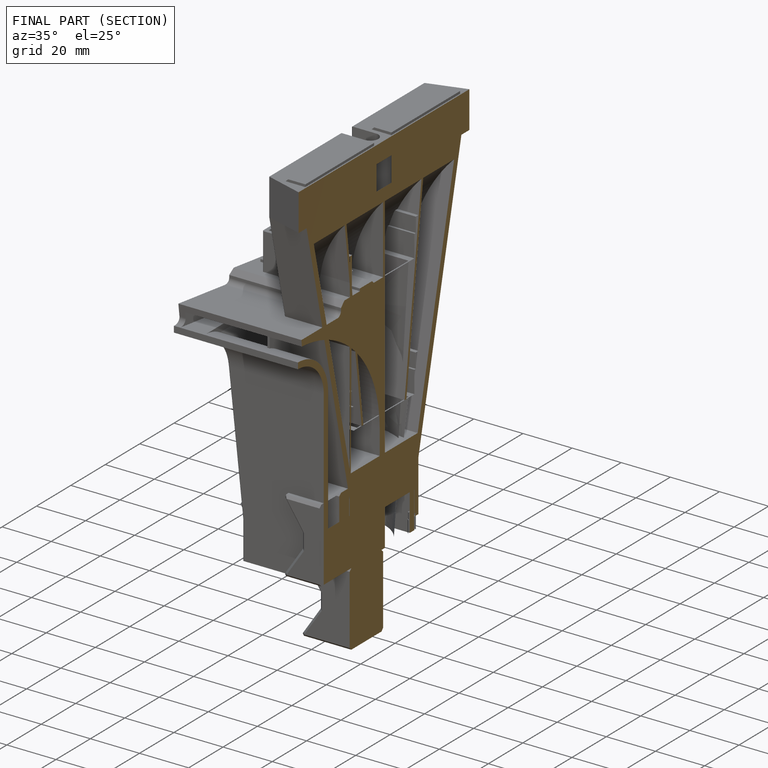
[diagram: finished part — half-section view (interior)]
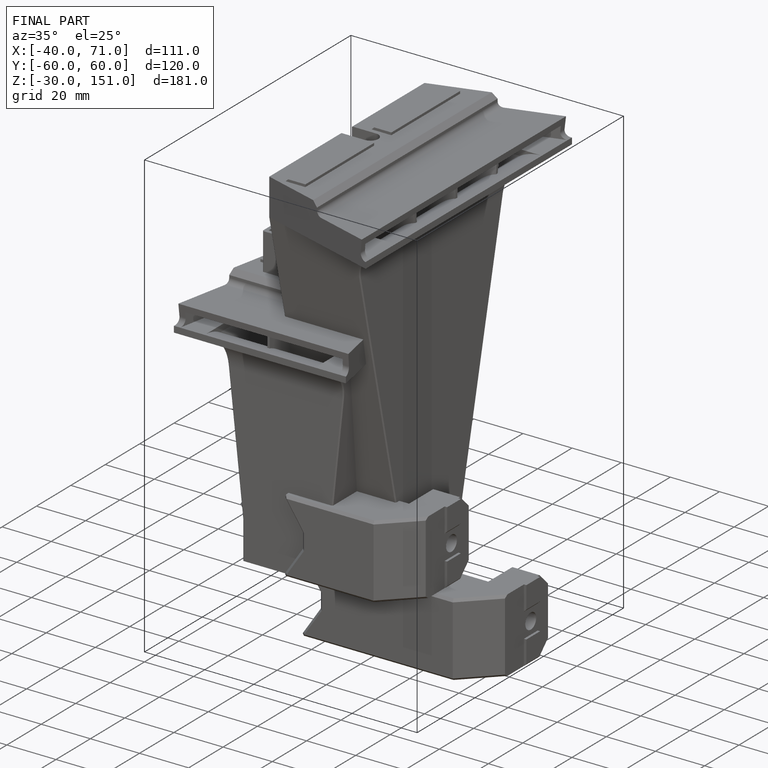
[diagram: finished part — iso view with bounding-box wireframe]
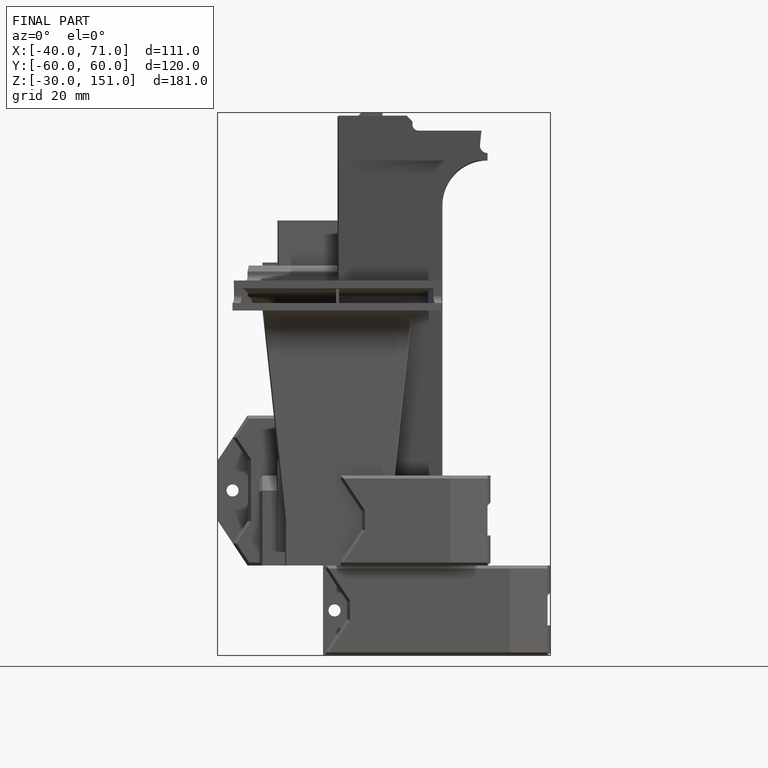
[diagram: finished part — front view with bounding-box wireframe]
